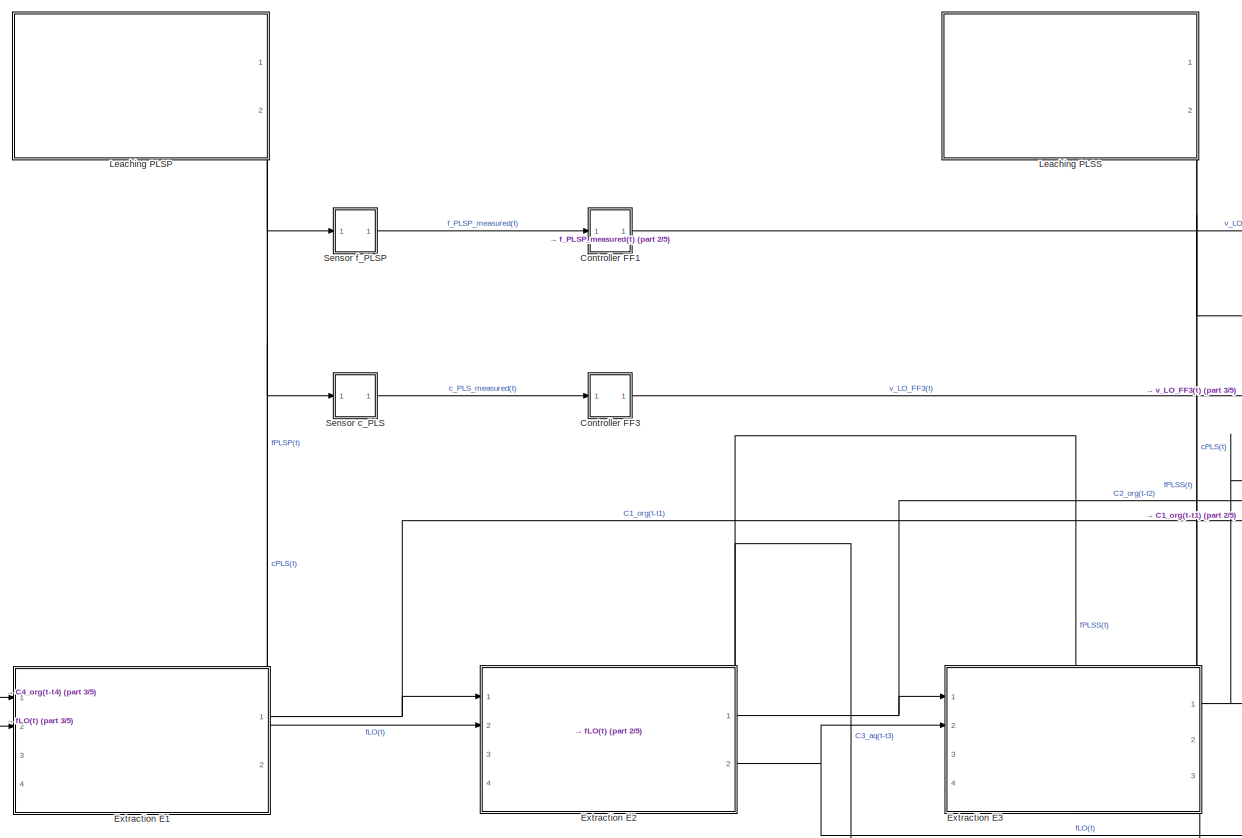
[diagram: root canvas - part 1/5, left side, full height]
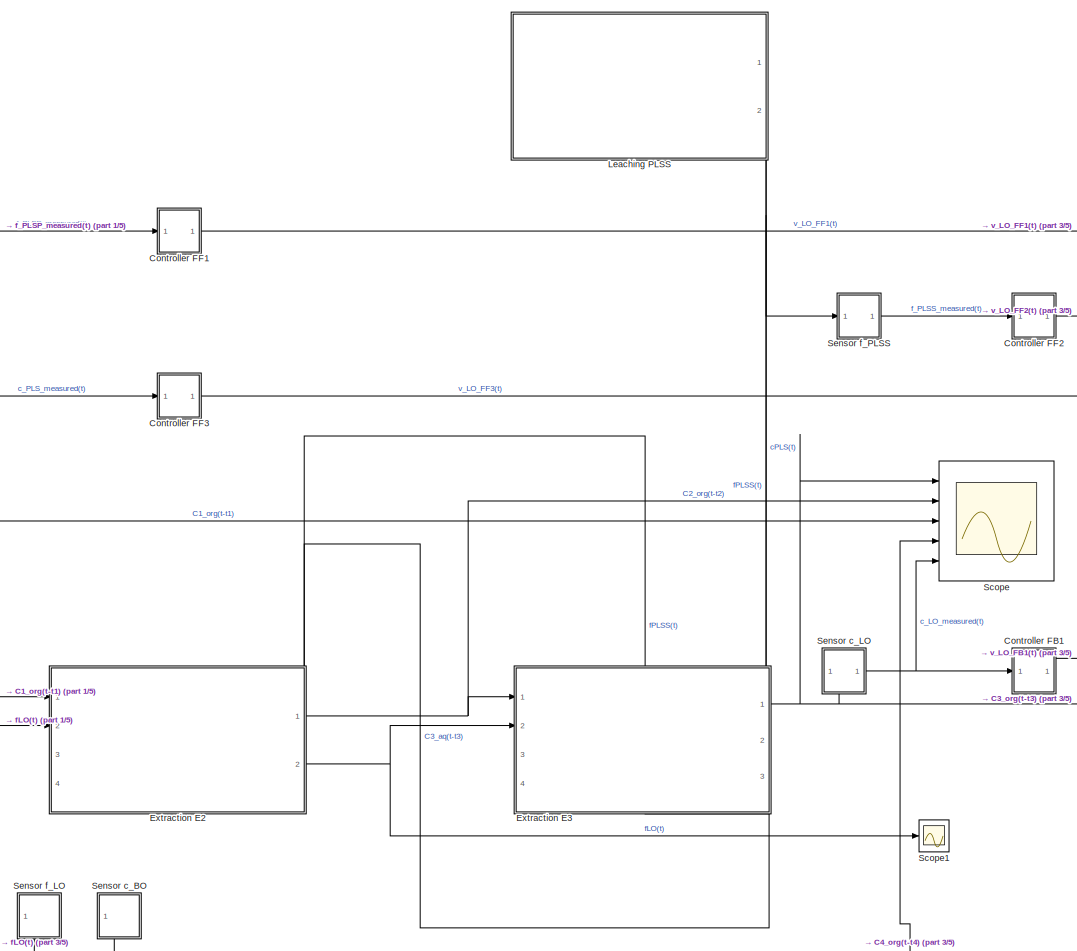
[diagram: root canvas - part 2/5, center side, full height]
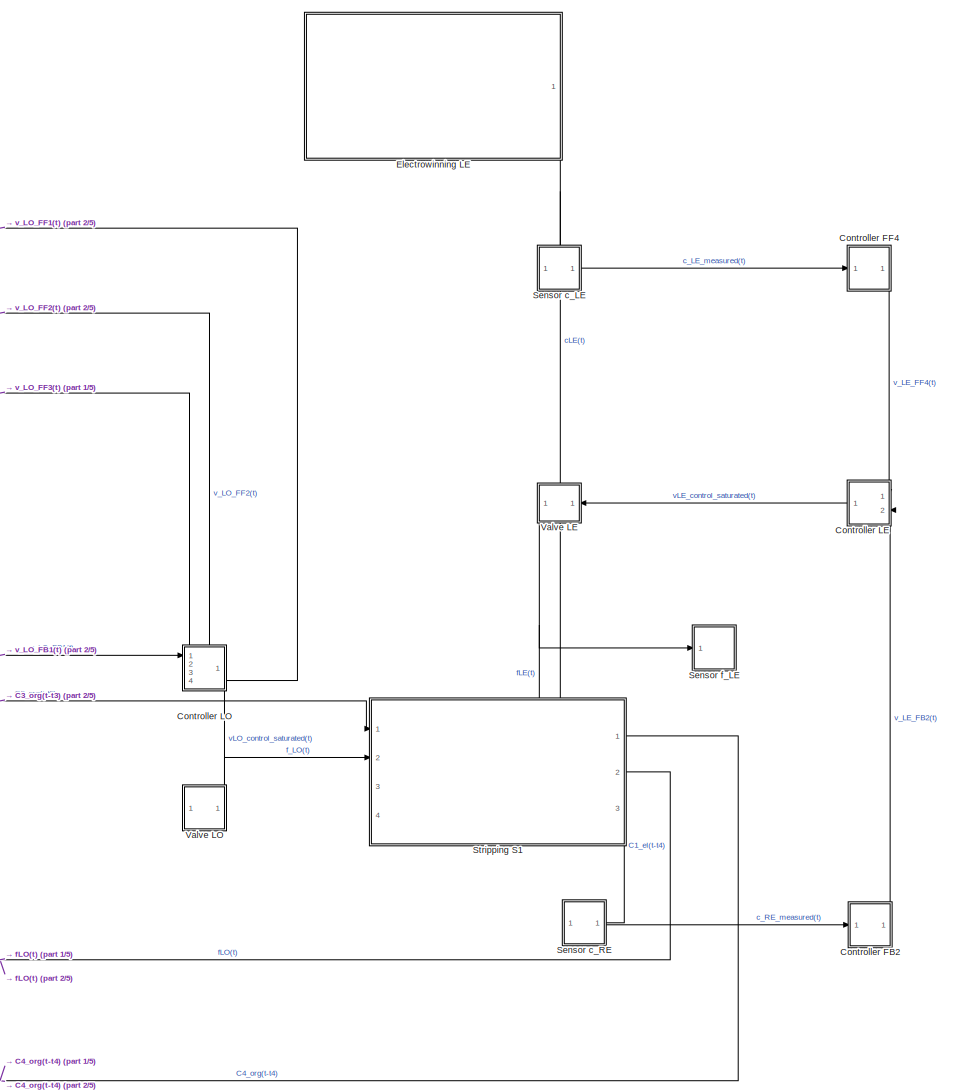
[diagram: root canvas - part 3/5, right side, full height]
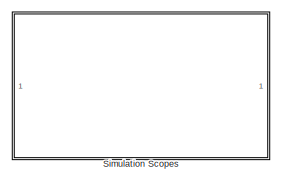
[diagram: root canvas - part 4/5, top right region]
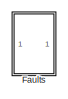
[diagram: root canvas - part 5/5, top left region]
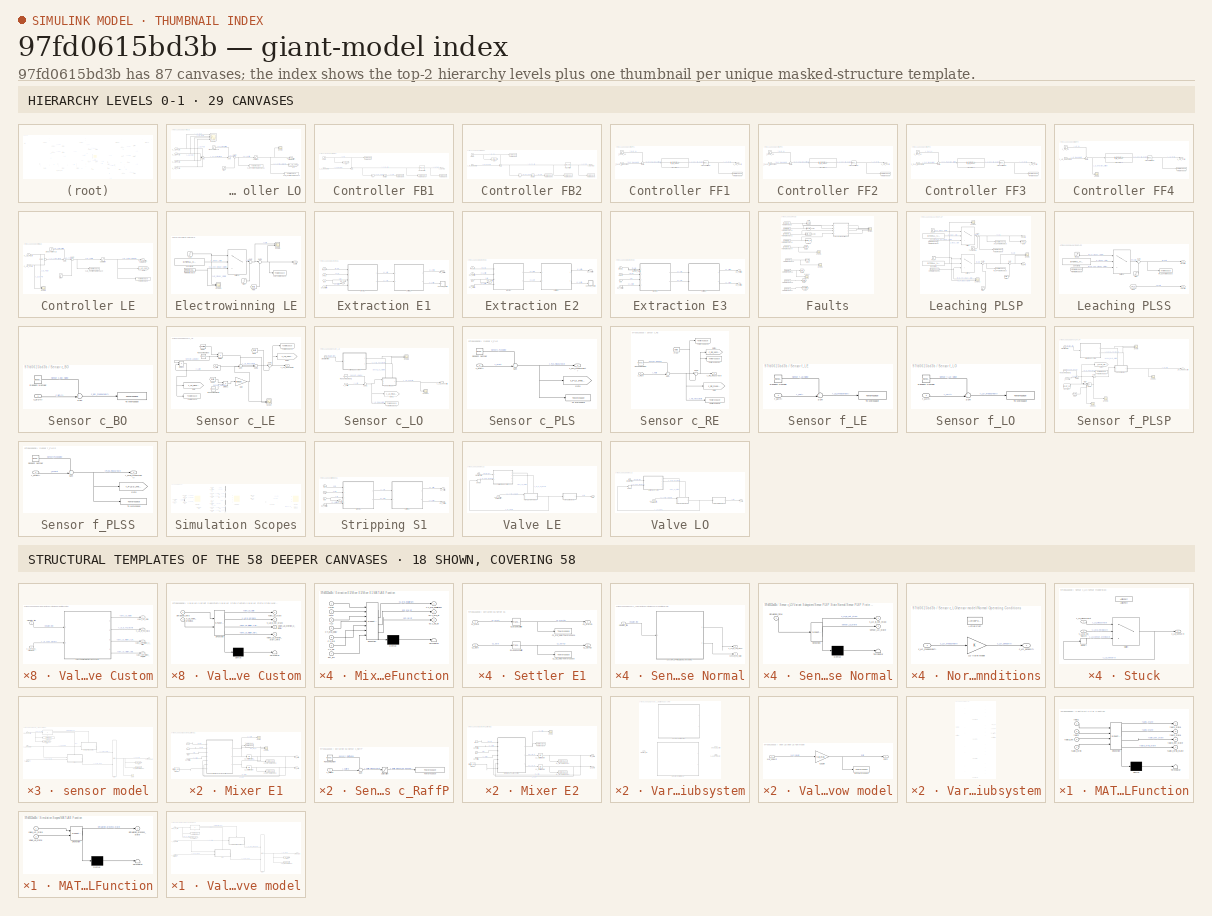
[diagram: thumbnail index - top-2 hierarchy levels (29 canvases) + 18 structural-template representatives of the remaining 58 canvases]
MODEL slx_97fd0615bd3b
KIND model
CONFIG AbsTol = auto
CONFIG EnableMultiTasking = off
CONFIG FixedStep = step_time
CONFIG MaxStep = auto
CONFIG MinStep = auto
CONFIG RelTol = 1e-3
CONFIG SampleTimeConstraint = Unconstrained
CONFIG SolverName = ode14x
CONFIG StartTime = 0.0
CONFIG StopTime = simulation_time
BLOCK [SubSystem]                            Controller LO
  PortSchema = {"entries":[{"content":{"sides":[{"content":{"connectorIds":["In1"]},"type":"ConnectorPlacement.EquallySpacedRectSide","uuid":"52743177-f082-4040-b095-38ff8f699919"},{"content":{"connectorIds":["In4"],"side":"RIGHT"},"type":"ConnectorPlacement.EquallySpacedRectSide","uuid":"070049ef-ea19-4899-84de-48e128addf57"},{"content":{"connectorIds":["In2","In3"],"side":"TOP"},"type":"ConnectorPlacement.Equa...<+400ch>
  Ports = [4, 1]
  RequestExecContextInheritance = off
BLOCK [Goto]                            Controller LO/Goto
  GotoTag = v_LO_control
  TagVisibility = global
BLOCK [Saturate]                            Controller LO/Saturation
  LowerLimit = 0
  UpperLimit = 1
BLOCK [Scope]                            Controller LO/Scope
  Floating = off
  NumInputPorts = 1
  Ports = [1]
  ScopeSpecificationString = Simulink.scopes.TimeScopeBlockCfg('CurrentConfiguration', extmgr.ConfigurationSet(extmgr.Configuration('Core','General UI',true),extmgr.Configuration('Core','Source UI',true),extmgr.Configuration('Sources','WiredSimulink',true,'DataLoggingVariableName','ScopeData5'),extmgr.Configuration('Visuals','Time Domain',true,'SerializedDisplays',{struct('MinYLimReal','0.29413','MaxYLimReal','1.07843','YLabe...<+1381ch>
BLOCK [Scope]                            Controller LO/Scope1
  Floating = off
  NumInputPorts = 4
  Ports = [4]
  ScopeSpecificationString = Simulink.scopes.TimeScopeBlockCfg('CurrentConfiguration', extmgr.ConfigurationSet(extmgr.Configuration('Core','General UI',true),extmgr.Configuration('Core','Source UI',true),extmgr.Configuration('Sources','WiredSimulink',true,'DataLoggingVariableName','ScopeData7'),extmgr.Configuration('Visuals','Time Domain',true,'SerializedDisplays',{struct('MinYLimReal','-0.23315','MaxYLimReal','0.30019','YLab...<+1463ch>
BLOCK [Step]                            Controller LO/Steady-state vLO
  After = vLO_ss
  Before = vLO_ss
  SampleTime = 0
  Time = 0
BLOCK [Step]                            Controller LO/Step
  After = 0
  SampleTime = 0
  Time = 7200
BLOCK [Sum]                            Controller LO/Sum
  Inputs = ++|
  Ports = [2, 1]
BLOCK [Sum]                            Controller LO/Sum1
  Inputs = ++++
  Ports = [4, 1]
BLOCK [Sum]                            Controller LO/Sum2
  Inputs = |++
  Ports = [2, 1]
BLOCK [ToWorkspace]                            Controller LO/vLO_control To Workspace
  FixptAsFi = on
  MaxDataPoints = inf
  Ports = [1]
  SampleTime = -1
  SaveFormat = Timeseries
  VariableName = vLO_control_saturated
BLOCK [ToWorkspace]                            Controller LO/vLO_control To Workspace1
  FixptAsFi = on
  MaxDataPoints = inf
  Ports = [1]
  SampleTime = -1
  SaveFormat = Timeseries
  VariableName = vLO_control
BLOCK [Outport]                            Controller LO/vLO_control_saturated(t)
BLOCK [Inport]                            Controller LO/v_LO_FB1(t)
BLOCK [Inport]                            Controller LO/v_LO_FF1(t)
  Port = 4
BLOCK [Inport]                            Controller LO/v_LO_FF2(t) 
  Port = 3
BLOCK [Inport]                            Controller LO/v_LO_FF3(t)
  Port = 2
BLOCK [SubSystem] Controller FB1
  Ports = [1, 1]
  RequestExecContextInheritance = off
BLOCK [Abs] Controller FB1/Abs
  SaturateOnIntegerOverflow = off
BLOCK [Reference] Controller FB1/FB1 PI Controller  REF=slpidlib/PID Controller
  Ports = [1, 1]
  SourceBlock = slpidlib/PID Controller
  SourceProductBaseCode = SL
  SourceType = PID 1dof
BLOCK [Goto] Controller FB1/Goto
  GotoTag = c_LO_SP
  TagVisibility = global
BLOCK [Integrator] Controller FB1/Integrator
  Ports = [1, 1]
BLOCK [Sum] Controller FB1/Sum
  Inputs = +-|
  Ports = [2, 1]
BLOCK [ToWorkspace] Controller FB1/To Workspace
  FixptAsFi = on
  MaxDataPoints = inf
  Ports = [1]
  SampleTime = -1
  SaveFormat = Timeseries
  VariableName = cLO_SP
BLOCK [ToWorkspace] Controller FB1/To Workspace1
  FixptAsFi = on
  MaxDataPoints = inf
  Ports = [1]
  SampleTime = -1
  SaveFormat = Timeseries
  VariableName = cLO_FB1_err
BLOCK [ToWorkspace] Controller FB1/To Workspace2
  FixptAsFi = on
  MaxDataPoints = inf
  Ports = [1]
  SampleTime = -1
  SaveFormat = Timeseries
  VariableName = vLO_FB1
BLOCK [ToWorkspace] Controller FB1/To Workspace3
  FixptAsFi = on
  MaxDataPoints = inf
  Ports = [1]
  SampleTime = -1
  SaveFormat = Timeseries
  VariableName = c_LO_IAE
BLOCK [Step] Controller FB1/cLO SP
  After = C3_org_ss
  Before = C3_org_ss
  SampleTime = 0
  Time = 0
BLOCK [Inport] Controller FB1/c_LO_measured(t)
BLOCK [Outport] Controller FB1/v_LO_FB1(t)
BLOCK [SubSystem] Controller FB2
  PortSchema = {"entries":[{"content":{"sides":[{"content":{"connectorIds":["In1"]},"type":"ConnectorPlacement.EquallySpacedRectSide","uuid":"549d450d-0da5-494d-9dce-c33c7378f634"},{"content":{"connectorIds":[],"side":"RIGHT"},"type":"ConnectorPlacement.EquallySpacedRectSide","uuid":"cc4f927b-a34a-449e-b64f-caed187c260d"},{"content":{"connectorIds":["Out1"],"side":"TOP"},"type":"ConnectorPlacement.EquallySpacedR...<+240ch>
  Ports = [1, 1]
  RequestExecContextInheritance = off
BLOCK [Abs] Controller FB2/Abs
  SaturateOnIntegerOverflow = off
BLOCK [Goto] Controller FB2/Goto
  GotoTag = c_RE_SP
  TagVisibility = global
BLOCK [Integrator] Controller FB2/Integrator
  Ports = [1, 1]
BLOCK [Reference] Controller FB2/PID Controller  REF=slpidlib/PID Controller
  Ports = [1, 1]
  SourceBlock = slpidlib/PID Controller
  SourceProductBaseCode = SL
  SourceType = PID 1dof
BLOCK [Sum] Controller FB2/Sum
  Inputs = +-|
  Ports = [2, 1]
BLOCK [ToWorkspace] Controller FB2/To Workspace
  FixptAsFi = on
  MaxDataPoints = inf
  Ports = [1]
  SampleTime = -1
  SaveFormat = Timeseries
  VariableName = cRE_SP
BLOCK [ToWorkspace] Controller FB2/To Workspace1
  FixptAsFi = on
  MaxDataPoints = inf
  Ports = [1]
  SampleTime = -1
  SaveFormat = Timeseries
  VariableName = cRE_FB2_err
BLOCK [ToWorkspace] Controller FB2/To Workspace2
  FixptAsFi = on
  MaxDataPoints = inf
  Ports = [1]
  SampleTime = -1
  SaveFormat = Timeseries
  VariableName = vLE_FB2
BLOCK [ToWorkspace] Controller FB2/To Workspace3
  FixptAsFi = on
  MaxDataPoints = inf
  Ports = [1]
  SampleTime = -1
  SaveFormat = Timeseries
  VariableName = c_RE_IAE
BLOCK [Step] Controller FB2/cRE SP
  After = C1_el_ss
  Before = C1_el_ss
  SampleTime = 0
  Time = 0
BLOCK [Inport] Controller FB2/c_RE_measured(t)
BLOCK [Outport] Controller FB2/v_LE_FB2(t)
BLOCK [SubSystem] Controller FF1
  Ports = [1, 1]
  RequestExecContextInheritance = off
BLOCK [Sum] Controller FF1/Sum
  Inputs = -+|
  Ports = [2, 1]
BLOCK [ToWorkspace] Controller FF1/To Workspace
  FixptAsFi = on
  MaxDataPoints = inf
  Ports = [1]
  SampleTime = -1
  SaveFormat = Timeseries
  VariableName = vLO_FF1
BLOCK [TransferFcn] Controller FF1/Transfer Fcn
  Denominator = [T_lg_FF1 1]
  Numerator = [K_ff_FF1*T_ld_FF1 K_ff_FF1*1]
BLOCK [TransportDelay] Controller FF1/Transport Delay
  DelayTime = theta_ff_FF1
  Ports = [1, 1]
BLOCK [Inport] Controller FF1/f_PLSP_measured(t)
BLOCK [Step] Controller FF1/f_PLSP_ss
  After = fPLSP_ss
  Before = fPLSP_ss
  SampleTime = 0
  Time = 0
BLOCK [Outport] Controller FF1/v_LO_FF1(t)
BLOCK [SubSystem] Controller FF2
  Ports = [1, 1]
  RequestExecContextInheritance = off
BLOCK [Sum] Controller FF2/Sum
  Inputs = -+|
  Ports = [2, 1]
BLOCK [ToWorkspace] Controller FF2/To Workspace
  FixptAsFi = on
  MaxDataPoints = inf
  Ports = [1]
  SampleTime = -1
  SaveFormat = Timeseries
  VariableName = vLO_FF2
BLOCK [TransferFcn] Controller FF2/Transfer Fcn
  Denominator = [T_lg_FF2 1]
  Numerator = [K_ff_FF2*T_ld_FF2 K_ff_FF2*1]
BLOCK [TransportDelay] Controller FF2/Transport Delay
  DelayTime = theta_ff_FF2
  Ports = [1, 1]
BLOCK [Inport] Controller FF2/f_PLSS_measured(t)
BLOCK [Step] Controller FF2/f_PLSS_ss
  After = fPLSS_ss
  Before = fPLSS_ss
  SampleTime = 0
  Time = 0
BLOCK [Outport] Controller FF2/v_LO_FF2(t)
BLOCK [SubSystem] Controller FF3
  Ports = [1, 1]
  RequestExecContextInheritance = off
BLOCK [Sum] Controller FF3/Sum
  Inputs = -+|
  Ports = [2, 1]
BLOCK [ToWorkspace] Controller FF3/To Workspace
  FixptAsFi = on
  MaxDataPoints = inf
  Ports = [1]
  SampleTime = -1
  SaveFormat = Timeseries
  VariableName = vLO_FF3
BLOCK [TransferFcn] Controller FF3/Transfer Fcn
  Denominator = [T_lg_FF3 1]
  Numerator = [K_ff_FF3*T_ld_FF3 K_ff_FF3*1]
BLOCK [TransportDelay] Controller FF3/Transport Delay
  DelayTime = theta_ff_FF3
  Ports = [1, 1]
BLOCK [Inport] Controller FF3/c_PLS_measured(t)
BLOCK [Step] Controller FF3/c_PLS_ss
  After = cPLS_ss
  Before = cPLS_ss
  SampleTime = 0
  Time = 0
BLOCK [Outport] Controller FF3/v_LO_FF3(t)
BLOCK [SubSystem] Controller FF4
  NameLocation = top
  PortSchema = {"entries":[{"content":{"sides":[{"content":{"connectorIds":["In1"]},"type":"ConnectorPlacement.EquallySpacedRectSide","uuid":"309a0a3d-e30b-4a77-b5d2-c4b50080f33a"},{"content":{"connectorIds":[],"side":"RIGHT"},"type":"ConnectorPlacement.EquallySpacedRectSide","uuid":"b344a8f7-ad8f-4273-abc7-1e7d20895348"},{"content":{"connectorIds":[],"side":"TOP"},"type":"ConnectorPlacement.EquallySpacedRectSid...<+384ch>
  Ports = [1, 1]
  RequestExecContextInheritance = off
BLOCK [Scope] Controller FF4/Scope
  Floating = off
  NumInputPorts = 1
  Ports = [1]
  ScopeSpecificationString = Simulink.scopes.TimeScopeBlockCfg('CurrentConfiguration', extmgr.ConfigurationSet(extmgr.Configuration('Core','General UI',true),extmgr.Configuration('Core','Source UI',true),extmgr.Configuration('Sources','WiredSimulink',true,'DataLoggingVariableName','ScopeData2'),extmgr.Configuration('Visuals','Time Domain',true,'SerializedDisplays',{struct('MinYLimReal','-0.10204','MaxYLimReal','1.05231','YLab...<+1381ch>
BLOCK [Sum] Controller FF4/Sum
  Inputs = -+|
  Ports = [2, 1]
BLOCK [ToWorkspace] Controller FF4/To Workspace
  FixptAsFi = on
  MaxDataPoints = inf
  Ports = [1]
  SampleTime = -1
  SaveFormat = Timeseries
  VariableName = vLE_FF4
BLOCK [TransferFcn] Controller FF4/Transfer Fcn
  Denominator = [T_lg_FF4 1]
  Numerator = [K_ff_FF4*T_ld_FF4 K_ff_FF4*1]
BLOCK [TransportDelay] Controller FF4/Transport Delay
  DelayTime = theta_ff_FF4
  Ports = [1, 1]
BLOCK [Inport] Controller FF4/c_LE_measured(t)
BLOCK [Step] Controller FF4/c_LE_ss
  After = cLE_ss
  Before = cLE_ss
  SampleTime = 0
  Time = 0
BLOCK [Outport] Controller FF4/v_LE_FF4(t)
BLOCK [SubSystem] Controller LE
  NameLocation = right
  PortSchema = {"entries":[{"content":{"sides":[{"content":{"connectorIds":[]},"type":"ConnectorPlacement.EquallySpacedRectSide","uuid":"549d450d-0da5-494d-9dce-c33c7378f634"},{"content":{"connectorIds":["Out1"],"side":"RIGHT"},"type":"ConnectorPlacement.EquallySpacedRectSide","uuid":"cc4f927b-a34a-449e-b64f-caed187c260d"},{"content":{"connectorIds":["In1"],"side":"TOP"},"type":"ConnectorPlacement.EquallySpacedR...<+389ch>
  Ports = [2, 1]
  RequestExecContextInheritance = off
BLOCK [Goto] Controller LE/Goto
  GotoTag = v_LE_control
  TagVisibility = global
BLOCK [Saturate] Controller LE/Saturation
  LowerLimit = 0
  UpperLimit = 1
BLOCK [Scope] Controller LE/Scope
  Floating = off
  NumInputPorts = 2
  Ports = [2]
  ScopeSpecificationString = Simulink.scopes.TimeScopeBlockCfg('CurrentConfiguration', extmgr.ConfigurationSet(extmgr.Configuration('Core','General UI',true),extmgr.Configuration('Core','Source UI',true),extmgr.Configuration('Sources','WiredSimulink',true,'DataLoggingVariableName','ScopeData1'),extmgr.Configuration('Visuals','Time Domain',true,'SerializedDisplays',{struct('MinYLimReal','-0.12376','MaxYLimReal','0.16775','YLab...<+1432ch>
BLOCK [Step] Controller LE/Steady-state vLE
  After = vLE_ss
  Before = vLE_ss
  SampleTime = 0
  Time = 0
BLOCK [Step] Controller LE/Step
  After = 0
  SampleTime = 0
  Time = 7200
BLOCK [Sum] Controller LE/Sum
  Inputs = ++|
  Ports = [2, 1]
BLOCK [Sum] Controller LE/Sum1
  Inputs = +|+
  Ports = [2, 1]
BLOCK [Sum] Controller LE/Sum2
  Inputs = |++
  Ports = [2, 1]
BLOCK [ToWorkspace] Controller LE/To Workspace
  FixptAsFi = on
  MaxDataPoints = inf
  Ports = [1]
  SampleTime = -1
  SaveFormat = Timeseries
  VariableName = vLE_control_saturated
BLOCK [ToWorkspace] Controller LE/vLE_control To Workspace
  FixptAsFi = on
  MaxDataPoints = inf
  Ports = [1]
  SampleTime = -1
  SaveFormat = Timeseries
  VariableName = vLE_control
BLOCK [Outport] Controller LE/vLE_control_saturated(t)
BLOCK [Inport] Controller LE/v_LE_FB2(t)
  Port = 2
BLOCK [Inport] Controller LE/v_LE_FF4(t)
BLOCK [SubSystem] Electrowinning LE
  NameLocation = top
  PortSchema = {"entries":[{"content":{"sides":[{"content":{"connectorIds":[]},"type":"ConnectorPlacement.EquallySpacedRectSide","uuid":"d08e9f48-9437-4d33-afd1-67836a5fb6bd"},{"content":{"connectorIds":[],"side":"RIGHT"},"type":"ConnectorPlacement.EquallySpacedRectSide","uuid":"a0c0d898-7ac9-474d-9070-540f9b51cc10"},{"content":{"connectorIds":[],"side":"TOP"},"type":"ConnectorPlacement.EquallySpacedRectSide","u...<+379ch>
  Ports = [0, 1]
  RequestExecContextInheritance = off
BLOCK [Constant] Electrowinning LE/Constant1
  Value = EXTERNAL_VARIABLES_STEADY_STATE
BLOCK [From] Electrowinning LE/From
  GotoTag = fault1
  TagVisibility = global
BLOCK [FromWorkspace] Electrowinning LE/From Workspace
  VariableName = c_LE_timeseries
BLOCK [Scope] Electrowinning LE/Scope
  Floating = off
  NumInputPorts = 2
  Ports = [2]
  ScopeSpecificationString = Simulink.scopes.TimeScopeBlockCfg('CurrentConfiguration', extmgr.ConfigurationSet(extmgr.Configuration('Core','General UI',true),extmgr.Configuration('Core','Source UI',true),extmgr.Configuration('Sources','WiredSimulink',true,'DataLoggingVariableName','ScopeData1'),extmgr.Configuration('Visuals','Time Domain',true,'SerializedDisplays',{struct('MinYLimReal','34.88661','MaxYLimReal','37.01458','YLa...<+1409ch>
BLOCK [Scope] Electrowinning LE/Scope1
  Floating = off
  NumInputPorts = 2
  Ports = [2]
  ScopeSpecificationString = Simulink.scopes.TimeScopeBlockCfg('CurrentConfiguration', extmgr.ConfigurationSet(extmgr.Configuration('Core','General UI',true),extmgr.Configuration('Core','Source UI',true),extmgr.Configuration('Sources','WiredSimulink',true,'DataLoggingVariableName','ScopeData5'),extmgr.Configuration('Visuals','Time Domain',true,'SerializedDisplays',{struct('MinYLimReal','34.95771','MaxYLimReal','35.3806','YLab...<+1406ch>
BLOCK [Step] Electrowinning LE/Step
  After = 0
  SampleTime = 0
  Time = 7200
BLOCK [Sum] Electrowinning LE/Sum
  Inputs = |++
  Ports = [2, 1]
BLOCK [Sum] Electrowinning LE/Sum1
  Inputs = |++
  Ports = [2, 1]
BLOCK [Switch] Electrowinning LE/Switch1
  Criteria = u2 ~= 0
  InputSameDT = off
  SaturateOnIntegerOverflow = off
BLOCK [Step] Electrowinning LE/cLE
  After = cLE_ss
  Before = cLE_ss
  SampleTime = 0
  Time = 0
BLOCK [ToWorkspace] Electrowinning LE/cLE To Workspace
  FixptAsFi = on
  MaxDataPoints = inf
  Ports = [1]
  SampleTime = -1
  SaveFormat = Timeseries
  VariableName = cLE
BLOCK [Outport] Electrowinning LE/cLE(t)
BLOCK [SubSystem] Extraction E1
  PortSchema = {"entries":[{"content":{"sides":[{"content":{"connectorIds":["In1","In2"]},"type":"ConnectorPlacement.EquallySpacedRectSide","uuid":"f32559ae-5e45-417b-8c50-adbeea9a29f4"},{"content":{"connectorIds":["Out1","Out2"],"side":"RIGHT"},"type":"ConnectorPlacement.EquallySpacedRectSide","uuid":"22bc39ae-803b-4947-b021-a54bd767cf3b"},{"content":{"connectorIds":["In3","In4"],"side":"TOP"},"type":"Connector...<+264ch>
  Ports = [4, 2]
  RequestExecContextInheritance = off
BLOCK [Outport] Extraction E1/C1_org(t-t1)
BLOCK [Inport] Extraction E1/C4_org(t-t4)
BLOCK [SubSystem] Extraction E1/Mixer E1
  Ports = [4, 2]
  RequestExecContextInheritance = off
BLOCK [ToWorkspace] Extraction E1/Mixer E1/C1_aq To Workspace
  FixptAsFi = on
  MaxDataPoints = inf
  Ports = [1]
  SampleTime = -1
  SaveFormat = Timeseries
  VariableName = C1_aq
BLOCK [Outport] Extraction E1/Mixer E1/C1_aq(t)
  Port = 2
BLOCK [Integrator] Extraction E1/Mixer E1/C1_aq(t) Integrater
  InitialCondition = C1_aq_ss
  Ports = [1, 1]
BLOCK [ToWorkspace] Extraction E1/Mixer E1/C1_org To Workspace
  FixptAsFi = on
  MaxDataPoints = inf
  Ports = [1]
  SampleTime = -1
  SaveFormat = Timeseries
  VariableName = C1_org
BLOCK [Outport] Extraction E1/Mixer E1/C1_org(t)
BLOCK [Integrator] Extraction E1/Mixer E1/C1_org(t) Integrater
  InitialCondition = C1_org_ss
  Ports = [1, 1]
BLOCK [Inport] Extraction E1/Mixer E1/C4_org(t-t4)
  Port = 4
BLOCK [From] Extraction E1/Mixer E1/From
  GotoTag = fault3_ext
  TagVisibility = global
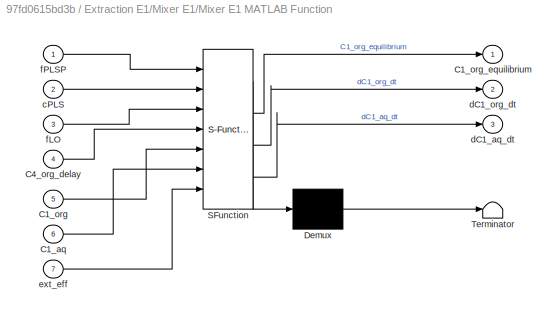
BLOCK [SubSystem] Extraction E1/Mixer E1/Mixer E1 MATLAB Function
  ErrorFcn = Stateflow.Translate.translate
  PermitHierarchicalResolution = ExplicitOnly
  Ports = [7, 3]
  RequestExecContextInheritance = off
  SFBlockType = MATLAB Function
  TreatAsAtomicUnit = on
BLOCK [Demux] Extraction E1/Mixer E1/Mixer E1 MATLAB Function/ Demux 
  Outputs = 1
  Ports = [1, 1]
BLOCK [S-Function] Extraction E1/Mixer E1/Mixer E1 MATLAB Function/ SFunction 
  EnableBusSupport = on
  FunctionName = sf_sfun
  Parameters = C_org_max,K_eq_ext,K_mass_1,V1
  PortCounts = [7 4]
  Ports = [7, 4]
  SFcnIsStateOwnerBlock = off
  SFunctionDeploymentMode = off
  Tag = Stateflow S-Function 5
BLOCK [Terminator] Extraction E1/Mixer E1/Mixer E1 MATLAB Function/ Terminator 
BLOCK [Inport] Extraction E1/Mixer E1/Mixer E1 MATLAB Function/C1_aq
  Port = 6
BLOCK [Inport] Extraction E1/Mixer E1/Mixer E1 MATLAB Function/C1_org
  Port = 5
BLOCK [Outport] Extraction E1/Mixer E1/Mixer E1 MATLAB Function/C1_org_equilibrium
BLOCK [Inport] Extraction E1/Mixer E1/Mixer E1 MATLAB Function/C4_org_delay
  Port = 4
BLOCK [Inport] Extraction E1/Mixer E1/Mixer E1 MATLAB Function/cPLS
  Port = 2
BLOCK [Outport] Extraction E1/Mixer E1/Mixer E1 MATLAB Function/dC1_aq_dt
  Port = 3
BLOCK [Outport] Extraction E1/Mixer E1/Mixer E1 MATLAB Function/dC1_org_dt
  Port = 2
BLOCK [Inport] Extraction E1/Mixer E1/Mixer E1 MATLAB Function/ext_eff
  Port = 7
BLOCK [Inport] Extraction E1/Mixer E1/Mixer E1 MATLAB Function/fLO
  Port = 3
BLOCK [Inport] Extraction E1/Mixer E1/Mixer E1 MATLAB Function/fPLSP
BLOCK [Scope] Extraction E1/Mixer E1/Scope
  Floating = off
  NumInputPorts = 1
  Ports = [1]
  ScopeSpecificationString = Simulink.scopes.TimeScopeBlockCfg('CurrentConfiguration', extmgr.ConfigurationSet(extmgr.Configuration('Core','General UI',true),extmgr.Configuration('Core','Source UI',true),extmgr.Configuration('Sources','WiredSimulink',true,'DataLoggingVariableName','ScopeData4'),extmgr.Configuration('Visuals','Time Domain',true,'SerializedDisplays',{struct('MinYLimReal','6.07777','MaxYLimReal','18.90279','YLab...<+1371ch>
BLOCK [Scope] Extraction E1/Mixer E1/Scope1
  Floating = off
  NumInputPorts = 2
  Ports = [2]
  ScopeSpecificationString = Simulink.scopes.TimeScopeBlockCfg('CurrentConfiguration', extmgr.ConfigurationSet(extmgr.Configuration('Core','General UI',true),extmgr.Configuration('Core','Source UI',true),extmgr.Configuration('Sources','WiredSimulink',true,'DataLoggingVariableName','ScopeData10'),extmgr.Configuration('Visuals','Time Domain',true,'SerializedDisplays',{struct('MinYLimReal','-0.00183','MaxYLimReal','0.01359','YLa...<+1407ch>
BLOCK [ToWorkspace] Extraction E1/Mixer E1/To Workspace
  FixptAsFi = on
  MaxDataPoints = inf
  Ports = [1]
  SampleTime = -1
  SaveFormat = Timeseries
  VariableName = C1_org_eq
BLOCK [Inport] Extraction E1/Mixer E1/cPLS
  Port = 2
BLOCK [Inport] Extraction E1/Mixer E1/fLO
  Port = 3
BLOCK [Inport] Extraction E1/Mixer E1/fPLSP
BLOCK [SubSystem] Extraction E1/Sensor c_RaffP
  Ports = [1]
  RequestExecContextInheritance = off
BLOCK [RandomNumber] Extraction E1/Sensor c_RaffP/Random Number
  SampleTime = step_time
  Seed = seed_c_RaffP
  Variance = sigma_c_RaffP^2
BLOCK [Saturate] Extraction E1/Sensor c_RaffP/Saturation
  LowerLimit = 0
  UpperLimit = inf
BLOCK [Sum] Extraction E1/Sensor c_RaffP/Sum
  Inputs = ++|
  Ports = [2, 1]
BLOCK [ToWorkspace] Extraction E1/Sensor c_RaffP/To Workspace
  FixptAsFi = on
  MaxDataPoints = inf
  Ports = [1]
  SampleTime = -1
  SaveFormat = Timeseries
  VariableName = c_RaffP_measured
BLOCK [Inport] Extraction E1/Sensor c_RaffP/c_RaffP(t)
BLOCK [SubSystem] Extraction E1/Settler E1
  Ports = [2, 2]
  RequestExecContextInheritance = off
BLOCK [Inport] Extraction E1/Settler E1/C1_aq(t)
  Port = 2
BLOCK [Outport] Extraction E1/Settler E1/C1_aq(t-t1)
  Port = 2
BLOCK [ToWorkspace] Extraction E1/Settler E1/C1_aq_delay To Workspace
  FixptAsFi = on
  MaxDataPoints = inf
  Ports = [1]
  SampleTime = -1
  SaveFormat = Timeseries
  VariableName = C1_aq_delay
BLOCK [Inport] Extraction E1/Settler E1/C1_org(t)
BLOCK [Outport] Extraction E1/Settler E1/C1_org(t-t1)
BLOCK [ToWorkspace] Extraction E1/Settler E1/C1_org_delay To Workspace
  FixptAsFi = on
  MaxDataPoints = inf
  Ports = [1]
  SampleTime = -1
  SaveFormat = Timeseries
  VariableName = C1_org_delay
BLOCK [TransportDelay] Extraction E1/Settler E1/E1 Aqueous Settler
  DelayTime = t1
  InitialOutput = C1_aq_ss
  Ports = [1, 1]
BLOCK [TransportDelay] Extraction E1/Settler E1/E1 Organic Settler
  DelayTime = t1
  InitialOutput = C1_org_ss
  Ports = [1, 1]
BLOCK [Inport] Extraction E1/cPLS
  Port = 4
BLOCK [Inport] Extraction E1/fLO
  Port = 2
BLOCK [Outport] Extraction E1/fLO_out(t)
  Port = 2
BLOCK [Inport] Extraction E1/fPLSP
  Port = 3
BLOCK [SubSystem] Extraction E2
  PortSchema = {"entries":[{"content":{"sides":[{"content":{"connectorIds":["In1","In2"]},"type":"ConnectorPlacement.EquallySpacedRectSide","uuid":"f32559ae-5e45-417b-8c50-adbeea9a29f4"},{"content":{"connectorIds":["Out1","Out2"],"side":"RIGHT"},"type":"ConnectorPlacement.EquallySpacedRectSide","uuid":"22bc39ae-803b-4947-b021-a54bd767cf3b"},{"content":{"connectorIds":["In3","In4"],"side":"TOP"},"type":"Connector...<+264ch>
  Ports = [4, 2]
  RequestExecContextInheritance = off
BLOCK [Inport] Extraction E2/C1_org(t-t1)
BLOCK [Outport] Extraction E2/C2_org(t-t2)
BLOCK [Inport] Extraction E2/C3_aq(t-t3)
  Port = 4
BLOCK [SubSystem] Extraction E2/Mixer E2
  Ports = [4, 2]
  RequestExecContextInheritance = off
BLOCK [Inport] Extraction E2/Mixer E2/C1_org(t-t1)
  Port = 4
BLOCK [ToWorkspace] Extraction E2/Mixer E2/C2_aq To Workspace
  FixptAsFi = on
  MaxDataPoints = inf
  Ports = [1]
  SampleTime = -1
  SaveFormat = Timeseries
  VariableName = C2_aq
BLOCK [Outport] Extraction E2/Mixer E2/C2_aq(t)
  Port = 2
BLOCK [Integrator] Extraction E2/Mixer E2/C2_aq(t) Integrater
  InitialCondition = C2_aq_ss
  Ports = [1, 1]
BLOCK [ToWorkspace] Extraction E2/Mixer E2/C2_org To Workspace
  FixptAsFi = on
  MaxDataPoints = inf
  Ports = [1]
  SampleTime = -1
  SaveFormat = Timeseries
  VariableName = C2_org
BLOCK [Outport] Extraction E2/Mixer E2/C2_org(t)
BLOCK [Integrator] Extraction E2/Mixer E2/C2_org(t) Integrater
  InitialCondition = C2_org_ss
  Ports = [1, 1]
BLOCK [Inport] Extraction E2/Mixer E2/C3_aq(t-t3)
  Port = 2
BLOCK [From] Extraction E2/Mixer E2/From
  GotoTag = fault3_ext
  TagVisibility = global
BLOCK [SubSystem] Extraction E2/Mixer E2/Mixer E2 MATLAB Function
  ErrorFcn = Stateflow.Translate.translate
  PermitHierarchicalResolution = ExplicitOnly
  Ports = [7, 3]
  RequestExecContextInheritance = off
  SFBlockType = MATLAB Function
  TreatAsAtomicUnit = on
BLOCK [Demux] Extraction E2/Mixer E2/Mixer E2 MATLAB Function/ Demux 
  Outputs = 1
  Ports = [1, 1]
BLOCK [S-Function] Extraction E2/Mixer E2/Mixer E2 MATLAB Function/ SFunction 
  EnableBusSupport = on
  FunctionName = sf_sfun
  Parameters = C_org_max,K_eq_ext,K_mass_2,V2
  PortCounts = [7 4]
  Ports = [7, 4]
  SFcnIsStateOwnerBlock = off
  SFunctionDeploymentMode = off
  Tag = Stateflow S-Function 1
BLOCK [Terminator] Extraction E2/Mixer E2/Mixer E2 MATLAB Function/ Terminator 
BLOCK [Inport] Extraction E2/Mixer E2/Mixer E2 MATLAB Function/C1_org_delay
  Port = 4
BLOCK [Inport] Extraction E2/Mixer E2/Mixer E2 MATLAB Function/C2_aq
  Port = 6
BLOCK [Inport] Extraction E2/Mixer E2/Mixer E2 MATLAB Function/C2_org
  Port = 5
BLOCK [Outport] Extraction E2/Mixer E2/Mixer E2 MATLAB Function/C2_org_equilibrium
BLOCK [Inport] Extraction E2/Mixer E2/Mixer E2 MATLAB Function/C3_aq_delay
  Port = 2
BLOCK [Outport] Extraction E2/Mixer E2/Mixer E2 MATLAB Function/dC2_aq_dt
  Port = 3
BLOCK [Outport] Extraction E2/Mixer E2/Mixer E2 MATLAB Function/dC2_org_dt
  Port = 2
BLOCK [Inport] Extraction E2/Mixer E2/Mixer E2 MATLAB Function/ext_eff
  Port = 7
BLOCK [Inport] Extraction E2/Mixer E2/Mixer E2 MATLAB Function/fLO
  Port = 3
BLOCK [Inport] Extraction E2/Mixer E2/Mixer E2 MATLAB Function/fPLSS
BLOCK [Scope] Extraction E2/Mixer E2/Scope
  Floating = off
  NumInputPorts = 1
  Ports = [1]
  ScopeSpecificationString = Simulink.scopes.TimeScopeBlockCfg('CurrentConfiguration', extmgr.ConfigurationSet(extmgr.Configuration('Core','General UI',true),extmgr.Configuration('Core','Source UI',true),extmgr.Configuration('Sources','WiredSimulink',true,'DataLoggingVariableName','ScopeData3'),extmgr.Configuration('Visuals','Time Domain',true),extmgr.Configuration('Tools','Plot Navigation',true),extmgr.Configuration('Tools',...<+40ch>
BLOCK [ToWorkspace] Extraction E2/Mixer E2/To Workspace
  FixptAsFi = on
  MaxDataPoints = inf
  Ports = [1]
  SampleTime = -1
  SaveFormat = Timeseries
  VariableName = C2_org_eq
BLOCK [Inport] Extraction E2/Mixer E2/fLO
  Port = 3
BLOCK [Inport] Extraction E2/Mixer E2/fPLSS
BLOCK [SubSystem] Extraction E2/Sensor c_RaffS
  Ports = [1]
  RequestExecContextInheritance = off
BLOCK [RandomNumber] Extraction E2/Sensor c_RaffS/Random Number
  SampleTime = step_time
  Seed = seed_c_RaffS
  Variance = sigma_c_RaffS^2
BLOCK [Saturate] Extraction E2/Sensor c_RaffS/Saturation
  LowerLimit = 0
  UpperLimit = inf
BLOCK [Sum] Extraction E2/Sensor c_RaffS/Sum
  Inputs = ++|
  Ports = [2, 1]
BLOCK [ToWorkspace] Extraction E2/Sensor c_RaffS/To Workspace
  FixptAsFi = on
  MaxDataPoints = inf
  Ports = [1]
  SampleTime = -1
  SaveFormat = Timeseries
  VariableName = c_RaffS_measured
BLOCK [Inport] Extraction E2/Sensor c_RaffS/c_RaffS(t)
BLOCK [SubSystem] Extraction E2/Settler E2
  Ports = [2, 2]
  RequestExecContextInheritance = off
BLOCK [Inport] Extraction E2/Settler E2/C2_aq(t)
  Port = 2
BLOCK [Outport] Extraction E2/Settler E2/C2_aq(t-t2)
  Port = 2
BLOCK [ToWorkspace] Extraction E2/Settler E2/C2_aq_delay To Workspace
  FixptAsFi = on
  MaxDataPoints = inf
  Ports = [1]
  SampleTime = -1
  SaveFormat = Timeseries
  VariableName = C2_aq_delay
BLOCK [Inport] Extraction E2/Settler E2/C2_org(t)
BLOCK [Outport] Extraction E2/Settler E2/C2_org(t-t2)
BLOCK [ToWorkspace] Extraction E2/Settler E2/C2_org_delay To Workspace
  FixptAsFi = on
  MaxDataPoints = inf
  Ports = [1]
  SampleTime = -1
  SaveFormat = Timeseries
  VariableName = C2_org_delay
BLOCK [TransportDelay] Extraction E2/Settler E2/E2 Aqueous Settler
  DelayTime = t2
  InitialOutput = C2_aq_ss
  Ports = [1, 1]
BLOCK [TransportDelay] Extraction E2/Settler E2/E2 Organic Settler
  DelayTime = t2
  InitialOutput = C2_org_ss
  Ports = [1, 1]
BLOCK [Inport] Extraction E2/fLO
  Port = 2
BLOCK [Outport] Extraction E2/fLO_out(t)
  Port = 2
BLOCK [Inport] Extraction E2/fPLSS
  Port = 3
BLOCK [SubSystem] Extraction E3
  PortSchema = {"entries":[{"content":{"sides":[{"content":{"connectorIds":["In1","In2"]},"type":"ConnectorPlacement.EquallySpacedRectSide","uuid":"f32559ae-5e45-417b-8c50-adbeea9a29f4"},{"content":{"connectorIds":["Out1"],"side":"RIGHT"},"type":"ConnectorPlacement.EquallySpacedRectSide","uuid":"22bc39ae-803b-4947-b021-a54bd767cf3b"},{"content":{"connectorIds":["In3","In4"],"side":"TOP"},"type":"ConnectorPlaceme...<+414ch>
  Ports = [4, 3]
  RequestExecContextInheritance = off
BLOCK [Inport] Extraction E3/C2_org(t-t2)
BLOCK [Outport] Extraction E3/C3_aq(t-t3)
  Port = 3
BLOCK [Outport] Extraction E3/C3_org(t-t3)
BLOCK [SubSystem] Extraction E3/Mixer E3
  Ports = [4, 2]
  RequestExecContextInheritance = off
BLOCK [Inport] Extraction E3/Mixer E3/C2_org(t-t2)
  Port = 4
BLOCK [ToWorkspace] Extraction E3/Mixer E3/C3_aq To Workspace
  FixptAsFi = on
  MaxDataPoints = inf
  Ports = [1]
  SampleTime = -1
  SaveFormat = Timeseries
  VariableName = C3_aq
BLOCK [Outport] Extraction E3/Mixer E3/C3_aq(t)
  Port = 2
BLOCK [Integrator] Extraction E3/Mixer E3/C3_aq(t) Integrater
  InitialCondition = C3_aq_ss
  Ports = [1, 1]
BLOCK [ToWorkspace] Extraction E3/Mixer E3/C3_org To Workspace
  FixptAsFi = on
  MaxDataPoints = inf
  Ports = [1]
  SampleTime = -1
  SaveFormat = Timeseries
  VariableName = C3_org
BLOCK [Outport] Extraction E3/Mixer E3/C3_org(t)
BLOCK [Integrator] Extraction E3/Mixer E3/C3_org(t) Integrater
  InitialCondition = C3_org_ss
  Ports = [1, 1]
BLOCK [From] Extraction E3/Mixer E3/From
  GotoTag = fault3_ext
  TagVisibility = global
BLOCK [SubSystem] Extraction E3/Mixer E3/Mixer E3 MATLAB Function
  ErrorFcn = Stateflow.Translate.translate
  PermitHierarchicalResolution = ExplicitOnly
  Ports = [7, 3]
  RequestExecContextInheritance = off
  SFBlockType = MATLAB Function
  TreatAsAtomicUnit = on
BLOCK [Demux] Extraction E3/Mixer E3/Mixer E3 MATLAB Function/ Demux 
  Outputs = 1
  Ports = [1, 1]
BLOCK [S-Function] Extraction E3/Mixer E3/Mixer E3 MATLAB Function/ SFunction 
  EnableBusSupport = on
  FunctionName = sf_sfun
  Parameters = C_org_max,K_eq_ext,K_mass_3,V3
  PortCounts = [7 4]
  Ports = [7, 4]
  SFcnIsStateOwnerBlock = off
  SFunctionDeploymentMode = off
  Tag = Stateflow S-Function 3
BLOCK [Terminator] Extraction E3/Mixer E3/Mixer E3 MATLAB Function/ Terminator 
BLOCK [Inport] Extraction E3/Mixer E3/Mixer E3 MATLAB Function/C2_org_delay
  Port = 4
BLOCK [Inport] Extraction E3/Mixer E3/Mixer E3 MATLAB Function/C3_aq
  Port = 6
BLOCK [Inport] Extraction E3/Mixer E3/Mixer E3 MATLAB Function/C3_org
  Port = 5
BLOCK [Outport] Extraction E3/Mixer E3/Mixer E3 MATLAB Function/C3_org_equilibrium
BLOCK [Inport] Extraction E3/Mixer E3/Mixer E3 MATLAB Function/cPLS
  Port = 2
BLOCK [Outport] Extraction E3/Mixer E3/Mixer E3 MATLAB Function/dC3_aq_dt
  Port = 3
BLOCK [Outport] Extraction E3/Mixer E3/Mixer E3 MATLAB Function/dC3_org_dt
  Port = 2
BLOCK [Inport] Extraction E3/Mixer E3/Mixer E3 MATLAB Function/ext_eff
  Port = 7
BLOCK [Inport] Extraction E3/Mixer E3/Mixer E3 MATLAB Function/fLO
  Port = 3
BLOCK [Inport] Extraction E3/Mixer E3/Mixer E3 MATLAB Function/fPLSS
BLOCK [Scope] Extraction E3/Mixer E3/Scope
  Floating = off
  NumInputPorts = 1
  Ports = [1]
  ScopeSpecificationString = Simulink.scopes.TimeScopeBlockCfg('CurrentConfiguration', extmgr.ConfigurationSet(extmgr.Configuration('Core','General UI',true),extmgr.Configuration('Core','Source UI',true),extmgr.Configuration('Sources','WiredSimulink',true,'DataLoggingVariableName','ScopeData1'),extmgr.Configuration('Visuals','Time Domain',true,'SerializedDisplays',{struct('MinYLimReal','0.65736','MaxYLimReal','1.03807','YLabe...<+1424ch>
BLOCK [Scope] Extraction E3/Mixer E3/Scope1
  Floating = off
  NumInputPorts = 1
  Ports = [1]
  ScopeSpecificationString = Simulink.scopes.TimeScopeBlockCfg('CurrentConfiguration', extmgr.ConfigurationSet(extmgr.Configuration('Core','General UI',true),extmgr.Configuration('Core','Source UI',true),extmgr.Configuration('Sources','WiredSimulink',true,'DataLoggingVariableName','ScopeData1'),extmgr.Configuration('Visuals','Time Domain',true,'SerializedDisplays',{struct('MinYLimReal','12.64226','MaxYLimReal','26.11017','YLa...<+1403ch>
BLOCK [ToWorkspace] Extraction E3/Mixer E3/To Workspace
  FixptAsFi = on
  MaxDataPoints = inf
  Ports = [1]
  SampleTime = -1
  SaveFormat = Timeseries
  VariableName = C3_org_eq
BLOCK [Inport] Extraction E3/Mixer E3/cPLS
  Port = 2
BLOCK [Inport] Extraction E3/Mixer E3/fLO
  Port = 3
BLOCK [Inport] Extraction E3/Mixer E3/fPLSS
BLOCK [SubSystem] Extraction E3/Settler E3
  Ports = [2, 2]
  RequestExecContextInheritance = off
BLOCK [Inport] Extraction E3/Settler E3/C3_aq(t)
  Port = 2
BLOCK [Outport] Extraction E3/Settler E3/C3_aq(t-t3)
  Port = 2
BLOCK [ToWorkspace] Extraction E3/Settler E3/C3_aq_delay To Workspace
  FixptAsFi = on
  MaxDataPoints = inf
  Ports = [1]
  SampleTime = -1
  SaveFormat = Timeseries
  VariableName = C3_aq_delay
BLOCK [Inport] Extraction E3/Settler E3/C3_org(t)
BLOCK [Outport] Extraction E3/Settler E3/C3_org(t-t3)
BLOCK [ToWorkspace] Extraction E3/Settler E3/C3_org_delay To Workspace
  FixptAsFi = on
  MaxDataPoints = inf
  Ports = [1]
  SampleTime = -1
  SaveFormat = Timeseries
  VariableName = C3_org_delay
BLOCK [TransportDelay] Extraction E3/Settler E3/E3 Aqueous Settler
  DelayTime = t3
  InitialOutput = C3_aq_ss
  Ports = [1, 1]
BLOCK [TransportDelay] Extraction E3/Settler E3/E3 Organic Settler
  DelayTime = t3
  InitialOutput = C3_org_ss
  Ports = [1, 1]
BLOCK [Inport] Extraction E3/cPLS
  Port = 4
BLOCK [Inport] Extraction E3/fLO
  Port = 2
BLOCK [Inport] Extraction E3/fPLSS
  Port = 3
BLOCK [Outport] Extraction E3/fPLSS_out(t)
  Port = 2
BLOCK [SubSystem] Faults
  Ports = []
  RequestExecContextInheritance = off
BLOCK [FromWorkspace] Faults/From Workspace
  VariableName = f1.timeseries
BLOCK [FromWorkspace] Faults/From Workspace1
  VariableName = f2.timeseries
BLOCK [FromWorkspace] Faults/From Workspace2
  VariableName = f3.ext_timeseries
BLOCK [FromWorkspace] Faults/From Workspace3
  VariableName = f3.strip_timeseries
BLOCK [FromWorkspace] Faults/From Workspace4
  VariableName = f5.timeseries
BLOCK [FromWorkspace] Faults/From Workspace5
  VariableName = f6.timeseries
BLOCK [FromWorkspace] Faults/From Workspace6
  VariableName = f7.timeseries
BLOCK [FromWorkspace] Faults/From Workspace7
  VariableName = f8.neutral
BLOCK [FromWorkspace] Faults/From Workspace8
  VariableName = f8.timeseries
BLOCK [Goto] Faults/Goto
  GotoTag = fault1
  TagVisibility = global
BLOCK [Goto] Faults/Goto1
  GotoTag = fault2
  TagVisibility = global
BLOCK [Goto] Faults/Goto2
  GotoTag = fault3_ext
  TagVisibility = global
BLOCK [Goto] Faults/Goto3
  GotoTag = fault3_strip
  TagVisibility = global
BLOCK [Goto] Faults/Goto4
  GotoTag = fault5
  TagVisibility = global
BLOCK [Goto] Faults/Goto5
  GotoTag = fault6
  TagVisibility = global
BLOCK [Goto] Faults/Goto6
  GotoTag = fault7
  TagVisibility = global
BLOCK [Goto] Faults/Goto7
  GotoTag = fault8
  TagVisibility = global
BLOCK [Goto] Faults/Goto8
  GotoTag = neutral8
  TagVisibility = global
BLOCK [SubSystem] Faults/MATLAB Function
  ErrorFcn = Stateflow.Translate.translate
  PermitHierarchicalResolution = ExplicitOnly
  Ports = [4, 4]
  RequestExecContextInheritance = off
  SFBlockType = MATLAB Function
  TreatAsAtomicUnit = on
BLOCK [Demux] Faults/MATLAB Function/ Demux 
  Outputs = 1
  Ports = [1, 1]
BLOCK [S-Function] Faults/MATLAB Function/ SFunction 
  EnableBusSupport = on
  FunctionName = sf_sfun
  PortCounts = [4 5]
  Ports = [4, 5]
  SFcnIsStateOwnerBlock = off
  SFunctionDeploymentMode = off
  Tag = Stateflow S-Function 6
BLOCK [Terminator] Faults/MATLAB Function/ Terminator 
BLOCK [Inport] Faults/MATLAB Function/fault1
BLOCK [Outport] Faults/MATLAB Function/fault1_state
BLOCK [Inport] Faults/MATLAB Function/fault2
  Port = 2
BLOCK [Outport] Faults/MATLAB Function/fault2_state
  Port = 2
BLOCK [Inport] Faults/MATLAB Function/fault3_ext
  Port = 3
BLOCK [Outport] Faults/MATLAB Function/fault3_ext_state
  Port = 3
BLOCK [Inport] Faults/MATLAB Function/fault3_strip
  Port = 4
BLOCK [Outport] Faults/MATLAB Function/fault3_strip_state
  Port = 4
BLOCK [Scope] Faults/Scope
  Floating = off
  NumInputPorts = 4
  Ports = [4]
  ScopeSpecificationString = Simulink.scopes.TimeScopeBlockCfg('CurrentConfiguration', extmgr.ConfigurationSet(extmgr.Configuration('Core','General UI',true),extmgr.Configuration('Core','Source UI',true),extmgr.Configuration('Sources','WiredSimulink',true,'DataLoggingVariableName','ScopeData6'),extmgr.Configuration('Visuals','Time Domain',true,'SerializedDisplays',{struct('MinYLimReal','-0.125','MaxYLimReal','1.125','YLabelRe...<+1526ch>
BLOCK [Scope] Faults/Scope1
  Floating = off
  NumInputPorts = 1
  Ports = [1]
  ScopeSpecificationString = Simulink.scopes.TimeScopeBlockCfg('CurrentConfiguration', extmgr.ConfigurationSet(extmgr.Configuration('Core','General UI',true),extmgr.Configuration('Core','Source UI',true),extmgr.Configuration('Sources','WiredSimulink',true,'DataLoggingVariableName','ScopeData1'),extmgr.Configuration('Visuals','Time Domain',true,'SerializedDisplays',{struct('MinYLimReal','-1.00000','MaxYLimReal','1.00000','YLab...<+1404ch>
BLOCK [Scope] Faults/Scope2
  Floating = off
  NumInputPorts = 1
  Ports = [1]
  ScopeSpecificationString = Simulink.scopes.TimeScopeBlockCfg('CurrentConfiguration', extmgr.ConfigurationSet(extmgr.Configuration('Core','General UI',true),extmgr.Configuration('Core','Source UI',true),extmgr.Configuration('Sources','WiredSimulink',true,'DataLoggingVariableName','ScopeData3'),extmgr.Configuration('Visuals','Time Domain',true,'SerializedDisplays',{struct('MinYLimReal','-1.00000','MaxYLimReal','1.00000','YLab...<+1404ch>
BLOCK [Scope] Faults/Scope3
  Floating = off
  NumInputPorts = 1
  Ports = [1]
  ScopeSpecificationString = Simulink.scopes.TimeScopeBlockCfg('CurrentConfiguration', extmgr.ConfigurationSet(extmgr.Configuration('Core','General UI',true),extmgr.Configuration('Core','Source UI',true),extmgr.Configuration('Sources','WiredSimulink',true,'DataLoggingVariableName','ScopeData1'),extmgr.Configuration('Visuals','Time Domain',true),extmgr.Configuration('Tools','Plot Navigation',true),extmgr.Configuration('Tools',...<+40ch>
BLOCK [SubSystem] Leaching PLSP
  NameLocation = top
  PortSchema = {"entries":[{"content":{"sides":[{"content":{"connectorIds":[]},"type":"ConnectorPlacement.EquallySpacedRectSide","uuid":"350927fc-4dd2-494c-92db-8910e4459de4"},{"content":{"connectorIds":[],"side":"RIGHT"},"type":"ConnectorPlacement.EquallySpacedRectSide","uuid":"54b31e5b-e75a-43e6-8723-66b6669f42f1"},{"content":{"connectorIds":[],"side":"TOP"},"type":"ConnectorPlacement.EquallySpacedRectSide","u...<+386ch>
  Ports = [0, 2]
  RequestExecContextInheritance = off
BLOCK [Constant] Leaching PLSP/Constant
  Value = EXTERNAL_VARIABLES_STEADY_STATE
BLOCK [Constant] Leaching PLSP/Constant1
  Value = EXTERNAL_VARIABLES_STEADY_STATE
BLOCK [From] Leaching PLSP/From
  GotoTag = fault2
  TagVisibility = global
BLOCK [FromWorkspace] Leaching PLSP/From Workspace
  VariableName = c_PLS_timeseries
BLOCK [FromWorkspace] Leaching PLSP/From Workspace1
  VariableName = f_PLSP_timeseries
BLOCK [Goto] Leaching PLSP/Goto
  GotoTag = cPLS
  TagVisibility = global
BLOCK [Scope] Leaching PLSP/Scope
  Floating = off
  NumInputPorts = 2
  Ports = [2]
  ScopeSpecificationString = Simulink.scopes.TimeScopeBlockCfg('CurrentConfiguration', extmgr.ConfigurationSet(extmgr.Configuration('Core','General UI',true),extmgr.Configuration('Core','Source UI',true),extmgr.Configuration('Sources','WiredSimulink',true,'DataLoggingVariableName','ScopeData2'),extmgr.Configuration('Visuals','Time Domain',true,'SerializedDisplays',{struct('MinYLimReal','218.87788','MaxYLimReal','289.6218','YL...<+1414ch>
BLOCK [Scope] Leaching PLSP/Scope1
  Floating = off
  NumInputPorts = 1
  Ports = [1]
  ScopeSpecificationString = Simulink.scopes.TimeScopeBlockCfg('CurrentConfiguration', extmgr.ConfigurationSet(extmgr.Configuration('Core','General UI',true),extmgr.Configuration('Core','Source UI',true),extmgr.Configuration('Sources','WiredSimulink',true,'DataLoggingVariableName','ScopeData3'),extmgr.Configuration('Visuals','Time Domain',true,'SerializedDisplays',{struct('MinYLimReal','-1.00000','MaxYLimReal','1.00000','YLab...<+1409ch>
BLOCK [Scope] Leaching PLSP/Scope2
  Floating = off
  NumInputPorts = 2
  Ports = [2]
  ScopeSpecificationString = Simulink.scopes.TimeScopeBlockCfg('CurrentConfiguration', extmgr.ConfigurationSet(extmgr.Configuration('Core','General UI',true),extmgr.Configuration('Core','Source UI',true),extmgr.Configuration('Sources','WiredSimulink',true,'DataLoggingVariableName','ScopeData4'),extmgr.Configuration('Visuals','Time Domain',true,'SerializedDisplays',{struct('MinYLimReal','277.43157','MaxYLimReal','283.11584','Y...<+1422ch>
BLOCK [Step] Leaching PLSP/Step
  After = 0
  SampleTime = 0
  Time = 7200
BLOCK [Sum] Leaching PLSP/Sum
  Inputs = |++
  Ports = [2, 1]
BLOCK [Sum] Leaching PLSP/Sum1
  Inputs = |++
  Ports = [2, 1]
BLOCK [Sum] Leaching PLSP/Sum2
  Inputs = |++
  Ports = [2, 1]
BLOCK [Switch] Leaching PLSP/Switch
  Criteria = u2 ~= 0
  InputSameDT = off
  SaturateOnIntegerOverflow = off
BLOCK [Switch] Leaching PLSP/Switch1
  Criteria = u2 ~= 0
  InputSameDT = off
  SaturateOnIntegerOverflow = off
BLOCK [ToWorkspace] Leaching PLSP/To Workspace
  FixptAsFi = on
  MaxDataPoints = inf
  Ports = [1]
  SampleTime = -1
  SaveFormat = Timeseries
  VariableName = DAN
BLOCK [Step] Leaching PLSP/TuningStep
  After = 0
  SampleTime = 0
  Time = 7200
BLOCK [Step] Leaching PLSP/cPLS
  After = cPLS_ss
  Before = cPLS_ss
  SampleTime = 0
  Time = 0
BLOCK [ToWorkspace] Leaching PLSP/cPLS To Workspace
  FixptAsFi = on
  MaxDataPoints = inf
  Ports = [1]
  SampleTime = -1
  SaveFormat = Timeseries
  VariableName = cPLS
BLOCK [Outport] Leaching PLSP/cPLS(t)
  Port = 2
BLOCK [Step] Leaching PLSP/fPLSP
  After = fPLSP_ss
  Before = fPLSP_ss
  SampleTime = 0
  Time = 0
BLOCK [ToWorkspace] Leaching PLSP/fPLSP To Workspace
  FixptAsFi = on
  MaxDataPoints = inf
  Ports = [1]
  SampleTime = -1
  SaveFormat = Timeseries
  VariableName = fPLSP
BLOCK [Outport] Leaching PLSP/fPLSP(t)
BLOCK [SubSystem] Leaching PLSS
  NameLocation = top
  PortSchema = {"entries":[{"content":{"sides":[{"content":{"connectorIds":[]},"type":"ConnectorPlacement.EquallySpacedRectSide","uuid":"350927fc-4dd2-494c-92db-8910e4459de4"},{"content":{"connectorIds":[],"side":"RIGHT"},"type":"ConnectorPlacement.EquallySpacedRectSide","uuid":"54b31e5b-e75a-43e6-8723-66b6669f42f1"},{"content":{"connectorIds":[],"side":"TOP"},"type":"ConnectorPlacement.EquallySpacedRectSide","u...<+386ch>
  Ports = [0, 2]
  RequestExecContextInheritance = off
BLOCK [Constant] Leaching PLSS/Constant1
  Value = EXTERNAL_VARIABLES_STEADY_STATE
BLOCK [From] Leaching PLSS/From
  GotoTag = cPLS
  TagVisibility = global
BLOCK [FromWorkspace] Leaching PLSS/From Workspace
  VariableName = f_PLSS_timeseries
BLOCK [Step] Leaching PLSS/Step
  After = 0
  SampleTime = 0
  Time = 7200
BLOCK [Sum] Leaching PLSS/Sum
  Inputs = |++
  Ports = [2, 1]
BLOCK [Switch] Leaching PLSS/Switch1
  Criteria = u2 ~= 0
  InputSameDT = off
  SaturateOnIntegerOverflow = off
BLOCK [Outport] Leaching PLSS/cPLS(t)
  Port = 2
BLOCK [Step] Leaching PLSS/fPLSS
  After = fPLSS_ss
  Before = fPLSS_ss
  SampleTime = 0
  Time = 0
BLOCK [ToWorkspace] Leaching PLSS/fPLSS To Workspace
  FixptAsFi = on
  MaxDataPoints = inf
  Ports = [1]
  SampleTime = -1
  SaveFormat = Timeseries
  VariableName = fPLSS
BLOCK [Outport] Leaching PLSS/fPLSS(t)
BLOCK [Scope] Scope
  Floating = off
  NumInputPorts = 5
  Ports = [5]
  ScopeSpecificationString = Simulink.scopes.TimeScopeBlockCfg('CurrentConfiguration', extmgr.ConfigurationSet(extmgr.Configuration('Core','General UI',true),extmgr.Configuration('Core','Source UI',true),extmgr.Configuration('Sources','WiredSimulink',true,'DataLoggingVariableName','ScopeData8'),extmgr.Configuration('Visuals','Time Domain',true,'SerializedDisplays',{struct('MinYLimReal','10.55624','MaxYLimReal','21.46093','YLa...<+3478ch>
BLOCK [Scope] Scope1
  Floating = off
  NumInputPorts = 1
  Ports = [1]
  ScopeSpecificationString = Simulink.scopes.TimeScopeBlockCfg('CurrentConfiguration', extmgr.ConfigurationSet(extmgr.Configuration('Core','General UI',true),extmgr.Configuration('Core','Source UI',true),extmgr.Configuration('Sources','WiredSimulink',true,'DataLoggingVariableName','ScopeData9'),extmgr.Configuration('Visuals','Time Domain',true,'SerializedDisplays',{struct('MinYLimReal','227.73511','MaxYLimReal','323.37293','Y...<+1379ch>
BLOCK [SubSystem] Sensor c_BO
  NameLocation = top
  PortSchema = {"entries":[{"content":{"sides":[{"content":{"connectorIds":[]},"type":"ConnectorPlacement.EquallySpacedRectSide","uuid":"6f225f75-77bd-4d33-9eaa-68626f4c93f8"},{"content":{"connectorIds":[],"side":"RIGHT"},"type":"ConnectorPlacement.EquallySpacedRectSide","uuid":"fc49b7bf-677f-4e67-b426-d7f20682fd5b"},{"content":{"connectorIds":[],"side":"TOP"},"type":"ConnectorPlacement.EquallySpacedRectSide","u...<+378ch>
  Ports = [1]
  RequestExecContextInheritance = off
BLOCK [RandomNumber] Sensor c_BO/Random Number
  SampleTime = step_time
  Seed = seed_c_BO
  Variance = sigma_c_BO^2
BLOCK [Sum] Sensor c_BO/Sum
  Inputs = ++|
  Ports = [2, 1]
BLOCK [ToWorkspace] Sensor c_BO/To Workspace
  FixptAsFi = on
  MaxDataPoints = inf
  Ports = [1]
  SampleTime = -1
  SaveFormat = Timeseries
  VariableName = c_BO_measured
BLOCK [Inport] Sensor c_BO/c_BO(t)
BLOCK [SubSystem] Sensor c_LE
  Ports = [1, 1]
  RequestExecContextInheritance = off
BLOCK [Product] Sensor c_LE/Divide
  Inputs = **
  Ports = [2, 1]
BLOCK [Product] Sensor c_LE/Divide1
  Inputs = **
  Ports = [2, 1]
BLOCK [Product] Sensor c_LE/Divide2
  Inputs = **
  Ports = [2, 1]
BLOCK [From] Sensor c_LE/From
  GotoTag = fault5
  TagVisibility = global
BLOCK [From] Sensor c_LE/From1
  GotoTag = neutral8
  TagVisibility = global
BLOCK [From] Sensor c_LE/From2
  GotoTag = fault8
  TagVisibility = global
BLOCK [Gain] Sensor c_LE/Gain
  Gain = f8.magnitude
BLOCK [Goto] Sensor c_LE/Goto
  GotoTag = c_LE_measured
  TagVisibility = global
BLOCK [Goto] Sensor c_LE/Goto1
  GotoTag = c_LE_sensor
  TagVisibility = global
BLOCK [RandomNumber] Sensor c_LE/Random Number
  SampleTime = step_time
  Seed = seed_c_LE
  Variance = sigma_c_LE^2
BLOCK [RandomNumber] Sensor c_LE/Random Number1
  SampleTime = step_time
  Seed = seed_c_LE
  Variance = sigma_c_LE_fault^2
BLOCK [Scope] Sensor c_LE/Scope
  Floating = off
  NumInputPorts = 3
  Ports = [3]
  ScopeSpecificationString = Simulink.scopes.TimeScopeBlockCfg('CurrentConfiguration', extmgr.ConfigurationSet(extmgr.Configuration('Core','General UI',true),extmgr.Configuration('Core','Source UI',true),extmgr.Configuration('Sources','WiredSimulink',true,'DataLoggingVariableName','ScopeData1'),extmgr.Configuration('Visuals','Time Domain',true,'SerializedDisplays',{struct('MinYLimReal','-5.39751','MaxYLimReal','48.57762','YLa...<+1437ch>
BLOCK [Sum] Sensor c_LE/Sum
  Inputs = ++|
  Ports = [2, 1]
BLOCK [Sum] Sensor c_LE/Sum1
  Inputs = |++
  Ports = [2, 1]
BLOCK [Sum] Sensor c_LE/Sum2
  Inputs = |++
  Ports = [2, 1]
BLOCK [ToWorkspace] Sensor c_LE/To Workspace
  FixptAsFi = on
  MaxDataPoints = inf
  Ports = [1]
  SampleTime = -1
  SaveFormat = Timeseries
  VariableName = c_LE_measured
BLOCK [ToWorkspace] Sensor c_LE/To Workspace1
  FixptAsFi = on
  MaxDataPoints = inf
  Ports = [1]
  SampleTime = -1
  SaveFormat = Timeseries
  VariableName = c_LE_sensor
BLOCK [Inport] Sensor c_LE/c_LE(t)
BLOCK [Outport] Sensor c_LE/c_LE_measured(t)
BLOCK [SubSystem] Sensor c_LO
  NameLocation = top
  PortSchema = {"entries":[{"content":{"sides":[{"content":{"connectorIds":[]},"type":"ConnectorPlacement.EquallySpacedRectSide","uuid":"6f225f75-77bd-4d33-9eaa-68626f4c93f8"},{"content":{"connectorIds":["Out1"],"side":"RIGHT"},"type":"ConnectorPlacement.EquallySpacedRectSide","uuid":"fc49b7bf-677f-4e67-b426-d7f20682fd5b"},{"content":{"connectorIds":[],"side":"TOP"},"type":"ConnectorPlacement.EquallySpacedRectSi...<+384ch>
  Ports = [1, 1]
  RequestExecContextInheritance = off
BLOCK [Goto] Sensor c_LO/Goto1
  GotoTag = c_LO_measured
  TagVisibility = global
BLOCK [RandomNumber] Sensor c_LO/Random Number1
  SampleTime = step_time
  Seed = seed_c_LO
  Variance = sigma_c_LO^2
BLOCK [Scope] Sensor c_LO/Scope
  Floating = off
  NumInputPorts = 2
  Ports = [2]
  ScopeSpecificationString = Simulink.scopes.TimeScopeBlockCfg('CurrentConfiguration', extmgr.ConfigurationSet(extmgr.Configuration('Core','General UI',true),extmgr.Configuration('Core','Source UI',true),extmgr.Configuration('Sources','WiredSimulink',true,'DataLoggingVariableName','ScopeData2'),extmgr.Configuration('Visuals','Time Domain',true,'SerializedDisplays',{struct('MinYLimReal','-0.125','MaxYLimReal','1.125','YLabelRe...<+1416ch>
BLOCK [Scope] Sensor c_LO/Scope1
  Floating = off
  NumInputPorts = 1
  Ports = [1]
  ScopeSpecificationString = Simulink.scopes.TimeScopeBlockCfg('CurrentConfiguration', extmgr.ConfigurationSet(extmgr.Configuration('Core','General UI',true),extmgr.Configuration('Core','Source UI',true),extmgr.Configuration('Sources','WiredSimulink',true,'DataLoggingVariableName','ScopeData3'),extmgr.Configuration('Visuals','Time Domain',true,'SerializedDisplays',{struct('MinYLimReal','11.51726','MaxYLimReal','19.47759','YLa...<+1431ch>
BLOCK [Clock] Sensor c_LO/Simulation time
BLOCK [Sum] Sensor c_LO/Sum1
  Inputs = ++|
  Ports = [2, 1]
BLOCK [ToWorkspace] Sensor c_LO/To Workspace1
  FixptAsFi = on
  MaxDataPoints = inf
  Ports = [1]
  SampleTime = -1
  SaveFormat = Timeseries
  VariableName = c_LO_measured
BLOCK [SubSystem] Sensor c_LO/Variant Subsystem
  Ports = [1, 2]
  RequestExecContextInheritance = off
  Variant = on
BLOCK [SubSystem] Sensor c_LO/Variant Subsystem/Sensor PLSP State Normal
  Ports = [1, 2]
  RequestExecContextInheritance = off
  VariantControl = SENSOR_LO_STATE_NORMAL
BLOCK [SubSystem] Sensor c_LO/Variant Subsystem/Sensor PLSP State Normal/Sensor PLSP Finite State Machine Normal
  ErrorFcn = Stateflow.Translate.translate
  NameLocation = top
  PermitHierarchicalResolution = ExplicitOnly
  Ports = [1, 2]
  RequestExecContextInheritance = off
  SFBlockType = Chart
  TreatAsAtomicUnit = on
BLOCK [Demux] Sensor c_LO/Variant Subsystem/Sensor PLSP State Normal/Sensor PLSP Finite State Machine Normal/ Demux 
  Outputs = 1
  Ports = [1, 1]
BLOCK [S-Function] Sensor c_LO/Variant Subsystem/Sensor PLSP State Normal/Sensor PLSP Finite State Machine Normal/ SFunction 
  EnableBusSupport = on
  FunctionName = sf_sfun
  PortCounts = [1 3]
  Ports = [1, 3]
  SFcnIsStateOwnerBlock = off
  SFunctionDeploymentMode = off
  Tag = Stateflow S-Function 7
BLOCK [Terminator] Sensor c_LO/Variant Subsystem/Sensor PLSP State Normal/Sensor PLSP Finite State Machine Normal/ Terminator 
BLOCK [Outport] Sensor c_LO/Variant Subsystem/Sensor PLSP State Normal/Sensor PLSP Finite State Machine Normal/s_LO_is_not_stuck
BLOCK [Outport] Sensor c_LO/Variant Subsystem/Sensor PLSP State Normal/Sensor PLSP Finite State Machine Normal/sensor_LO_state
  Port = 2
BLOCK [Inport] Sensor c_LO/Variant Subsystem/Sensor PLSP State Normal/Sensor PLSP Finite State Machine Normal/simulation_time
BLOCK [Outport] Sensor c_LO/Variant Subsystem/Sensor PLSP State Normal/s_LO_is_not_stuck
  Port = 2
BLOCK [Outport] Sensor c_LO/Variant Subsystem/Sensor PLSP State Normal/sensor_LO_state
BLOCK [Inport] Sensor c_LO/Variant Subsystem/Sensor PLSP State Normal/simulation_time
BLOCK [SubSystem] Sensor c_LO/Variant Subsystem/Sensor PLSP State Stuck
  Ports = [1, 2]
  RequestExecContextInheritance = off
  VariantControl = SENSOR_LO_STATE_STUCK
BLOCK [SubSystem] Sensor c_LO/Variant Subsystem/Sensor PLSP State Stuck/Sensor PLSP Finite State Machine Stuck
  ErrorFcn = Stateflow.Translate.translate
  NameLocation = top
  PermitHierarchicalResolution = ExplicitOnly
  Ports = [1, 2]
  RequestExecContextInheritance = off
  SFBlockType = Chart
  TreatAsAtomicUnit = on
BLOCK [Demux] Sensor c_LO/Variant Subsystem/Sensor PLSP State Stuck/Sensor PLSP Finite State Machine Stuck/ Demux 
  Outputs = 1
  Ports = [1, 1]
BLOCK [S-Function] Sensor c_LO/Variant Subsystem/Sensor PLSP State Stuck/Sensor PLSP Finite State Machine Stuck/ SFunction 
  EnableBusSupport = on
  FunctionName = sf_sfun
  Parameters = sensor_LO_fault_start_time,sensor_LO_fault_stop_time
  PortCounts = [1 3]
  Ports = [1, 3]
  SFcnIsStateOwnerBlock = off
  SFunctionDeploymentMode = off
  Tag = Stateflow S-Function 11
BLOCK [Terminator] Sensor c_LO/Variant Subsystem/Sensor PLSP State Stuck/Sensor PLSP Finite State Machine Stuck/ Terminator 
BLOCK [Outport] Sensor c_LO/Variant Subsystem/Sensor PLSP State Stuck/Sensor PLSP Finite State Machine Stuck/s_LO_is_not_stuck
BLOCK [Outport] Sensor c_LO/Variant Subsystem/Sensor PLSP State Stuck/Sensor PLSP Finite State Machine Stuck/sensor_LO_state
  Port = 2
BLOCK [Inport] Sensor c_LO/Variant Subsystem/Sensor PLSP State Stuck/Sensor PLSP Finite State Machine Stuck/simulation_time
BLOCK [Outport] Sensor c_LO/Variant Subsystem/Sensor PLSP State Stuck/s_LO_is_not_stuck
  Port = 2
BLOCK [Outport] Sensor c_LO/Variant Subsystem/Sensor PLSP State Stuck/sensor_LO_state
BLOCK [Inport] Sensor c_LO/Variant Subsystem/Sensor PLSP State Stuck/simulation_time
BLOCK [Outport] Sensor c_LO/Variant Subsystem/s_LO_is_not_stuck
  Port = 2
BLOCK [Outport] Sensor c_LO/Variant Subsystem/sensor_LO_state
BLOCK [Inport] Sensor c_LO/Variant Subsystem/simulation_time
BLOCK [Inport] Sensor c_LO/c_LO(t)1
BLOCK [Outport] Sensor c_LO/c_LO_sensor(t)1
BLOCK [SubSystem] Sensor c_LO/sensor model
  PortSchema = {"entries":[{"content":{"sides":[{"content":{"connectorIds":["In1"]},"type":"ConnectorPlacement.EquallySpacedRectSide","uuid":"2e9f031d-8496-4052-a2e0-829d2345863a"},{"content":{"connectorIds":["Out1"],"side":"RIGHT"},"type":"ConnectorPlacement.EquallySpacedRectSide","uuid":"38b5eb17-cc51-4fa3-9394-ca0ed547bb78"},{"content":{"connectorIds":["In2","In3"],"side":"TOP"},"type":"ConnectorPlacement.Equ...<+251ch>  <repeated x4 — deduplicated; at blocks: sensor model, Valve LE valve model, Valve LO valve model>
  Ports = [3, 1]
  RequestExecContextInheritance = off
BLOCK [Goto] Sensor c_LO/sensor model/Goto
  GotoTag = c_LO_sensor
  TagVisibility = global
BLOCK [Goto] Sensor c_LO/sensor model/Goto1
  GotoTag = sensor_LO_state
  TagVisibility = global
BLOCK [If] Sensor c_LO/sensor model/If
  ElseIfExpressions = u1 == 1, u1 == 2
  IfExpression = u1 == 0
  Ports = [1, 3]
  ShowElse = off
BLOCK [Merge] Sensor c_LO/sensor model/Merge
  Ports = [2, 1]
BLOCK [SubSystem] Sensor c_LO/sensor model/Normal Operating Conditions
  Ports = [1, 1, 0, 0, 0, 0, 0, 1]
  RequestExecContextInheritance = off
  TreatAsAtomicUnit = on
BLOCK [ActionPort] Sensor c_LO/sensor model/Normal Operating Conditions/Action Port
  ActionPortLabel = if(u1 == 0)
BLOCK [Gain] Sensor c_LO/sensor model/Normal Operating Conditions/LO Valve Model
BLOCK [Inport] Sensor c_LO/sensor model/Normal Operating Conditions/c_LO_measured(t)
BLOCK [Outport] Sensor c_LO/sensor model/Normal Operating Conditions/c_LO_sensor(t)
BLOCK [Scope] Sensor c_LO/sensor model/Scope
  Floating = off
  NumInputPorts = 1
  Ports = [1]
  ScopeSpecificationString = Simulink.scopes.TimeScopeBlockCfg('CurrentConfiguration', extmgr.ConfigurationSet(extmgr.Configuration('Core','General UI',true),extmgr.Configuration('Core','Source UI',true),extmgr.Configuration('Sources','WiredSimulink',true,'DataLoggingVariableName','ScopeData1'),extmgr.Configuration('Visuals','Time Domain',true,'SerializedDisplays',{struct('MinYLimReal','0.4875','MaxYLimReal','0.6125','YLabelR...<+1362ch>  <repeated x3 — deduplicated; at blocks: Scope>
BLOCK [SubSystem] Sensor c_LO/sensor model/Stuck
  Ports = [2, 1, 0, 0, 0, 0, 0, 1]
  RequestExecContextInheritance = off
  TreatAsAtomicUnit = on
BLOCK [ActionPort] Sensor c_LO/sensor model/Stuck/Action Port
  ActionPortLabel = elseif(u1 == 1)
BLOCK [Memory] Sensor c_LO/sensor model/Stuck/Memory
  InitialCondition = vLO_ss
BLOCK [Switch] Sensor c_LO/sensor model/Stuck/Switch
  Criteria = u2 > Threshold
  InputSameDT = off
  SaturateOnIntegerOverflow = off
BLOCK [Inport] Sensor c_LO/sensor model/Stuck/c_LO_measured(t)
BLOCK [Outport] Sensor c_LO/sensor model/Stuck/c_LO_sensor(t)
BLOCK [Inport] Sensor c_LO/sensor model/Stuck/s_LO_is_not_stuck(t)
  Port = 2
BLOCK [ToWorkspace] Sensor c_LO/sensor model/To Workspace
  FixptAsFi = on
  MaxDataPoints = inf
  Ports = [1]
  SampleTime = -1
  SaveFormat = Timeseries
  VariableName = sensor_LO_state
BLOCK [Inport] Sensor c_LO/sensor model/c_LO_measured(t)
BLOCK [Outport] Sensor c_LO/sensor model/c_LO_sensor(t)
BLOCK [Inport] Sensor c_LO/sensor model/s_LO_is_not_stuck(t)
  Port = 3
BLOCK [Inport] Sensor c_LO/sensor model/sensor_LO_state
  Port = 2
BLOCK [ToWorkspace] Sensor c_LO/sensor model/vLO_valve To Workspace
  FixptAsFi = on
  MaxDataPoints = inf
  Ports = [1]
  SampleTime = -1
  SaveFormat = Timeseries
  VariableName = c_LO_sensor
BLOCK [SubSystem] Sensor c_PLS
  Ports = [1, 1]
  RequestExecContextInheritance = off
BLOCK [Goto] Sensor c_PLS/Goto
  GotoTag = c_PLS_measured
  TagVisibility = global
BLOCK [RandomNumber] Sensor c_PLS/Random Number
  SampleTime = step_time
  Seed = seed_c_PLS
  Variance = sigma_c_PLS^2
BLOCK [Sum] Sensor c_PLS/Sum
  Inputs = ++|
  Ports = [2, 1]
BLOCK [ToWorkspace] Sensor c_PLS/To Workspace
  FixptAsFi = on
  MaxDataPoints = inf
  Ports = [1]
  SampleTime = -1
  SaveFormat = Timeseries
  VariableName = c_PLS_measured
BLOCK [Inport] Sensor c_PLS/c_PLS(t)
BLOCK [Outport] Sensor c_PLS/c_PLS_measured(t)
BLOCK [SubSystem] Sensor c_RE
  Ports = [1, 1]
  RequestExecContextInheritance = off
BLOCK [From] Sensor c_RE/From
  GotoTag = fault6
  TagVisibility = global
BLOCK [Goto] Sensor c_RE/Goto
  GotoTag = c_RE_measured
  TagVisibility = global
BLOCK [Goto] Sensor c_RE/Goto1
  GotoTag = c_RE_sensor
  TagVisibility = global
BLOCK [RandomNumber] Sensor c_RE/Random Number
  SampleTime = step_time
  Seed = seed_c_RE
  Variance = sigma_c_RE^2
BLOCK [Sum] Sensor c_RE/Sum
  Inputs = ++|
  Ports = [2, 1]
BLOCK [Sum] Sensor c_RE/Sum1
  Inputs = |++
  Ports = [2, 1]
BLOCK [ToWorkspace] Sensor c_RE/To Workspace
  FixptAsFi = on
  MaxDataPoints = inf
  Ports = [1]
  SampleTime = -1
  SaveFormat = Timeseries
  VariableName = c_RE_measured
BLOCK [ToWorkspace] Sensor c_RE/To Workspace1
  FixptAsFi = on
  MaxDataPoints = inf
  Ports = [1]
  SampleTime = -1
  SaveFormat = Timeseries
  VariableName = c_RE_sensor
BLOCK [ToWorkspace] Sensor c_RE/To Workspace2
  FixptAsFi = on
  MaxDataPoints = inf
  Ports = [1]
  SampleTime = -1
  SaveFormat = Timeseries
  VariableName = fault_6_magnitude
BLOCK [Inport] Sensor c_RE/c_RE(t)
BLOCK [Outport] Sensor c_RE/c_RE_measured(t)
BLOCK [SubSystem] Sensor f_LE
  Ports = [1]
  RequestExecContextInheritance = off
BLOCK [RandomNumber] Sensor f_LE/Random Number
  SampleTime = step_time
  Seed = seed_f_LE
  Variance = sigma_f_LE^2
BLOCK [Sum] Sensor f_LE/Sum
  Inputs = ++|
  Ports = [2, 1]
BLOCK [ToWorkspace] Sensor f_LE/To Workspace
  FixptAsFi = on
  MaxDataPoints = inf
  Ports = [1]
  SampleTime = -1
  SaveFormat = Timeseries
  VariableName = f_LE_measured
BLOCK [Inport] Sensor f_LE/f_LE(t)
BLOCK [SubSystem] Sensor f_LO
  NameLocation = top
  PortSchema = {"entries":[{"content":{"sides":[{"content":{"connectorIds":[]},"type":"ConnectorPlacement.EquallySpacedRectSide","uuid":"6f225f75-77bd-4d33-9eaa-68626f4c93f8"},{"content":{"connectorIds":[],"side":"RIGHT"},"type":"ConnectorPlacement.EquallySpacedRectSide","uuid":"fc49b7bf-677f-4e67-b426-d7f20682fd5b"},{"content":{"connectorIds":[],"side":"TOP"},"type":"ConnectorPlacement.EquallySpacedRectSide","u...<+378ch>
  Ports = [1]
  RequestExecContextInheritance = off
BLOCK [RandomNumber] Sensor f_LO/Random Number
  SampleTime = step_time
  Seed = seed_f_LO
  Variance = sigma_f_LO^2
BLOCK [Sum] Sensor f_LO/Sum
  Inputs = ++|
  Ports = [2, 1]
BLOCK [ToWorkspace] Sensor f_LO/To Workspace
  FixptAsFi = on
  MaxDataPoints = inf
  Ports = [1]
  SampleTime = -1
  SaveFormat = Timeseries
  VariableName = f_LO_measured
BLOCK [Inport] Sensor f_LO/f_LO(t)
BLOCK [SubSystem] Sensor f_PLSP
  Ports = [1, 1]
  RequestExecContextInheritance = off
BLOCK [Constant] Sensor f_PLSP/Constant
  Value = fPLSP_ss
BLOCK [Product] Sensor f_PLSP/Divide
  Inputs = **
  Ports = [2, 1]
BLOCK [From] Sensor f_PLSP/From
  GotoTag = fault7
  TagVisibility = global
BLOCK [Goto] Sensor f_PLSP/Goto2
  GotoTag = f_PLSP_measured
  TagVisibility = global
BLOCK [RandomNumber] Sensor f_PLSP/Random Number1
  SampleTime = step_time
  Seed = seed_f_PLSP
  Variance = sigma_f_PLSP^2
BLOCK [Scope] Sensor f_PLSP/Scope
  Floating = off
  NumInputPorts = 2
  Ports = [2]
  ScopeSpecificationString = Simulink.scopes.TimeScopeBlockCfg('CurrentConfiguration', extmgr.ConfigurationSet(extmgr.Configuration('Core','General UI',true),extmgr.Configuration('Core','Source UI',true),extmgr.Configuration('Sources','WiredSimulink',true,'DataLoggingVariableName','ScopeData4'),extmgr.Configuration('Visuals','Time Domain',true,'SerializedDisplays',{struct('MinYLimReal','-0.125','MaxYLimReal','1.125','YLabelRe...<+1420ch>
BLOCK [Scope] Sensor f_PLSP/Scope1
  Floating = off
  NumInputPorts = 1
  Ports = [1]
  ScopeSpecificationString = Simulink.scopes.TimeScopeBlockCfg('CurrentConfiguration', extmgr.ConfigurationSet(extmgr.Configuration('Core','General UI',true),extmgr.Configuration('Core','Source UI',true),extmgr.Configuration('Sources','WiredSimulink',true,'DataLoggingVariableName','ScopeData5'),extmgr.Configuration('Visuals','Time Domain',true,'SerializedDisplays',{struct('MinYLimReal','89.67994','MaxYLimReal','323.47738','YL...<+1430ch>
BLOCK [Scope] Sensor f_PLSP/Scope2
  Floating = off
  NumInputPorts = 1
  Ports = [1]
  ScopeSpecificationString = Simulink.scopes.TimeScopeBlockCfg('CurrentConfiguration', extmgr.ConfigurationSet(extmgr.Configuration('Core','General UI',true),extmgr.Configuration('Core','Source UI',true),extmgr.Configuration('Sources','WiredSimulink',true,'DataLoggingVariableName','ScopeData2'),extmgr.Configuration('Visuals','Time Domain',true,'SerializedDisplays',{struct('MinYLimReal','-1.00000','MaxYLimReal','1.00000','YLab...<+1435ch>
BLOCK [Scope] Sensor f_PLSP/Scope3
  Floating = off
  NumInputPorts = 1
  Ports = [1]
  ScopeSpecificationString = Simulink.scopes.TimeScopeBlockCfg('CurrentConfiguration', extmgr.ConfigurationSet(extmgr.Configuration('Core','General UI',true),extmgr.Configuration('Core','Source UI',true),extmgr.Configuration('Sources','WiredSimulink',true,'DataLoggingVariableName','ScopeData3'),extmgr.Configuration('Visuals','Time Domain',true),extmgr.Configuration('Tools','Plot Navigation',true),extmgr.Configuration('Tools',...<+40ch>
BLOCK [Clock] Sensor f_PLSP/Simulation time
BLOCK [Sum] Sensor f_PLSP/Sum
  Inputs = |+-
  Ports = [2, 1]
BLOCK [Sum] Sensor f_PLSP/Sum1
  Inputs = ++|
  Ports = [2, 1]
BLOCK [Sum] Sensor f_PLSP/Sum2
  Inputs = |++
  Ports = [2, 1]
BLOCK [ToWorkspace] Sensor f_PLSP/To Workspace2
  FixptAsFi = on
  MaxDataPoints = inf
  Ports = [1]
  SampleTime = -1
  SaveFormat = Timeseries
  VariableName = f_PLSP_measured
BLOCK [SubSystem] Sensor f_PLSP/Variant Subsystem
  Ports = [1, 2]
  RequestExecContextInheritance = off
  Variant = on
BLOCK [SubSystem] Sensor f_PLSP/Variant Subsystem/Sensor PLSP State Normal
  Ports = [1, 2]
  RequestExecContextInheritance = off
  VariantControl = SENSOR_PLSP_STATE_NORMAL
BLOCK [SubSystem] Sensor f_PLSP/Variant Subsystem/Sensor PLSP State Normal/Sensor PLSP Finite State Machine Normal
  ErrorFcn = Stateflow.Translate.translate
  NameLocation = top
  PermitHierarchicalResolution = ExplicitOnly
  Ports = [1, 2]
  RequestExecContextInheritance = off
  SFBlockType = Chart
  TreatAsAtomicUnit = on
BLOCK [Demux] Sensor f_PLSP/Variant Subsystem/Sensor PLSP State Normal/Sensor PLSP Finite State Machine Normal/ Demux 
  Outputs = 1
  Ports = [1, 1]
BLOCK [S-Function] Sensor f_PLSP/Variant Subsystem/Sensor PLSP State Normal/Sensor PLSP Finite State Machine Normal/ SFunction 
  EnableBusSupport = on
  FunctionName = sf_sfun
  PortCounts = [1 3]
  Ports = [1, 3]
  SFcnIsStateOwnerBlock = off
  SFunctionDeploymentMode = off
  Tag = Stateflow S-Function 8
BLOCK [Terminator] Sensor f_PLSP/Variant Subsystem/Sensor PLSP State Normal/Sensor PLSP Finite State Machine Normal/ Terminator 
BLOCK [Outport] Sensor f_PLSP/Variant Subsystem/Sensor PLSP State Normal/Sensor PLSP Finite State Machine Normal/s_PLSP_is_not_stuck
BLOCK [Outport] Sensor f_PLSP/Variant Subsystem/Sensor PLSP State Normal/Sensor PLSP Finite State Machine Normal/sensor_PLSP_state
  Port = 2
BLOCK [Inport] Sensor f_PLSP/Variant Subsystem/Sensor PLSP State Normal/Sensor PLSP Finite State Machine Normal/simulation_time
BLOCK [Outport] Sensor f_PLSP/Variant Subsystem/Sensor PLSP State Normal/s_PLSP_is_not_stuck
  Port = 2
BLOCK [Outport] Sensor f_PLSP/Variant Subsystem/Sensor PLSP State Normal/sensor_PLSP_state
BLOCK [Inport] Sensor f_PLSP/Variant Subsystem/Sensor PLSP State Normal/simulation_time
BLOCK [SubSystem] Sensor f_PLSP/Variant Subsystem/Sensor PLSP State Stuck
  Ports = [1, 2]
  RequestExecContextInheritance = off
  VariantControl = SENSOR_PLSP_STATE_STUCK
BLOCK [SubSystem] Sensor f_PLSP/Variant Subsystem/Sensor PLSP State Stuck/Sensor PLSP Finite State Machine Stuck
  ErrorFcn = Stateflow.Translate.translate
  NameLocation = top
  PermitHierarchicalResolution = ExplicitOnly
  Ports = [1, 2]
  RequestExecContextInheritance = off
  SFBlockType = Chart
  TreatAsAtomicUnit = on
BLOCK [Demux] Sensor f_PLSP/Variant Subsystem/Sensor PLSP State Stuck/Sensor PLSP Finite State Machine Stuck/ Demux 
  Outputs = 1
  Ports = [1, 1]
BLOCK [S-Function] Sensor f_PLSP/Variant Subsystem/Sensor PLSP State Stuck/Sensor PLSP Finite State Machine Stuck/ SFunction 
  EnableBusSupport = on
  FunctionName = sf_sfun
  Parameters = sensor_PLSP_fault_start_time,sensor_PLSP_fault_stop_time
  PortCounts = [1 3]
  Ports = [1, 3]
  SFcnIsStateOwnerBlock = off
  SFunctionDeploymentMode = off
  Tag = Stateflow S-Function 12
BLOCK [Terminator] Sensor f_PLSP/Variant Subsystem/Sensor PLSP State Stuck/Sensor PLSP Finite State Machine Stuck/ Terminator 
BLOCK [Outport] Sensor f_PLSP/Variant Subsystem/Sensor PLSP State Stuck/Sensor PLSP Finite State Machine Stuck/s_PLSP_is_not_stuck
BLOCK [Outport] Sensor f_PLSP/Variant Subsystem/Sensor PLSP State Stuck/Sensor PLSP Finite State Machine Stuck/sensor_PLSP_state
  Port = 2
BLOCK [Inport] Sensor f_PLSP/Variant Subsystem/Sensor PLSP State Stuck/Sensor PLSP Finite State Machine Stuck/simulation_time
BLOCK [Outport] Sensor f_PLSP/Variant Subsystem/Sensor PLSP State Stuck/s_PLSP_is_not_stuck
  Port = 2
BLOCK [Outport] Sensor f_PLSP/Variant Subsystem/Sensor PLSP State Stuck/sensor_PLSP_state
BLOCK [Inport] Sensor f_PLSP/Variant Subsystem/Sensor PLSP State Stuck/simulation_time
BLOCK [Outport] Sensor f_PLSP/Variant Subsystem/s_PLSP_is_not_stuck
  Port = 2
BLOCK [Outport] Sensor f_PLSP/Variant Subsystem/sensor_PLSP_state
BLOCK [Inport] Sensor f_PLSP/Variant Subsystem/simulation_time
BLOCK [Inport] Sensor f_PLSP/f_PLSP(t)1
BLOCK [Outport] Sensor f_PLSP/f_PLSP_sensor(t)
BLOCK [SubSystem] Sensor f_PLSP/sensor model
  Ports = [3, 1]
  RequestExecContextInheritance = off
BLOCK [Goto] Sensor f_PLSP/sensor model/Goto
  GotoTag = f_PLSP_sensor
  TagVisibility = global
BLOCK [Goto] Sensor f_PLSP/sensor model/Goto1
  GotoTag = sensor_PLSP_state
  TagVisibility = global
BLOCK [If] Sensor f_PLSP/sensor model/If
  ElseIfExpressions = u1 == 1, u1 == 2
  IfExpression = u1 == 0
  Ports = [1, 3]
  ShowElse = off
BLOCK [Merge] Sensor f_PLSP/sensor model/Merge
  Ports = [2, 1]
BLOCK [SubSystem] Sensor f_PLSP/sensor model/Normal Operating Conditions
  Ports = [1, 1, 0, 0, 0, 0, 0, 1]
  RequestExecContextInheritance = off
  TreatAsAtomicUnit = on
BLOCK [ActionPort] Sensor f_PLSP/sensor model/Normal Operating Conditions/Action Port
  ActionPortLabel = if(u1 == 0)
BLOCK [Gain] Sensor f_PLSP/sensor model/Normal Operating Conditions/LO Valve Model
BLOCK [Inport] Sensor f_PLSP/sensor model/Normal Operating Conditions/f_PLSP_measured(t)
BLOCK [Outport] Sensor f_PLSP/sensor model/Normal Operating Conditions/f_PLSP_sensor(t)
BLOCK [Scope] Sensor f_PLSP/sensor model/Scope
  Floating = off
  NumInputPorts = 1
  Ports = [1]
BLOCK [SubSystem] Sensor f_PLSP/sensor model/Stuck
  Ports = [2, 1, 0, 0, 0, 0, 0, 1]
  RequestExecContextInheritance = off
  TreatAsAtomicUnit = on
BLOCK [ActionPort] Sensor f_PLSP/sensor model/Stuck/Action Port
  ActionPortLabel = elseif(u1 == 1)
BLOCK [Memory] Sensor f_PLSP/sensor model/Stuck/Memory
  InitialCondition = vLO_ss
BLOCK [Switch] Sensor f_PLSP/sensor model/Stuck/Switch
  Criteria = u2 > Threshold
  InputSameDT = off
  SaturateOnIntegerOverflow = off
BLOCK [Inport] Sensor f_PLSP/sensor model/Stuck/f_PLSP_measured(t)
BLOCK [Outport] Sensor f_PLSP/sensor model/Stuck/f_PLSP_sensor(t)
BLOCK [Inport] Sensor f_PLSP/sensor model/Stuck/s_PLSP_is_not_stuck(t)
  Port = 2
BLOCK [ToWorkspace] Sensor f_PLSP/sensor model/To Workspace
  FixptAsFi = on
  MaxDataPoints = inf
  Ports = [1]
  SampleTime = -1
  SaveFormat = Timeseries
  VariableName = sensor_PLSP_state
BLOCK [Inport] Sensor f_PLSP/sensor model/f_PLSP_measured(t)
BLOCK [Outport] Sensor f_PLSP/sensor model/f_PLSP_sensor(t)
BLOCK [Inport] Sensor f_PLSP/sensor model/s_PLSP_is_not_stuck(t)
  Port = 3
BLOCK [Inport] Sensor f_PLSP/sensor model/sensor_PLSP_state
  Port = 2
BLOCK [ToWorkspace] Sensor f_PLSP/sensor model/vLO_valve To Workspace
  FixptAsFi = on
  MaxDataPoints = inf
  Ports = [1]
  SampleTime = -1
  SaveFormat = Timeseries
  VariableName = f_PLSP_sensor
BLOCK [SubSystem] Sensor f_PLSS
  Ports = [1, 1]
  RequestExecContextInheritance = off
BLOCK [Goto] Sensor f_PLSS/Goto
  GotoTag = f_PLSS_measured
  TagVisibility = global
BLOCK [RandomNumber] Sensor f_PLSS/Random Number
  SampleTime = step_time
  Seed = seed_f_PLSS
  Variance = sigma_f_PLSS^2
BLOCK [Sum] Sensor f_PLSS/Sum
  Inputs = ++|
  Ports = [2, 1]
BLOCK [ToWorkspace] Sensor f_PLSS/To Workspace
  FixptAsFi = on
  MaxDataPoints = inf
  Ports = [1]
  SampleTime = -1
  SaveFormat = Timeseries
  VariableName = f_PLSS_measured
BLOCK [Inport] Sensor f_PLSS/f_PLSS(t)
BLOCK [Outport] Sensor f_PLSS/f_PLSS_measured(t)
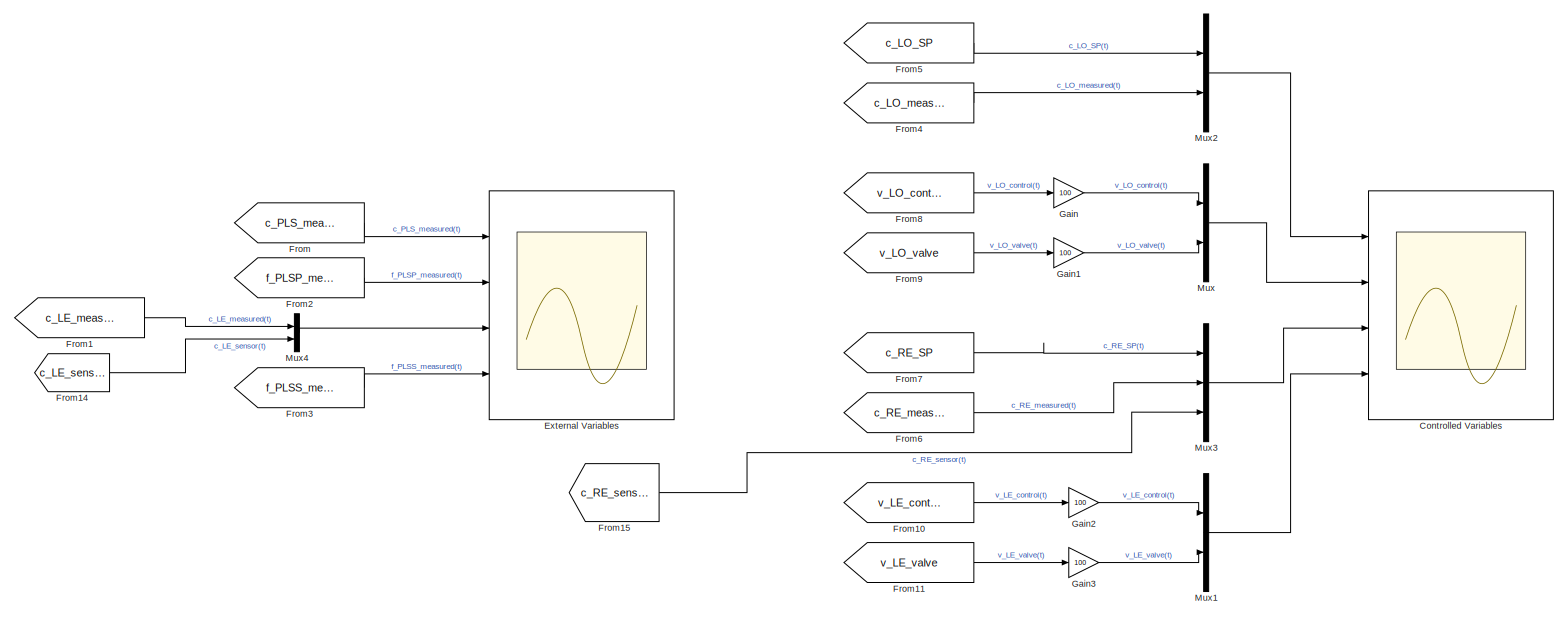
[diagram: Simulation Scopes - part 1/2, left side, full height]
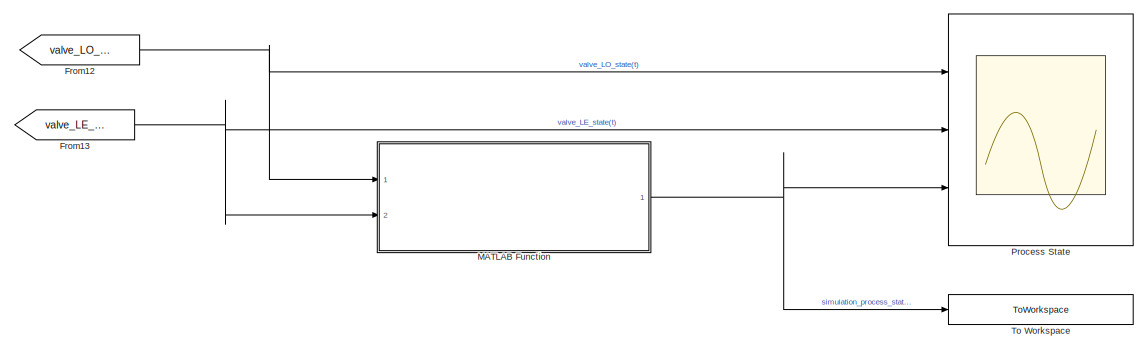
[diagram: Simulation Scopes - part 2/2, middle right region]
BLOCK [SubSystem] Simulation Scopes
  Ports = []
  RequestExecContextInheritance = off
BLOCK [Scope] Simulation Scopes/Controlled Variables
  Floating = off
  NumInputPorts = 4
  Ports = [4]
  ScopeSpecificationString = Simulink.scopes.TimeScopeBlockCfg('CurrentConfiguration', extmgr.ConfigurationSet(extmgr.Configuration('Core','General UI',true,'FigureColor',[1 1 1]),extmgr.Configuration('Core','Source UI',true),extmgr.Configuration('Sources','WiredSimulink',true,'DataLoggingVariableName','ScopeData1'),extmgr.Configuration('Visuals','Time Domain',true,'SerializedDisplays',{struct('MinYLimReal','0','MaxYLimReal',...<+4458ch>
BLOCK [Scope] Simulation Scopes/External Variables
  Floating = off
  NumInputPorts = 4
  Ports = [4]
  ScopeSpecificationString = Simulink.scopes.TimeScopeBlockCfg('CurrentConfiguration', extmgr.ConfigurationSet(extmgr.Configuration('Core','General UI',true,'FigureColor',[1 1 1]),extmgr.Configuration('Core','Source UI',true),extmgr.Configuration('Sources','WiredSimulink',true,'DataLoggingVariableName','ScopeData1'),extmgr.Configuration('Visuals','Time Domain',true,'SerializedDisplays',{struct('MinYLimReal','0','MaxYLimReal',...<+4223ch>
BLOCK [From] Simulation Scopes/From
  GotoTag = c_PLS_measured
  TagVisibility = global
BLOCK [From] Simulation Scopes/From1
  GotoTag = c_LE_measured
  TagVisibility = global
BLOCK [From] Simulation Scopes/From10
  GotoTag = v_LE_control
  TagVisibility = global
BLOCK [From] Simulation Scopes/From11
  GotoTag = v_LE_valve
  TagVisibility = global
BLOCK [From] Simulation Scopes/From12
  GotoTag = valve_LO_state
  TagVisibility = global
BLOCK [From] Simulation Scopes/From13
  GotoTag = valve_LE_state
  TagVisibility = global
BLOCK [From] Simulation Scopes/From14
  GotoTag = c_LE_sensor
  TagVisibility = global
BLOCK [From] Simulation Scopes/From15
  GotoTag = c_RE_sensor
  TagVisibility = global
BLOCK [From] Simulation Scopes/From2
  GotoTag = f_PLSP_measured
  TagVisibility = global
BLOCK [From] Simulation Scopes/From3
  GotoTag = f_PLSS_measured
  TagVisibility = global
BLOCK [From] Simulation Scopes/From4
  GotoTag = c_LO_measured
  TagVisibility = global
BLOCK [From] Simulation Scopes/From5
  GotoTag = c_LO_SP
  TagVisibility = global
BLOCK [From] Simulation Scopes/From6
  GotoTag = c_RE_measured
  TagVisibility = global
BLOCK [From] Simulation Scopes/From7
  GotoTag = c_RE_SP
  TagVisibility = global
BLOCK [From] Simulation Scopes/From8
  GotoTag = v_LO_control
  TagVisibility = global
BLOCK [From] Simulation Scopes/From9
  GotoTag = v_LO_valve
  TagVisibility = global
BLOCK [Gain] Simulation Scopes/Gain
  Gain = 100
BLOCK [Gain] Simulation Scopes/Gain1
  Gain = 100
BLOCK [Gain] Simulation Scopes/Gain2
  Gain = 100
BLOCK [Gain] Simulation Scopes/Gain3
  Gain = 100
BLOCK [SubSystem] Simulation Scopes/MATLAB Function
  ErrorFcn = Stateflow.Translate.translate
  PermitHierarchicalResolution = ExplicitOnly
  Ports = [2, 1]
  RequestExecContextInheritance = off
  SFBlockType = MATLAB Function
  TreatAsAtomicUnit = on
BLOCK [Demux] Simulation Scopes/MATLAB Function/ Demux 
  Outputs = 1
  Ports = [1, 1]
BLOCK [S-Function] Simulation Scopes/MATLAB Function/ SFunction 
  EnableBusSupport = on
  FunctionName = sf_sfun
  PortCounts = [2 2]
  Ports = [2, 2]
  SFcnIsStateOwnerBlock = off
  SFunctionDeploymentMode = off
  Tag = Stateflow S-Function 17
BLOCK [Terminator] Simulation Scopes/MATLAB Function/ Terminator 
BLOCK [Outport] Simulation Scopes/MATLAB Function/simulation_process_state
BLOCK [Inport] Simulation Scopes/MATLAB Function/valve_LE_state
  Port = 2
BLOCK [Inport] Simulation Scopes/MATLAB Function/valve_LO_state
BLOCK [Mux] Simulation Scopes/Mux
  DisplayOption = bar
  Inputs = 2
  Ports = [2, 1]
BLOCK [Mux] Simulation Scopes/Mux1
  DisplayOption = bar
  Inputs = 2
  Ports = [2, 1]
BLOCK [Mux] Simulation Scopes/Mux2
  DisplayOption = bar
  Inputs = 2
  Ports = [2, 1]
BLOCK [Mux] Simulation Scopes/Mux3
  DisplayOption = bar
  Inputs = 3
  Ports = [3, 1]
BLOCK [Mux] Simulation Scopes/Mux4
  DisplayOption = bar
  Inputs = 2
  Ports = [2, 1]
BLOCK [Scope] Simulation Scopes/Process State
  Floating = off
  NumInputPorts = 3
  Ports = [3]
  ScopeSpecificationString = Simulink.scopes.TimeScopeBlockCfg('CurrentConfiguration', extmgr.ConfigurationSet(extmgr.Configuration('Core','General UI',true,'FigureColor',[1 1 1]),extmgr.Configuration('Core','Source UI',true),extmgr.Configuration('Sources','WiredSimulink',true,'DataLoggingVariableName','ScopeData1'),extmgr.Configuration('Visuals','Time Domain',true,'SerializedDisplays',{struct('MinYLimReal','-0.5','MaxYLimRea...<+5659ch>
BLOCK [ToWorkspace] Simulation Scopes/To Workspace
  FixptAsFi = on
  MaxDataPoints = inf
  Ports = [1]
  SampleTime = -1
  SaveFormat = Timeseries
  VariableName = simulation_process_state
BLOCK [SubSystem] Stripping S1
  NameLocation = top
  PortSchema = {"entries":[{"content":{"sides":[{"content":{"connectorIds":["In1","In2"]},"type":"ConnectorPlacement.EquallySpacedRectSide","uuid":"edd2b024-3361-40c1-bf48-03bacc8752ae"},{"content":{"connectorIds":["Out1","Out2"],"side":"RIGHT"},"type":"ConnectorPlacement.EquallySpacedRectSide","uuid":"73229bfa-5f94-46f0-92ab-46840454d51f"},{"content":{"connectorIds":["In3","In4"],"side":"TOP"},"type":"Connector...<+414ch>
  Ports = [4, 3]
  RequestExecContextInheritance = off
BLOCK [Outport] Stripping S1/C1_el(t-t4)
  Port = 3
BLOCK [Inport] Stripping S1/C3_org(t-t3)
BLOCK [Outport] Stripping S1/C4_org(t-t4)
BLOCK [SubSystem] Stripping S1/Mixer S1
  Ports = [4, 2]
  RequestExecContextInheritance = off
BLOCK [ToWorkspace] Stripping S1/Mixer S1/C1_el To Workspace
  FixptAsFi = on
  MaxDataPoints = inf
  Ports = [1]
  SampleTime = -1
  SaveFormat = Timeseries
  VariableName = C1_el
BLOCK [Outport] Stripping S1/Mixer S1/C1_el(t)
BLOCK [Integrator] Stripping S1/Mixer S1/C1_el(t) Integrater
  InitialCondition = C1_el_ss
  Ports = [1, 1]
BLOCK [Inport] Stripping S1/Mixer S1/C3_org(t-t3)
  Port = 4
BLOCK [ToWorkspace] Stripping S1/Mixer S1/C4_org To Workspace
  FixptAsFi = on
  MaxDataPoints = inf
  Ports = [1]
  SampleTime = -1
  SaveFormat = Timeseries
  VariableName = C4_org
BLOCK [Outport] Stripping S1/Mixer S1/C4_org(t)
  Port = 2
BLOCK [Integrator] Stripping S1/Mixer S1/C4_org(t) Integrater
  InitialCondition = C4_org_ss
  Ports = [1, 1]
BLOCK [From] Stripping S1/Mixer S1/From
  GotoTag = fault3_strip
  TagVisibility = global
BLOCK [SubSystem] Stripping S1/Mixer S1/Mixer S1 MATLAB Function
  ErrorFcn = Stateflow.Translate.translate
  PermitHierarchicalResolution = ExplicitOnly
  Ports = [7, 3]
  RequestExecContextInheritance = off
  SFBlockType = MATLAB Function
  TreatAsAtomicUnit = on
BLOCK [Demux] Stripping S1/Mixer S1/Mixer S1 MATLAB Function/ Demux 
  Outputs = 1
  Ports = [1, 1]
BLOCK [S-Function] Stripping S1/Mixer S1/Mixer S1 MATLAB Function/ SFunction 
  EnableBusSupport = on
  FunctionName = sf_sfun
  Parameters = C_aq_max,K_eq_str,K_mass_4,V4
  PortCounts = [7 4]
  Ports = [7, 4]
  SFcnIsStateOwnerBlock = off
  SFunctionDeploymentMode = off
  Tag = Stateflow S-Function 4
BLOCK [Terminator] Stripping S1/Mixer S1/Mixer S1 MATLAB Function/ Terminator 
BLOCK [Inport] Stripping S1/Mixer S1/Mixer S1 MATLAB Function/C1_el
  Port = 5
BLOCK [Outport] Stripping S1/Mixer S1/Mixer S1 MATLAB Function/C1_el_equilibrium
BLOCK [Inport] Stripping S1/Mixer S1/Mixer S1 MATLAB Function/C3_org_delay
  Port = 4
BLOCK [Inport] Stripping S1/Mixer S1/Mixer S1 MATLAB Function/C4_org
  Port = 6
BLOCK [Inport] Stripping S1/Mixer S1/Mixer S1 MATLAB Function/cLE
  Port = 2
BLOCK [Outport] Stripping S1/Mixer S1/Mixer S1 MATLAB Function/dC1_el_dt
  Port = 2
BLOCK [Outport] Stripping S1/Mixer S1/Mixer S1 MATLAB Function/dC4_org_dt
  Port = 3
BLOCK [Inport] Stripping S1/Mixer S1/Mixer S1 MATLAB Function/fLE
BLOCK [Inport] Stripping S1/Mixer S1/Mixer S1 MATLAB Function/fLO
  Port = 3
BLOCK [Inport] Stripping S1/Mixer S1/Mixer S1 MATLAB Function/strip_eff
  Port = 7
BLOCK [Scope] Stripping S1/Mixer S1/Scope
  Floating = off
  NumInputPorts = 1
  Ports = [1]
  ScopeSpecificationString = Simulink.scopes.TimeScopeBlockCfg('CurrentConfiguration', extmgr.ConfigurationSet(extmgr.Configuration('Core','General UI',true),extmgr.Configuration('Core','Source UI',true),extmgr.Configuration('Sources','WiredSimulink',true,'DataLoggingVariableName','ScopeData2'),extmgr.Configuration('Visuals','Time Domain',true),extmgr.Configuration('Tools','Plot Navigation',true),extmgr.Configuration('Tools',...<+40ch>
BLOCK [ToWorkspace] Stripping S1/Mixer S1/To Workspace
  FixptAsFi = on
  MaxDataPoints = inf
  Ports = [1]
  SampleTime = -1
  SaveFormat = Timeseries
  VariableName = C1_el_eq
BLOCK [Inport] Stripping S1/Mixer S1/cLE
  Port = 2
BLOCK [Inport] Stripping S1/Mixer S1/fLE
BLOCK [Inport] Stripping S1/Mixer S1/fLO
  Port = 3
BLOCK [SubSystem] Stripping S1/Settler S1
  Ports = [2, 2]
  RequestExecContextInheritance = off
BLOCK [Inport] Stripping S1/Settler S1/C1_el(t)
BLOCK [Outport] Stripping S1/Settler S1/C1_el(t-t4)
BLOCK [ToWorkspace] Stripping S1/Settler S1/C1_el_delay To Workspace
  FixptAsFi = on
  MaxDataPoints = inf
  Ports = [1]
  SampleTime = -1
  SaveFormat = Timeseries
  VariableName = C1_el_delay
BLOCK [Inport] Stripping S1/Settler S1/C4_org(t)
  Port = 2
BLOCK [Outport] Stripping S1/Settler S1/C4_org(t-t4)
  Port = 2
BLOCK [ToWorkspace] Stripping S1/Settler S1/C4_org_delay To Workspace
  FixptAsFi = on
  MaxDataPoints = inf
  Ports = [1]
  SampleTime = -1
  SaveFormat = Timeseries
  VariableName = C4_org_delay
BLOCK [TransportDelay] Stripping S1/Settler S1/S1 Electrolyte Settler
  DelayTime = t4
  InitialOutput = C1_el_ss
  Ports = [1, 1]
BLOCK [TransportDelay] Stripping S1/Settler S1/S1 Organic Settler
  DelayTime = t4
  InitialOutput = C4_org_ss
  Ports = [1, 1]
BLOCK [Inport] Stripping S1/cLE
  Port = 3
BLOCK [Inport] Stripping S1/fLE
  Port = 4
BLOCK [Inport] Stripping S1/fLO
  Port = 2
BLOCK [Outport] Stripping S1/fLO_out(t)
  Port = 2
BLOCK [SubSystem] Valve LE
  NameLocation = top
  PortSchema = {"entries":[{"content":{"sides":[{"content":{"connectorIds":["In1"]},"type":"ConnectorPlacement.EquallySpacedRectSide","uuid":"06bfa01a-e663-49ea-90bb-597467147bdb"},{"content":{"connectorIds":[],"side":"RIGHT"},"type":"ConnectorPlacement.EquallySpacedRectSide","uuid":"1b97bf0a-d157-483d-9143-b19205f93668"},{"content":{"connectorIds":[],"side":"TOP"},"type":"ConnectorPlacement.EquallySpacedRectSid...<+384ch>
  Ports = [1, 1]
  RequestExecContextInheritance = off
BLOCK [Memory] Valve LE/Memory
  InitialCondition = vLE_ss
BLOCK [Clock] Valve LE/Simulation time
BLOCK [SubSystem] Valve LE/Valve LE flow model
  Ports = [1, 1]
  RequestExecContextInheritance = off
BLOCK [Gain] Valve LE/Valve LE flow model/fLE Gain
  Gain = fLE_max
BLOCK [ToWorkspace] Valve LE/Valve LE flow model/fLE To Workspace
  FixptAsFi = on
  MaxDataPoints = inf
  Ports = [1]
  SampleTime = -1
  SaveFormat = Timeseries
  VariableName = fLE
BLOCK [Outport] Valve LE/Valve LE flow model/fLE(t)
BLOCK [Inport] Valve LE/Valve LE flow model/vLE_valve(t)
BLOCK [SubSystem] Valve LE/Valve LE valve model
  Ports = [3, 1]
  RequestExecContextInheritance = off
BLOCK [Goto] Valve LE/Valve LE valve model/Goto
  GotoTag = v_LE_valve
  TagVisibility = global
BLOCK [Goto] Valve LE/Valve LE valve model/Goto1
  GotoTag = valve_LE_state
  TagVisibility = global
BLOCK [If] Valve LE/Valve LE valve model/If
  ElseIfExpressions = u1 == 1, u1 == 2
  IfExpression = u1 == 0
  Ports = [1, 3]
  ShowElse = off
BLOCK [Merge] Valve LE/Valve LE valve model/Merge
  Ports = [2, 1]
BLOCK [SubSystem] Valve LE/Valve LE valve model/Normal Operating Conditions
  Ports = [1, 1, 0, 0, 0, 0, 0, 1]
  RequestExecContextInheritance = off
  TreatAsAtomicUnit = on
BLOCK [ActionPort] Valve LE/Valve LE valve model/Normal Operating Conditions/Action Port
  ActionPortLabel = if(u1 == 0)
BLOCK [Gain] Valve LE/Valve LE valve model/Normal Operating Conditions/LE Valve Model
BLOCK [Inport] Valve LE/Valve LE valve model/Normal Operating Conditions/v_LE_control(t)
BLOCK [Outport] Valve LE/Valve LE valve model/Normal Operating Conditions/v_LE_valve(t)
BLOCK [SubSystem] Valve LE/Valve LE valve model/Stuck
  Ports = [2, 1, 0, 0, 0, 0, 0, 1]
  RequestExecContextInheritance = off
  TreatAsAtomicUnit = on
BLOCK [ActionPort] Valve LE/Valve LE valve model/Stuck/Action Port
  ActionPortLabel = elseif(u1 == 1)
BLOCK [Memory] Valve LE/Valve LE valve model/Stuck/Memory
  InitialCondition = vLE_ss
BLOCK [Switch] Valve LE/Valve LE valve model/Stuck/Switch
  Criteria = u2 > Threshold
  InputSameDT = off
  SaturateOnIntegerOverflow = off
BLOCK [Inport] Valve LE/Valve LE valve model/Stuck/v_LE_control(t)
BLOCK [Inport] Valve LE/Valve LE valve model/Stuck/v_LE_is_not_stuck(t)
  Port = 2
BLOCK [Outport] Valve LE/Valve LE valve model/Stuck/v_LE_valve(t)
BLOCK [ToWorkspace] Valve LE/Valve LE valve model/To Workspace
  FixptAsFi = on
  MaxDataPoints = inf
  Ports = [1]
  SampleTime = -1
  SaveFormat = Timeseries
  VariableName = valve_LE_state
BLOCK [ToWorkspace] Valve LE/Valve LE valve model/vLO_valve To Workspace
  FixptAsFi = on
  MaxDataPoints = inf
  Ports = [1]
  SampleTime = -1
  SaveFormat = Timeseries
  VariableName = vLE_valve
BLOCK [Inport] Valve LE/Valve LE valve model/v_LE_control(t)
BLOCK [Inport] Valve LE/Valve LE valve model/v_LE_is_not_stuck(t)
  Port = 3
BLOCK [Outport] Valve LE/Valve LE valve model/v_LE_valve(t)
BLOCK [Inport] Valve LE/Valve LE valve model/valve_LE_state
  Port = 2
BLOCK [SubSystem] Valve LE/Variant Subsystem
  Ports = [2, 4]
  RequestExecContextInheritance = off
  Variant = on
BLOCK [SubSystem] Valve LE/Variant Subsystem/Valve LE State Custom
  Ports = [2, 4]
  RequestExecContextInheritance = off
  VariantControl = VALVE_LE_STATE_CUSTOM
BLOCK [SubSystem] Valve LE/Variant Subsystem/Valve LE State Custom/Valve LE Finite State Machine Custom
  ErrorFcn = Stateflow.Translate.translate
  NameLocation = top
  PermitHierarchicalResolution = ExplicitOnly
  Ports = [2, 4]
  RequestExecContextInheritance = off
  SFBlockType = Chart
  TreatAsAtomicUnit = on
BLOCK [Demux] Valve LE/Variant Subsystem/Valve LE State Custom/Valve LE Finite State Machine Custom/ Demux 
  Outputs = 1
  Ports = [1, 1]
BLOCK [S-Function] Valve LE/Variant Subsystem/Valve LE State Custom/Valve LE Finite State Machine Custom/ SFunction 
  EnableBusSupport = on
  FunctionName = sf_sfun
  Parameters = valve_LE_fault_start_time,valve_LE_fault_stop_time
  PortCounts = [2 5]
  Ports = [2, 5]
  SFcnIsStateOwnerBlock = off
  SFunctionDeploymentMode = off
  Tag = Stateflow S-Function 19
BLOCK [Terminator] Valve LE/Variant Subsystem/Valve LE State Custom/Valve LE Finite State Machine Custom/ Terminator 
BLOCK [Inport] Valve LE/Variant Subsystem/Valve LE State Custom/Valve LE Finite State Machine Custom/simulation_time
BLOCK [Outport] Valve LE/Variant Subsystem/Valve LE State Custom/Valve LE Finite State Machine Custom/v_LE_is_not_stuck
  Port = 2
BLOCK [Inport] Valve LE/Variant Subsystem/Valve LE State Custom/Valve LE Finite State Machine Custom/v_LE_valve_previous
  Port = 2
BLOCK [Outport] Valve LE/Variant Subsystem/Valve LE State Custom/Valve LE Finite State Machine Custom/valve_LE_state
BLOCK [Outport] Valve LE/Variant Subsystem/Valve LE State Custom/Valve LE Finite State Machine Custom/valve_LE_stiction_start_time
  Port = 4
BLOCK [Outport] Valve LE/Variant Subsystem/Valve LE State Custom/Valve LE Finite State Machine Custom/valve_LE_stiction_v_initial
  Port = 3
BLOCK [Inport] Valve LE/Variant Subsystem/Valve LE State Custom/simulation_time
BLOCK [Outport] Valve LE/Variant Subsystem/Valve LE State Custom/v_LE_is_not_stuck
  Port = 2
BLOCK [Inport] Valve LE/Variant Subsystem/Valve LE State Custom/v_LE_valve_previous
  Port = 2
BLOCK [Outport] Valve LE/Variant Subsystem/Valve LE State Custom/valve_LE_state
BLOCK [Outport] Valve LE/Variant Subsystem/Valve LE State Custom/valve_LE_stiction_start_time
  Port = 4
BLOCK [Outport] Valve LE/Variant Subsystem/Valve LE State Custom/valve_LE_stiction_v_initial
  Port = 3
BLOCK [SubSystem] Valve LE/Variant Subsystem/Valve LE State Normal
  Ports = [2, 4]
  RequestExecContextInheritance = off
  VariantControl = VALVE_LE_STATE_NORMAL
BLOCK [SubSystem] Valve LE/Variant Subsystem/Valve LE State Normal/Valve LE Finite State Machine Normal
  ErrorFcn = Stateflow.Translate.translate
  NameLocation = top
  PermitHierarchicalResolution = ExplicitOnly
  Ports = [2, 4]
  RequestExecContextInheritance = off
  SFBlockType = Chart
  TreatAsAtomicUnit = on
BLOCK [Demux] Valve LE/Variant Subsystem/Valve LE State Normal/Valve LE Finite State Machine Normal/ Demux 
  Outputs = 1
  Ports = [1, 1]
BLOCK [S-Function] Valve LE/Variant Subsystem/Valve LE State Normal/Valve LE Finite State Machine Normal/ SFunction 
  EnableBusSupport = on
  FunctionName = sf_sfun
  Parameters = valve_LE_fault_start_time,valve_LE_fault_stop_time
  PortCounts = [2 5]
  Ports = [2, 5]
  SFcnIsStateOwnerBlock = off
  SFunctionDeploymentMode = off
  Tag = Stateflow S-Function 14
BLOCK [Terminator] Valve LE/Variant Subsystem/Valve LE State Normal/Valve LE Finite State Machine Normal/ Terminator 
BLOCK [Inport] Valve LE/Variant Subsystem/Valve LE State Normal/Valve LE Finite State Machine Normal/simulation_time
BLOCK [Outport] Valve LE/Variant Subsystem/Valve LE State Normal/Valve LE Finite State Machine Normal/v_LE_is_not_stuck
  Port = 2
BLOCK [Inport] Valve LE/Variant Subsystem/Valve LE State Normal/Valve LE Finite State Machine Normal/v_LE_valve_previous
  Port = 2
BLOCK [Outport] Valve LE/Variant Subsystem/Valve LE State Normal/Valve LE Finite State Machine Normal/valve_LE_state
BLOCK [Outport] Valve LE/Variant Subsystem/Valve LE State Normal/Valve LE Finite State Machine Normal/valve_LE_stiction_start_time
  Port = 4
BLOCK [Outport] Valve LE/Variant Subsystem/Valve LE State Normal/Valve LE Finite State Machine Normal/valve_LE_stiction_v_initial
  Port = 3
BLOCK [Inport] Valve LE/Variant Subsystem/Valve LE State Normal/simulation_time
BLOCK [Outport] Valve LE/Variant Subsystem/Valve LE State Normal/v_LE_is_not_stuck
  Port = 2
BLOCK [Inport] Valve LE/Variant Subsystem/Valve LE State Normal/v_LE_valve_previous
  Port = 2
BLOCK [Outport] Valve LE/Variant Subsystem/Valve LE State Normal/valve_LE_state
BLOCK [Outport] Valve LE/Variant Subsystem/Valve LE State Normal/valve_LE_stiction_start_time
  Port = 4
BLOCK [Outport] Valve LE/Variant Subsystem/Valve LE State Normal/valve_LE_stiction_v_initial
  Port = 3
BLOCK [SubSystem] Valve LE/Variant Subsystem/Valve LE State Stiction
  Ports = [2, 4]
  RequestExecContextInheritance = off
  VariantControl = VALVE_LE_STATE_STICTION
BLOCK [SubSystem] Valve LE/Variant Subsystem/Valve LE State Stiction/Valve LE Finite State Machine Stiction
  ErrorFcn = Stateflow.Translate.translate
  NameLocation = top
  PermitHierarchicalResolution = ExplicitOnly
  Ports = [2, 4]
  RequestExecContextInheritance = off
  SFBlockType = Chart
  TreatAsAtomicUnit = on
BLOCK [Demux] Valve LE/Variant Subsystem/Valve LE State Stiction/Valve LE Finite State Machine Stiction/ Demux 
  Outputs = 1
  Ports = [1, 1]
BLOCK [S-Function] Valve LE/Variant Subsystem/Valve LE State Stiction/Valve LE Finite State Machine Stiction/ SFunction 
  EnableBusSupport = on
  FunctionName = sf_sfun
  Parameters = valve_LE_fault_start_time,valve_LE_fault_stop_time
  PortCounts = [2 5]
  Ports = [2, 5]
  SFcnIsStateOwnerBlock = off
  SFunctionDeploymentMode = off
  Tag = Stateflow S-Function 15
BLOCK [Terminator] Valve LE/Variant Subsystem/Valve LE State Stiction/Valve LE Finite State Machine Stiction/ Terminator 
BLOCK [Inport] Valve LE/Variant Subsystem/Valve LE State Stiction/Valve LE Finite State Machine Stiction/simulation_time
BLOCK [Outport] Valve LE/Variant Subsystem/Valve LE State Stiction/Valve LE Finite State Machine Stiction/v_LE_is_not_stuck
  Port = 2
BLOCK [Inport] Valve LE/Variant Subsystem/Valve LE State Stiction/Valve LE Finite State Machine Stiction/v_LE_valve_previous
  Port = 2
BLOCK [Outport] Valve LE/Variant Subsystem/Valve LE State Stiction/Valve LE Finite State Machine Stiction/valve_LE_state
BLOCK [Outport] Valve LE/Variant Subsystem/Valve LE State Stiction/Valve LE Finite State Machine Stiction/valve_LE_stiction_start_time
  Port = 4
BLOCK [Outport] Valve LE/Variant Subsystem/Valve LE State Stiction/Valve LE Finite State Machine Stiction/valve_LE_stiction_v_initial
  Port = 3
BLOCK [Inport] Valve LE/Variant Subsystem/Valve LE State Stiction/simulation_time
BLOCK [Outport] Valve LE/Variant Subsystem/Valve LE State Stiction/v_LE_is_not_stuck
  Port = 2
BLOCK [Inport] Valve LE/Variant Subsystem/Valve LE State Stiction/v_LE_valve_previous
  Port = 2
BLOCK [Outport] Valve LE/Variant Subsystem/Valve LE State Stiction/valve_LE_state
BLOCK [Outport] Valve LE/Variant Subsystem/Valve LE State Stiction/valve_LE_stiction_start_time
  Port = 4
BLOCK [Outport] Valve LE/Variant Subsystem/Valve LE State Stiction/valve_LE_stiction_v_initial
  Port = 3
BLOCK [SubSystem] Valve LE/Variant Subsystem/Valve LE State Stuck
  Ports = [2, 4]
  RequestExecContextInheritance = off
  VariantControl = VALVE_LE_STATE_STUCK
BLOCK [SubSystem] Valve LE/Variant Subsystem/Valve LE State Stuck/Valve LE Finite State Machine Stuck
  ErrorFcn = Stateflow.Translate.translate
  NameLocation = top
  PermitHierarchicalResolution = ExplicitOnly
  Ports = [2, 4]
  RequestExecContextInheritance = off
  SFBlockType = Chart
  TreatAsAtomicUnit = on
BLOCK [Demux] Valve LE/Variant Subsystem/Valve LE State Stuck/Valve LE Finite State Machine Stuck/ Demux 
  Outputs = 1
  Ports = [1, 1]
BLOCK [S-Function] Valve LE/Variant Subsystem/Valve LE State Stuck/Valve LE Finite State Machine Stuck/ SFunction 
  EnableBusSupport = on
  FunctionName = sf_sfun
  Parameters = valve_LE_fault_start_time,valve_LE_fault_stop_time
  PortCounts = [2 5]
  Ports = [2, 5]
  SFcnIsStateOwnerBlock = off
  SFunctionDeploymentMode = off
  Tag = Stateflow S-Function 16
BLOCK [Terminator] Valve LE/Variant Subsystem/Valve LE State Stuck/Valve LE Finite State Machine Stuck/ Terminator 
BLOCK [Inport] Valve LE/Variant Subsystem/Valve LE State Stuck/Valve LE Finite State Machine Stuck/simulation_time
BLOCK [Outport] Valve LE/Variant Subsystem/Valve LE State Stuck/Valve LE Finite State Machine Stuck/v_LE_is_not_stuck
  Port = 2
BLOCK [Inport] Valve LE/Variant Subsystem/Valve LE State Stuck/Valve LE Finite State Machine Stuck/v_LE_valve_previous
  Port = 2
BLOCK [Outport] Valve LE/Variant Subsystem/Valve LE State Stuck/Valve LE Finite State Machine Stuck/valve_LE_state
BLOCK [Outport] Valve LE/Variant Subsystem/Valve LE State Stuck/Valve LE Finite State Machine Stuck/valve_LE_stiction_start_time
  Port = 4
BLOCK [Outport] Valve LE/Variant Subsystem/Valve LE State Stuck/Valve LE Finite State Machine Stuck/valve_LE_stiction_v_initial
  Port = 3
BLOCK [Inport] Valve LE/Variant Subsystem/Valve LE State Stuck/simulation_time
BLOCK [Outport] Valve LE/Variant Subsystem/Valve LE State Stuck/v_LE_is_not_stuck
  Port = 2
BLOCK [Inport] Valve LE/Variant Subsystem/Valve LE State Stuck/v_LE_valve_previous
  Port = 2
BLOCK [Outport] Valve LE/Variant Subsystem/Valve LE State Stuck/valve_LE_state
BLOCK [Outport] Valve LE/Variant Subsystem/Valve LE State Stuck/valve_LE_stiction_start_time
  Port = 4
BLOCK [Outport] Valve LE/Variant Subsystem/Valve LE State Stuck/valve_LE_stiction_v_initial
  Port = 3
BLOCK [Inport] Valve LE/Variant Subsystem/simulation_time
BLOCK [Outport] Valve LE/Variant Subsystem/v_LE_is_not_stuck
  Port = 2
BLOCK [Inport] Valve LE/Variant Subsystem/v_LE_valve_previous
  Port = 2
BLOCK [Outport] Valve LE/Variant Subsystem/valve_LE_state
BLOCK [Outport] Valve LE/Variant Subsystem/valve_LE_stiction_start_time
  Port = 4
BLOCK [Outport] Valve LE/Variant Subsystem/valve_LE_stiction_v_initial
  Port = 3
BLOCK [Outport] Valve LE/fLE(t)
BLOCK [Inport] Valve LE/vLE_control_saturated(t)
BLOCK [SubSystem] Valve LO
  PortSchema = {"entries":[{"content":{"sides":[{"content":{"connectorIds":[]},"type":"ConnectorPlacement.EquallySpacedRectSide","uuid":"6fe3adae-c1d5-49c5-9f64-d9648a674ed6"},{"content":{"connectorIds":["Out1"],"side":"RIGHT"},"type":"ConnectorPlacement.EquallySpacedRectSide","uuid":"5144e458-c494-45ed-932f-5f38aa1be950"},{"content":{"connectorIds":["In1"],"side":"TOP"},"type":"ConnectorPlacement.EquallySpacedR...<+240ch>
  Ports = [1, 1]
  RequestExecContextInheritance = off
BLOCK [Memory] Valve LO/Memory
  InitialCondition = vLO_ss
BLOCK [Clock] Valve LO/Simulation time
BLOCK [SubSystem] Valve LO/Valve LO flow model
  Ports = [1, 1]
  RequestExecContextInheritance = off
BLOCK [Gain] Valve LO/Valve LO flow model/fLO Gain
  Gain = fLO_max
BLOCK [ToWorkspace] Valve LO/Valve LO flow model/fLO To Workspace
  FixptAsFi = on
  MaxDataPoints = inf
  Ports = [1]
  SampleTime = -1
  SaveFormat = Timeseries
  VariableName = fLO
BLOCK [Outport] Valve LO/Valve LO flow model/fLO(t)
BLOCK [Inport] Valve LO/Valve LO flow model/vLO_valve(t)
BLOCK [SubSystem] Valve LO/Valve LO valve model
  Ports = [3, 1]
  RequestExecContextInheritance = off
BLOCK [Goto] Valve LO/Valve LO valve model/Goto
  GotoTag = v_LO_valve
  TagVisibility = global
BLOCK [Goto] Valve LO/Valve LO valve model/Goto1
  GotoTag = valve_LO_state
  TagVisibility = global
BLOCK [If] Valve LO/Valve LO valve model/If
  ElseIfExpressions = u1 == 1, u1 == 2
  IfExpression = u1 == 0
  Ports = [1, 3]
  ShowElse = off
BLOCK [Merge] Valve LO/Valve LO valve model/Merge
  Ports = [2, 1]
BLOCK [SubSystem] Valve LO/Valve LO valve model/Normal Operating Conditions
  Ports = [1, 1, 0, 0, 0, 0, 0, 1]
  RequestExecContextInheritance = off
  TreatAsAtomicUnit = on
BLOCK [ActionPort] Valve LO/Valve LO valve model/Normal Operating Conditions/Action Port
  ActionPortLabel = if(u1 == 0)
BLOCK [Gain] Valve LO/Valve LO valve model/Normal Operating Conditions/LO Valve Model
BLOCK [Inport] Valve LO/Valve LO valve model/Normal Operating Conditions/v_LO_control(t)
BLOCK [Outport] Valve LO/Valve LO valve model/Normal Operating Conditions/v_LO_valve(t)
BLOCK [Scope] Valve LO/Valve LO valve model/Scope
  Floating = off
  NumInputPorts = 1
  Ports = [1]
BLOCK [SubSystem] Valve LO/Valve LO valve model/Stuck
  Ports = [2, 1, 0, 0, 0, 0, 0, 1]
  RequestExecContextInheritance = off
  TreatAsAtomicUnit = on
BLOCK [ActionPort] Valve LO/Valve LO valve model/Stuck/Action Port
  ActionPortLabel = elseif(u1 == 1)
BLOCK [Memory] Valve LO/Valve LO valve model/Stuck/Memory
  InitialCondition = vLO_ss
BLOCK [Switch] Valve LO/Valve LO valve model/Stuck/Switch
  Criteria = u2 > Threshold
  InputSameDT = off
  SaturateOnIntegerOverflow = off
BLOCK [Inport] Valve LO/Valve LO valve model/Stuck/v_LO_control(t)
BLOCK [Inport] Valve LO/Valve LO valve model/Stuck/v_LO_is_not_stuck(t)
  Port = 2
BLOCK [Outport] Valve LO/Valve LO valve model/Stuck/v_LO_valve(t)
BLOCK [ToWorkspace] Valve LO/Valve LO valve model/To Workspace
  FixptAsFi = on
  MaxDataPoints = inf
  Ports = [1]
  SampleTime = -1
  SaveFormat = Timeseries
  VariableName = valve_LO_state
BLOCK [ToWorkspace] Valve LO/Valve LO valve model/vLO_valve To Workspace
  FixptAsFi = on
  MaxDataPoints = inf
  Ports = [1]
  SampleTime = -1
  SaveFormat = Timeseries
  VariableName = vLO_valve
BLOCK [Inport] Valve LO/Valve LO valve model/v_LO_control(t)
BLOCK [Inport] Valve LO/Valve LO valve model/v_LO_is_not_stuck(t)
  Port = 3
BLOCK [Outport] Valve LO/Valve LO valve model/v_LO_valve(t)
BLOCK [Inport] Valve LO/Valve LO valve model/valve_LO_state
  Port = 2
BLOCK [SubSystem] Valve LO/Variant Subsystem
  Ports = [2, 4]
  RequestExecContextInheritance = off
  Variant = on
BLOCK [SubSystem] Valve LO/Variant Subsystem/Valve LO State Custom
  Ports = [2, 4]
  RequestExecContextInheritance = off
  VariantControl = VALVE_LO_STATE_CUSTOM
BLOCK [SubSystem] Valve LO/Variant Subsystem/Valve LO State Custom/Valve LO Finite State Machine Custom
  ErrorFcn = Stateflow.Translate.translate
  NameLocation = top
  PermitHierarchicalResolution = ExplicitOnly
  Ports = [2, 4]
  RequestExecContextInheritance = off
  SFBlockType = Chart
  TreatAsAtomicUnit = on
BLOCK [Demux] Valve LO/Variant Subsystem/Valve LO State Custom/Valve LO Finite State Machine Custom/ Demux 
  Outputs = 1
  Ports = [1, 1]
BLOCK [S-Function] Valve LO/Variant Subsystem/Valve LO State Custom/Valve LO Finite State Machine Custom/ SFunction 
  EnableBusSupport = on
  FunctionName = sf_sfun
  Parameters = valve_LO_fault_start_time,valve_LO_fault_stop_time
  PortCounts = [2 5]
  Ports = [2, 5]
  SFcnIsStateOwnerBlock = off
  SFunctionDeploymentMode = off
  Tag = Stateflow S-Function 18
BLOCK [Terminator] Valve LO/Variant Subsystem/Valve LO State Custom/Valve LO Finite State Machine Custom/ Terminator 
BLOCK [Inport] Valve LO/Variant Subsystem/Valve LO State Custom/Valve LO Finite State Machine Custom/simulation_time
BLOCK [Outport] Valve LO/Variant Subsystem/Valve LO State Custom/Valve LO Finite State Machine Custom/v_LO_is_not_stuck
  Port = 2
BLOCK [Inport] Valve LO/Variant Subsystem/Valve LO State Custom/Valve LO Finite State Machine Custom/v_LO_valve_previous
  Port = 2
BLOCK [Outport] Valve LO/Variant Subsystem/Valve LO State Custom/Valve LO Finite State Machine Custom/valve_LO_state
BLOCK [Outport] Valve LO/Variant Subsystem/Valve LO State Custom/Valve LO Finite State Machine Custom/valve_LO_stiction_start_time
  Port = 4
BLOCK [Outport] Valve LO/Variant Subsystem/Valve LO State Custom/Valve LO Finite State Machine Custom/valve_LO_stiction_v_initial
  Port = 3
BLOCK [Inport] Valve LO/Variant Subsystem/Valve LO State Custom/simulation_time
BLOCK [Outport] Valve LO/Variant Subsystem/Valve LO State Custom/v_LO_is_not_stuck
  Port = 2
BLOCK [Inport] Valve LO/Variant Subsystem/Valve LO State Custom/v_LO_valve_previous
  Port = 2
BLOCK [Outport] Valve LO/Variant Subsystem/Valve LO State Custom/valve_LO_state
BLOCK [Outport] Valve LO/Variant Subsystem/Valve LO State Custom/valve_LO_stiction_start_time
  Port = 4
BLOCK [Outport] Valve LO/Variant Subsystem/Valve LO State Custom/valve_LO_stiction_v_initial
  Port = 3
BLOCK [SubSystem] Valve LO/Variant Subsystem/Valve LO State Normal
  Ports = [2, 4]
  RequestExecContextInheritance = off
  VariantControl = VALVE_LO_STATE_NORMAL
BLOCK [SubSystem] Valve LO/Variant Subsystem/Valve LO State Normal/Valve LO Finite State Machine Normal
  ErrorFcn = Stateflow.Translate.translate
  NameLocation = top
  PermitHierarchicalResolution = ExplicitOnly
  Ports = [2, 4]
  RequestExecContextInheritance = off
  SFBlockType = Chart
  TreatAsAtomicUnit = on
BLOCK [Demux] Valve LO/Variant Subsystem/Valve LO State Normal/Valve LO Finite State Machine Normal/ Demux 
  Outputs = 1
  Ports = [1, 1]
BLOCK [S-Function] Valve LO/Variant Subsystem/Valve LO State Normal/Valve LO Finite State Machine Normal/ SFunction 
  EnableBusSupport = on
  FunctionName = sf_sfun
  Parameters = valve_LO_fault_start_time,valve_LO_fault_stop_time
  PortCounts = [2 5]
  Ports = [2, 5]
  SFcnIsStateOwnerBlock = off
  SFunctionDeploymentMode = off
  Tag = Stateflow S-Function 2
BLOCK [Terminator] Valve LO/Variant Subsystem/Valve LO State Normal/Valve LO Finite State Machine Normal/ Terminator 
BLOCK [Inport] Valve LO/Variant Subsystem/Valve LO State Normal/Valve LO Finite State Machine Normal/simulation_time
BLOCK [Outport] Valve LO/Variant Subsystem/Valve LO State Normal/Valve LO Finite State Machine Normal/v_LO_is_not_stuck
  Port = 2
BLOCK [Inport] Valve LO/Variant Subsystem/Valve LO State Normal/Valve LO Finite State Machine Normal/v_LO_valve_previous
  Port = 2
BLOCK [Outport] Valve LO/Variant Subsystem/Valve LO State Normal/Valve LO Finite State Machine Normal/valve_LO_state
BLOCK [Outport] Valve LO/Variant Subsystem/Valve LO State Normal/Valve LO Finite State Machine Normal/valve_LO_stiction_start_time
  Port = 4
BLOCK [Outport] Valve LO/Variant Subsystem/Valve LO State Normal/Valve LO Finite State Machine Normal/valve_LO_stiction_v_initial
  Port = 3
BLOCK [Inport] Valve LO/Variant Subsystem/Valve LO State Normal/simulation_time
BLOCK [Outport] Valve LO/Variant Subsystem/Valve LO State Normal/v_LO_is_not_stuck
  Port = 2
BLOCK [Inport] Valve LO/Variant Subsystem/Valve LO State Normal/v_LO_valve_previous
  Port = 2
BLOCK [Outport] Valve LO/Variant Subsystem/Valve LO State Normal/valve_LO_state
BLOCK [Outport] Valve LO/Variant Subsystem/Valve LO State Normal/valve_LO_stiction_start_time
  Port = 4
BLOCK [Outport] Valve LO/Variant Subsystem/Valve LO State Normal/valve_LO_stiction_v_initial
  Port = 3
BLOCK [SubSystem] Valve LO/Variant Subsystem/Valve LO State Stiction
  Ports = [2, 4]
  RequestExecContextInheritance = off
  VariantControl = VALVE_LO_STATE_STICTION
BLOCK [SubSystem] Valve LO/Variant Subsystem/Valve LO State Stiction/Valve LO Finite State Machine Stiction
  ErrorFcn = Stateflow.Translate.translate
  NameLocation = top
  PermitHierarchicalResolution = ExplicitOnly
  Ports = [2, 4]
  RequestExecContextInheritance = off
  SFBlockType = Chart
  TreatAsAtomicUnit = on
BLOCK [Demux] Valve LO/Variant Subsystem/Valve LO State Stiction/Valve LO Finite State Machine Stiction/ Demux 
  Outputs = 1
  Ports = [1, 1]
BLOCK [S-Function] Valve LO/Variant Subsystem/Valve LO State Stiction/Valve LO Finite State Machine Stiction/ SFunction 
  EnableBusSupport = on
  FunctionName = sf_sfun
  Parameters = valve_LO_fault_start_time,valve_LO_fault_stop_time
  PortCounts = [2 5]
  Ports = [2, 5]
  SFcnIsStateOwnerBlock = off
  SFunctionDeploymentMode = off
  Tag = Stateflow S-Function 10
BLOCK [Terminator] Valve LO/Variant Subsystem/Valve LO State Stiction/Valve LO Finite State Machine Stiction/ Terminator 
BLOCK [Inport] Valve LO/Variant Subsystem/Valve LO State Stiction/Valve LO Finite State Machine Stiction/simulation_time
BLOCK [Outport] Valve LO/Variant Subsystem/Valve LO State Stiction/Valve LO Finite State Machine Stiction/v_LO_is_not_stuck
  Port = 2
BLOCK [Inport] Valve LO/Variant Subsystem/Valve LO State Stiction/Valve LO Finite State Machine Stiction/v_LO_valve_previous
  Port = 2
BLOCK [Outport] Valve LO/Variant Subsystem/Valve LO State Stiction/Valve LO Finite State Machine Stiction/valve_LO_state
BLOCK [Outport] Valve LO/Variant Subsystem/Valve LO State Stiction/Valve LO Finite State Machine Stiction/valve_LO_stiction_start_time
  Port = 4
BLOCK [Outport] Valve LO/Variant Subsystem/Valve LO State Stiction/Valve LO Finite State Machine Stiction/valve_LO_stiction_v_initial
  Port = 3
BLOCK [Inport] Valve LO/Variant Subsystem/Valve LO State Stiction/simulation_time
BLOCK [Outport] Valve LO/Variant Subsystem/Valve LO State Stiction/v_LO_is_not_stuck
  Port = 2
BLOCK [Inport] Valve LO/Variant Subsystem/Valve LO State Stiction/v_LO_valve_previous
  Port = 2
BLOCK [Outport] Valve LO/Variant Subsystem/Valve LO State Stiction/valve_LO_state
BLOCK [Outport] Valve LO/Variant Subsystem/Valve LO State Stiction/valve_LO_stiction_start_time
  Port = 4
BLOCK [Outport] Valve LO/Variant Subsystem/Valve LO State Stiction/valve_LO_stiction_v_initial
  Port = 3
BLOCK [SubSystem] Valve LO/Variant Subsystem/Valve LO State Stuck
  Ports = [2, 4]
  RequestExecContextInheritance = off
  VariantControl = VALVE_LO_STATE_STUCK
BLOCK [SubSystem] Valve LO/Variant Subsystem/Valve LO State Stuck/Valve LO Finite State Machine Stuck
  ErrorFcn = Stateflow.Translate.translate
  NameLocation = top
  PermitHierarchicalResolution = ExplicitOnly
  Ports = [2, 4]
  RequestExecContextInheritance = off
  SFBlockType = Chart
  TreatAsAtomicUnit = on
BLOCK [Demux] Valve LO/Variant Subsystem/Valve LO State Stuck/Valve LO Finite State Machine Stuck/ Demux 
  Outputs = 1
  Ports = [1, 1]
BLOCK [S-Function] Valve LO/Variant Subsystem/Valve LO State Stuck/Valve LO Finite State Machine Stuck/ SFunction 
  EnableBusSupport = on
  FunctionName = sf_sfun
  Parameters = valve_LO_fault_start_time,valve_LO_fault_stop_time
  PortCounts = [2 5]
  Ports = [2, 5]
  SFcnIsStateOwnerBlock = off
  SFunctionDeploymentMode = off
  Tag = Stateflow S-Function 9
BLOCK [Terminator] Valve LO/Variant Subsystem/Valve LO State Stuck/Valve LO Finite State Machine Stuck/ Terminator 
BLOCK [Inport] Valve LO/Variant Subsystem/Valve LO State Stuck/Valve LO Finite State Machine Stuck/simulation_time
BLOCK [Outport] Valve LO/Variant Subsystem/Valve LO State Stuck/Valve LO Finite State Machine Stuck/v_LO_is_not_stuck
  Port = 2
BLOCK [Inport] Valve LO/Variant Subsystem/Valve LO State Stuck/Valve LO Finite State Machine Stuck/v_LO_valve_previous
  Port = 2
BLOCK [Outport] Valve LO/Variant Subsystem/Valve LO State Stuck/Valve LO Finite State Machine Stuck/valve_LO_state
BLOCK [Outport] Valve LO/Variant Subsystem/Valve LO State Stuck/Valve LO Finite State Machine Stuck/valve_LO_stiction_start_time
  Port = 4
BLOCK [Outport] Valve LO/Variant Subsystem/Valve LO State Stuck/Valve LO Finite State Machine Stuck/valve_LO_stiction_v_initial
  Port = 3
BLOCK [Inport] Valve LO/Variant Subsystem/Valve LO State Stuck/simulation_time
BLOCK [Outport] Valve LO/Variant Subsystem/Valve LO State Stuck/v_LO_is_not_stuck
  Port = 2
BLOCK [Inport] Valve LO/Variant Subsystem/Valve LO State Stuck/v_LO_valve_previous
  Port = 2
BLOCK [Outport] Valve LO/Variant Subsystem/Valve LO State Stuck/valve_LO_state
BLOCK [Outport] Valve LO/Variant Subsystem/Valve LO State Stuck/valve_LO_stiction_start_time
  Port = 4
BLOCK [Outport] Valve LO/Variant Subsystem/Valve LO State Stuck/valve_LO_stiction_v_initial
  Port = 3
BLOCK [Inport] Valve LO/Variant Subsystem/simulation_time
BLOCK [Outport] Valve LO/Variant Subsystem/v_LO_is_not_stuck
  Port = 2
BLOCK [Inport] Valve LO/Variant Subsystem/v_LO_valve_previous
  Port = 2
BLOCK [Outport] Valve LO/Variant Subsystem/valve_LO_state
BLOCK [Outport] Valve LO/Variant Subsystem/valve_LO_stiction_start_time
  Port = 4
BLOCK [Outport] Valve LO/Variant Subsystem/valve_LO_stiction_v_initial
  Port = 3
BLOCK [Outport] Valve LO/f_LO(t)
BLOCK [Inport] Valve LO/vLO_control_saturated(t)
NET                            Controller LO/Saturation:1 ->                            Controller LO/Goto:1,                            Controller LO/Scope:1,                            Controller LO/vLO_control To Workspace:1,                            Controller LO/vLO_control_saturated(t):1
LINE                            Controller LO/Steady-state vLO:1 ->                            Controller LO/Sum:1
LINE                            Controller LO/Step:1 ->                            Controller LO/Sum2:2
LINE                            Controller LO/Sum1:1 ->                            Controller LO/Sum:2
NET                            Controller LO/Sum2:1 ->                            Controller LO/Saturation:1,                            Controller LO/vLO_control To Workspace1:1
LINE                            Controller LO/Sum:1 ->                            Controller LO/Sum2:1
NET                            Controller LO/v_LO_FB1(t):1 ->                            Controller LO/Scope1:1,                            Controller LO/Sum1:1
NET                            Controller LO/v_LO_FF1(t):1 ->                            Controller LO/Scope1:2,                            Controller LO/Sum1:2
NET                            Controller LO/v_LO_FF2(t) :1 ->                            Controller LO/Scope1:3,                            Controller LO/Sum1:3
NET                            Controller LO/v_LO_FF3(t):1 ->                            Controller LO/Scope1:4,                            Controller LO/Sum1:4
LINE                            Controller LO:1 -> Valve LO:1
LINE Controller FB1/Abs:1 -> Controller FB1/Integrator:1
NET Controller FB1/FB1 PI Controller:1 -> Controller FB1/To Workspace2:1, Controller FB1/v_LO_FB1(t):1
LINE Controller FB1/Integrator:1 -> Controller FB1/To Workspace3:1
NET Controller FB1/Sum:1 -> Controller FB1/Abs:1, Controller FB1/FB1 PI Controller:1, Controller FB1/To Workspace1:1
NET Controller FB1/cLO SP:1 -> Controller FB1/Goto:1, Controller FB1/Sum:1, Controller FB1/To Workspace:1
LINE Controller FB1/c_LO_measured(t):1 -> Controller FB1/Sum:2
LINE Controller FB1:1 ->                            Controller LO:1
LINE Controller FB2/Abs:1 -> Controller FB2/Integrator:1
LINE Controller FB2/Integrator:1 -> Controller FB2/To Workspace3:1
NET Controller FB2/PID Controller:1 -> Controller FB2/To Workspace2:1, Controller FB2/v_LE_FB2(t):1
NET Controller FB2/Sum:1 -> Controller FB2/Abs:1, Controller FB2/PID Controller:1, Controller FB2/To Workspace1:1
NET Controller FB2/cRE SP:1 -> Controller FB2/Goto:1, Controller FB2/Sum:1, Controller FB2/To Workspace:1
LINE Controller FB2/c_RE_measured(t):1 -> Controller FB2/Sum:2
LINE Controller FB2:1 -> Controller LE:2
LINE Controller FF1/Sum:1 -> Controller FF1/Transfer Fcn:1
LINE Controller FF1/Transfer Fcn:1 -> Controller FF1/Transport Delay:1
NET Controller FF1/Transport Delay:1 -> Controller FF1/To Workspace:1, Controller FF1/v_LO_FF1(t):1
LINE Controller FF1/f_PLSP_measured(t):1 -> Controller FF1/Sum:2
LINE Controller FF1/f_PLSP_ss:1 -> Controller FF1/Sum:1
LINE Controller FF1:1 ->                            Controller LO:4
LINE Controller FF2/Sum:1 -> Controller FF2/Transfer Fcn:1
LINE Controller FF2/Transfer Fcn:1 -> Controller FF2/Transport Delay:1
NET Controller FF2/Transport Delay:1 -> Controller FF2/To Workspace:1, Controller FF2/v_LO_FF2(t):1
LINE Controller FF2/f_PLSS_measured(t):1 -> Controller FF2/Sum:2
LINE Controller FF2/f_PLSS_ss:1 -> Controller FF2/Sum:1
LINE Controller FF2:1 ->                            Controller LO:3
LINE Controller FF3/Sum:1 -> Controller FF3/Transfer Fcn:1
LINE Controller FF3/Transfer Fcn:1 -> Controller FF3/Transport Delay:1
NET Controller FF3/Transport Delay:1 -> Controller FF3/To Workspace:1, Controller FF3/v_LO_FF3(t):1
LINE Controller FF3/c_PLS_measured(t):1 -> Controller FF3/Sum:2
LINE Controller FF3/c_PLS_ss:1 -> Controller FF3/Sum:1
LINE Controller FF3:1 ->                            Controller LO:2
NET Controller FF4/Sum:1 -> Controller FF4/Scope:1, Controller FF4/Transfer Fcn:1
LINE Controller FF4/Transfer Fcn:1 -> Controller FF4/Transport Delay:1
NET Controller FF4/Transport Delay:1 -> Controller FF4/To Workspace:1, Controller FF4/v_LE_FF4(t):1
LINE Controller FF4/c_LE_measured(t):1 -> Controller FF4/Sum:2
LINE Controller FF4/c_LE_ss:1 -> Controller FF4/Sum:1
LINE Controller FF4:1 -> Controller LE:1
NET Controller LE/Saturation:1 -> Controller LE/Goto:1, Controller LE/To Workspace:1, Controller LE/vLE_control_saturated(t):1
LINE Controller LE/Steady-state vLE:1 -> Controller LE/Sum:1
LINE Controller LE/Step:1 -> Controller LE/Sum2:2
LINE Controller LE/Sum1:1 -> Controller LE/Sum:2
NET Controller LE/Sum2:1 -> Controller LE/Saturation:1, Controller LE/vLE_control To Workspace:1
LINE Controller LE/Sum:1 -> Controller LE/Sum2:1
NET Controller LE/v_LE_FB2(t):1 -> Controller LE/Scope:1, Controller LE/Sum1:1
NET Controller LE/v_LE_FF4(t):1 -> Controller LE/Scope:2, Controller LE/Sum1:2
LINE Controller LE:1 -> Valve LE:1
LINE Electrowinning LE/Constant1:1 -> Electrowinning LE/Switch1:2
NET Electrowinning LE/From Workspace:1 -> Electrowinning LE/Scope1:2, Electrowinning LE/Switch1:3
LINE Electrowinning LE/From:1 -> Electrowinning LE/Sum1:2
LINE Electrowinning LE/Step:1 -> Electrowinning LE/Sum:2
NET Electrowinning LE/Sum1:1 -> Electrowinning LE/Scope:2, Electrowinning LE/cLE To Workspace:1, Electrowinning LE/cLE(t):1
NET Electrowinning LE/Sum:1 -> Electrowinning LE/Scope:1, Electrowinning LE/Sum1:1
LINE Electrowinning LE/Switch1:1 -> Electrowinning LE/Sum:1
NET Electrowinning LE/cLE:1 -> Electrowinning LE/Scope1:1, Electrowinning LE/Switch1:1
NET Electrowinning LE:1 -> Sensor c_LE:1, Stripping S1:3
LINE Extraction E1/C4_org(t-t4):1 -> Extraction E1/Mixer E1:4
NET Extraction E1/Mixer E1/C1_aq(t) Integrater:1 -> Extraction E1/Mixer E1/C1_aq To Workspace:1, Extraction E1/Mixer E1/C1_aq(t):1, Extraction E1/Mixer E1/Mixer E1 MATLAB Function:6
NET Extraction E1/Mixer E1/C1_org(t) Integrater:1 -> Extraction E1/Mixer E1/C1_org To Workspace:1, Extraction E1/Mixer E1/C1_org(t):1, Extraction E1/Mixer E1/Mixer E1 MATLAB Function:5
LINE Extraction E1/Mixer E1/C4_org(t-t4):1 -> Extraction E1/Mixer E1/Mixer E1 MATLAB Function:4
LINE Extraction E1/Mixer E1/From:1 -> Extraction E1/Mixer E1/Mixer E1 MATLAB Function:7
NET Extraction E1/Mixer E1/Mixer E1 MATLAB Function:1 -> Extraction E1/Mixer E1/Scope:1, Extraction E1/Mixer E1/To Workspace:1
NET Extraction E1/Mixer E1/Mixer E1 MATLAB Function:2 -> Extraction E1/Mixer E1/C1_org(t) Integrater:1, Extraction E1/Mixer E1/Scope1:1
NET Extraction E1/Mixer E1/Mixer E1 MATLAB Function:3 -> Extraction E1/Mixer E1/C1_aq(t) Integrater:1, Extraction E1/Mixer E1/Scope1:2
LINE Extraction E1/Mixer E1/cPLS:1 -> Extraction E1/Mixer E1/Mixer E1 MATLAB Function:2
LINE Extraction E1/Mixer E1/fLO:1 -> Extraction E1/Mixer E1/Mixer E1 MATLAB Function:3
LINE Extraction E1/Mixer E1/fPLSP:1 -> Extraction E1/Mixer E1/Mixer E1 MATLAB Function:1
LINE Extraction E1/Mixer E1:1 -> Extraction E1/Settler E1:1
LINE Extraction E1/Mixer E1:2 -> Extraction E1/Settler E1:2
LINE Extraction E1/Sensor c_RaffP/Random Number:1 -> Extraction E1/Sensor c_RaffP/Sum:1
LINE Extraction E1/Sensor c_RaffP/Saturation:1 -> Extraction E1/Sensor c_RaffP/To Workspace:1
LINE Extraction E1/Sensor c_RaffP/Sum:1 -> Extraction E1/Sensor c_RaffP/Saturation:1
LINE Extraction E1/Sensor c_RaffP/c_RaffP(t):1 -> Extraction E1/Sensor c_RaffP/Sum:2
LINE Extraction E1/Settler E1/C1_aq(t):1 -> Extraction E1/Settler E1/E1 Aqueous Settler:1
LINE Extraction E1/Settler E1/C1_org(t):1 -> Extraction E1/Settler E1/E1 Organic Settler:1
NET Extraction E1/Settler E1/E1 Aqueous Settler:1 -> Extraction E1/Settler E1/C1_aq(t-t1):1, Extraction E1/Settler E1/C1_aq_delay To Workspace:1
NET Extraction E1/Settler E1/E1 Organic Settler:1 -> Extraction E1/Settler E1/C1_org(t-t1):1, Extraction E1/Settler E1/C1_org_delay To Workspace:1
LINE Extraction E1/Settler E1:1 -> Extraction E1/C1_org(t-t1):1
LINE Extraction E1/Settler E1:2 -> Extraction E1/Sensor c_RaffP:1
LINE Extraction E1/cPLS:1 -> Extraction E1/Mixer E1:2
NET Extraction E1/fLO:1 -> Extraction E1/Mixer E1:3, Extraction E1/fLO_out(t):1
LINE Extraction E1/fPLSP:1 -> Extraction E1/Mixer E1:1
NET Extraction E1:1 -> Extraction E2:1, Scope:3
LINE Extraction E1:2 -> Extraction E2:2
LINE Extraction E2/C1_org(t-t1):1 -> Extraction E2/Mixer E2:4
LINE Extraction E2/C3_aq(t-t3):1 -> Extraction E2/Mixer E2:2
LINE Extraction E2/Mixer E2/C1_org(t-t1):1 -> Extraction E2/Mixer E2/Mixer E2 MATLAB Function:4
NET Extraction E2/Mixer E2/C2_aq(t) Integrater:1 -> Extraction E2/Mixer E2/C2_aq To Workspace:1, Extraction E2/Mixer E2/C2_aq(t):1, Extraction E2/Mixer E2/Mixer E2 MATLAB Function:6
NET Extraction E2/Mixer E2/C2_org(t) Integrater:1 -> Extraction E2/Mixer E2/C2_org To Workspace:1, Extraction E2/Mixer E2/C2_org(t):1, Extraction E2/Mixer E2/Mixer E2 MATLAB Function:5
LINE Extraction E2/Mixer E2/C3_aq(t-t3):1 -> Extraction E2/Mixer E2/Mixer E2 MATLAB Function:2
LINE Extraction E2/Mixer E2/From:1 -> Extraction E2/Mixer E2/Mixer E2 MATLAB Function:7
NET Extraction E2/Mixer E2/Mixer E2 MATLAB Function:1 -> Extraction E2/Mixer E2/Scope:1, Extraction E2/Mixer E2/To Workspace:1
LINE Extraction E2/Mixer E2/Mixer E2 MATLAB Function:2 -> Extraction E2/Mixer E2/C2_org(t) Integrater:1
LINE Extraction E2/Mixer E2/Mixer E2 MATLAB Function:3 -> Extraction E2/Mixer E2/C2_aq(t) Integrater:1
LINE Extraction E2/Mixer E2/fLO:1 -> Extraction E2/Mixer E2/Mixer E2 MATLAB Function:3
LINE Extraction E2/Mixer E2/fPLSS:1 -> Extraction E2/Mixer E2/Mixer E2 MATLAB Function:1
LINE Extraction E2/Mixer E2:1 -> Extraction E2/Settler E2:1
LINE Extraction E2/Mixer E2:2 -> Extraction E2/Settler E2:2
LINE Extraction E2/Sensor c_RaffS/Random Number:1 -> Extraction E2/Sensor c_RaffS/Sum:1
LINE Extraction E2/Sensor c_RaffS/Saturation:1 -> Extraction E2/Sensor c_RaffS/To Workspace:1
LINE Extraction E2/Sensor c_RaffS/Sum:1 -> Extraction E2/Sensor c_RaffS/Saturation:1
LINE Extraction E2/Sensor c_RaffS/c_RaffS(t):1 -> Extraction E2/Sensor c_RaffS/Sum:2
LINE Extraction E2/Settler E2/C2_aq(t):1 -> Extraction E2/Settler E2/E2 Aqueous Settler:1
LINE Extraction E2/Settler E2/C2_org(t):1 -> Extraction E2/Settler E2/E2 Organic Settler:1
NET Extraction E2/Settler E2/E2 Aqueous Settler:1 -> Extraction E2/Settler E2/C2_aq(t-t2):1, Extraction E2/Settler E2/C2_aq_delay To Workspace:1
NET Extraction E2/Settler E2/E2 Organic Settler:1 -> Extraction E2/Settler E2/C2_org(t-t2):1, Extraction E2/Settler E2/C2_org_delay To Workspace:1
LINE Extraction E2/Settler E2:1 -> Extraction E2/C2_org(t-t2):1
LINE Extraction E2/Settler E2:2 -> Extraction E2/Sensor c_RaffS:1
NET Extraction E2/fLO:1 -> Extraction E2/Mixer E2:3, Extraction E2/fLO_out(t):1
LINE Extraction E2/fPLSS:1 -> Extraction E2/Mixer E2:1
NET Extraction E2:1 -> Extraction E3:1, Scope:2
NET Extraction E2:2 -> Extraction E3:2, Scope1:1
LINE Extraction E3/C2_org(t-t2):1 -> Extraction E3/Mixer E3:4
LINE Extraction E3/Mixer E3/C2_org(t-t2):1 -> Extraction E3/Mixer E3/Mixer E3 MATLAB Function:4
NET Extraction E3/Mixer E3/C3_aq(t) Integrater:1 -> Extraction E3/Mixer E3/C3_aq To Workspace:1, Extraction E3/Mixer E3/C3_aq(t):1, Extraction E3/Mixer E3/Mixer E3 MATLAB Function:6
NET Extraction E3/Mixer E3/C3_org(t) Integrater:1 -> Extraction E3/Mixer E3/C3_org To Workspace:1, Extraction E3/Mixer E3/C3_org(t):1, Extraction E3/Mixer E3/Mixer E3 MATLAB Function:5
NET Extraction E3/Mixer E3/From:1 -> Extraction E3/Mixer E3/Mixer E3 MATLAB Function:7, Extraction E3/Mixer E3/Scope:1
NET Extraction E3/Mixer E3/Mixer E3 MATLAB Function:1 -> Extraction E3/Mixer E3/Scope1:1, Extraction E3/Mixer E3/To Workspace:1
LINE Extraction E3/Mixer E3/Mixer E3 MATLAB Function:2 -> Extraction E3/Mixer E3/C3_org(t) Integrater:1
LINE Extraction E3/Mixer E3/Mixer E3 MATLAB Function:3 -> Extraction E3/Mixer E3/C3_aq(t) Integrater:1
LINE Extraction E3/Mixer E3/cPLS:1 -> Extraction E3/Mixer E3/Mixer E3 MATLAB Function:2
LINE Extraction E3/Mixer E3/fLO:1 -> Extraction E3/Mixer E3/Mixer E3 MATLAB Function:3
LINE Extraction E3/Mixer E3/fPLSS:1 -> Extraction E3/Mixer E3/Mixer E3 MATLAB Function:1
LINE Extraction E3/Mixer E3:1 -> Extraction E3/Settler E3:1
LINE Extraction E3/Mixer E3:2 -> Extraction E3/Settler E3:2
LINE Extraction E3/Settler E3/C3_aq(t):1 -> Extraction E3/Settler E3/E3 Aqueous Settler:1
LINE Extraction E3/Settler E3/C3_org(t):1 -> Extraction E3/Settler E3/E3 Organic Settler:1
NET Extraction E3/Settler E3/E3 Aqueous Settler:1 -> Extraction E3/Settler E3/C3_aq(t-t3):1, Extraction E3/Settler E3/C3_aq_delay To Workspace:1
NET Extraction E3/Settler E3/E3 Organic Settler:1 -> Extraction E3/Settler E3/C3_org(t-t3):1, Extraction E3/Settler E3/C3_org_delay To Workspace:1
LINE Extraction E3/Settler E3:1 -> Extraction E3/C3_org(t-t3):1
LINE Extraction E3/Settler E3:2 -> Extraction E3/C3_aq(t-t3):1
LINE Extraction E3/cPLS:1 -> Extraction E3/Mixer E3:2
LINE Extraction E3/fLO:1 -> Extraction E3/Mixer E3:3
NET Extraction E3/fPLSS:1 -> Extraction E3/Mixer E3:1, Extraction E3/fPLSS_out(t):1
NET Extraction E3:1 -> Scope:1, Sensor c_LO:1, Stripping S1:1
LINE Extraction E3:2 -> Extraction E2:3
LINE Extraction E3:3 -> Extraction E2:4
NET Faults/From Workspace1:1 -> Faults/Goto1:1, Faults/MATLAB Function:2
NET Faults/From Workspace2:1 -> Faults/Goto2:1, Faults/MATLAB Function:3
NET Faults/From Workspace3:1 -> Faults/Goto3:1, Faults/MATLAB Function:4
NET Faults/From Workspace4:1 -> Faults/Goto4:1, Faults/Scope1:1
NET Faults/From Workspace5:1 -> Faults/Goto5:1, Faults/Scope2:1
NET Faults/From Workspace6:1 -> Faults/Goto6:1, Faults/Scope3:1
LINE Faults/From Workspace7:1 -> Faults/Goto8:1
LINE Faults/From Workspace8:1 -> Faults/Goto7:1
NET Faults/From Workspace:1 -> Faults/Goto:1, Faults/MATLAB Function:1
LINE Faults/MATLAB Function:1 -> Faults/Scope:1
LINE Faults/MATLAB Function:2 -> Faults/Scope:2
LINE Faults/MATLAB Function:3 -> Faults/Scope:3
LINE Faults/MATLAB Function:4 -> Faults/Scope:4
NET Leaching PLSP/Constant1:1 -> Leaching PLSP/Scope1:1, Leaching PLSP/Switch1:2
LINE Leaching PLSP/Constant:1 -> Leaching PLSP/Switch:2
NET Leaching PLSP/From Workspace1:1 -> Leaching PLSP/Scope2:1, Leaching PLSP/Switch1:3
LINE Leaching PLSP/From Workspace:1 -> Leaching PLSP/Switch:3
LINE Leaching PLSP/From:1 -> Leaching PLSP/Sum:2
LINE Leaching PLSP/Step:1 -> Leaching PLSP/Sum1:2
NET Leaching PLSP/Sum1:1 -> Leaching PLSP/Scope:1, Leaching PLSP/Sum:1, Leaching PLSP/fPLSP To Workspace:1
NET Leaching PLSP/Sum2:1 -> Leaching PLSP/Goto:1, Leaching PLSP/To Workspace:1, Leaching PLSP/cPLS To Workspace:1, Leaching PLSP/cPLS(t):1
NET Leaching PLSP/Sum:1 -> Leaching PLSP/Scope:2, Leaching PLSP/fPLSP(t):1
LINE Leaching PLSP/Switch1:1 -> Leaching PLSP/Sum1:1
LINE Leaching PLSP/Switch:1 -> Leaching PLSP/Sum2:1
LINE Leaching PLSP/TuningStep:1 -> Leaching PLSP/Sum2:2
LINE Leaching PLSP/cPLS:1 -> Leaching PLSP/Switch:1
NET Leaching PLSP/fPLSP:1 -> Leaching PLSP/Scope2:2, Leaching PLSP/Switch1:1
NET Leaching PLSP:1 -> Extraction E1:3, Sensor f_PLSP:1
NET Leaching PLSP:2 -> Extraction E1:4, Sensor c_PLS:1
LINE Leaching PLSS/Constant1:1 -> Leaching PLSS/Switch1:2
LINE Leaching PLSS/From Workspace:1 -> Leaching PLSS/Switch1:3
LINE Leaching PLSS/From:1 -> Leaching PLSS/cPLS(t):1
LINE Leaching PLSS/Step:1 -> Leaching PLSS/Sum:2
NET Leaching PLSS/Sum:1 -> Leaching PLSS/fPLSS To Workspace:1, Leaching PLSS/fPLSS(t):1
LINE Leaching PLSS/Switch1:1 -> Leaching PLSS/Sum:1
LINE Leaching PLSS/fPLSS:1 -> Leaching PLSS/Switch1:1
NET Leaching PLSS:1 -> Extraction E3:3, Sensor f_PLSS:1
LINE Leaching PLSS:2 -> Extraction E3:4
LINE Sensor c_BO/Random Number:1 -> Sensor c_BO/Sum:1
LINE Sensor c_BO/Sum:1 -> Sensor c_BO/To Workspace:1
LINE Sensor c_BO/c_BO(t):1 -> Sensor c_BO/Sum:2
LINE Sensor c_LE/Divide1:1 -> Sensor c_LE/Gain:1
NET Sensor c_LE/Divide2:1 -> Sensor c_LE/Goto:1, Sensor c_LE/To Workspace:1
NET Sensor c_LE/Divide:1 -> Sensor c_LE/Scope:3, Sensor c_LE/Sum:1
LINE Sensor c_LE/From1:1 -> Sensor c_LE/Divide:1
LINE Sensor c_LE/From2:1 -> Sensor c_LE/Divide1:1
LINE Sensor c_LE/From:1 -> Sensor c_LE/Sum1:2
NET Sensor c_LE/Gain:1 -> Sensor c_LE/Scope:2, Sensor c_LE/Sum2:2
LINE Sensor c_LE/Random Number1:1 -> Sensor c_LE/Divide1:2
NET Sensor c_LE/Random Number:1 -> Sensor c_LE/Divide2:1, Sensor c_LE/Divide:2
NET Sensor c_LE/Sum1:1 -> Sensor c_LE/Goto1:1, Sensor c_LE/To Workspace1:1, Sensor c_LE/c_LE_measured(t):1
LINE Sensor c_LE/Sum2:1 -> Sensor c_LE/Sum1:1
LINE Sensor c_LE/Sum:1 -> Sensor c_LE/Sum2:1
NET Sensor c_LE/c_LE(t):1 -> Sensor c_LE/Divide2:2, Sensor c_LE/Sum:2
LINE Sensor c_LE:1 -> Controller FF4:1
LINE Sensor c_LO/Random Number1:1 -> Sensor c_LO/Sum1:1
LINE Sensor c_LO/Simulation time:1 -> Sensor c_LO/Variant Subsystem:1
NET Sensor c_LO/Sum1:1 -> Sensor c_LO/Goto1:1, Sensor c_LO/To Workspace1:1, Sensor c_LO/sensor model:1
LINE Sensor c_LO/Variant Subsystem/Sensor PLSP State Normal/Sensor PLSP Finite State Machine Normal:1 -> Sensor c_LO/Variant Subsystem/Sensor PLSP State Normal/s_LO_is_not_stuck:1
LINE Sensor c_LO/Variant Subsystem/Sensor PLSP State Normal/Sensor PLSP Finite State Machine Normal:2 -> Sensor c_LO/Variant Subsystem/Sensor PLSP State Normal/sensor_LO_state:1
LINE Sensor c_LO/Variant Subsystem/Sensor PLSP State Normal/simulation_time:1 -> Sensor c_LO/Variant Subsystem/Sensor PLSP State Normal/Sensor PLSP Finite State Machine Normal:1
LINE Sensor c_LO/Variant Subsystem/Sensor PLSP State Stuck/Sensor PLSP Finite State Machine Stuck:1 -> Sensor c_LO/Variant Subsystem/Sensor PLSP State Stuck/s_LO_is_not_stuck:1
LINE Sensor c_LO/Variant Subsystem/Sensor PLSP State Stuck/Sensor PLSP Finite State Machine Stuck:2 -> Sensor c_LO/Variant Subsystem/Sensor PLSP State Stuck/sensor_LO_state:1
LINE Sensor c_LO/Variant Subsystem/Sensor PLSP State Stuck/simulation_time:1 -> Sensor c_LO/Variant Subsystem/Sensor PLSP State Stuck/Sensor PLSP Finite State Machine Stuck:1
NET Sensor c_LO/Variant Subsystem:1 -> Sensor c_LO/Scope:1, Sensor c_LO/sensor model:2
NET Sensor c_LO/Variant Subsystem:2 -> Sensor c_LO/Scope:2, Sensor c_LO/sensor model:3
LINE Sensor c_LO/c_LO(t)1:1 -> Sensor c_LO/Sum1:2
LINE Sensor c_LO/sensor model/If:1 -> Sensor c_LO/sensor model/Normal Operating Conditions:ifaction
LINE Sensor c_LO/sensor model/If:2 -> Sensor c_LO/sensor model/Stuck:ifaction
NET Sensor c_LO/sensor model/Merge:1 -> Sensor c_LO/sensor model/Goto:1, Sensor c_LO/sensor model/Scope:1, Sensor c_LO/sensor model/c_LO_sensor(t):1, Sensor c_LO/sensor model/vLO_valve To Workspace:1
LINE Sensor c_LO/sensor model/Normal Operating Conditions/LO Valve Model:1 -> Sensor c_LO/sensor model/Normal Operating Conditions/c_LO_sensor(t):1
LINE Sensor c_LO/sensor model/Normal Operating Conditions/c_LO_measured(t):1 -> Sensor c_LO/sensor model/Normal Operating Conditions/LO Valve Model:1
LINE Sensor c_LO/sensor model/Normal Operating Conditions:1 -> Sensor c_LO/sensor model/Merge:1
LINE Sensor c_LO/sensor model/Stuck/Memory:1 -> Sensor c_LO/sensor model/Stuck/Switch:3
NET Sensor c_LO/sensor model/Stuck/Switch:1 -> Sensor c_LO/sensor model/Stuck/Memory:1, Sensor c_LO/sensor model/Stuck/c_LO_sensor(t):1
LINE Sensor c_LO/sensor model/Stuck/c_LO_measured(t):1 -> Sensor c_LO/sensor model/Stuck/Switch:1
LINE Sensor c_LO/sensor model/Stuck/s_LO_is_not_stuck(t):1 -> Sensor c_LO/sensor model/Stuck/Switch:2
LINE Sensor c_LO/sensor model/Stuck:1 -> Sensor c_LO/sensor model/Merge:2
NET Sensor c_LO/sensor model/c_LO_measured(t):1 -> Sensor c_LO/sensor model/Normal Operating Conditions:1, Sensor c_LO/sensor model/Stuck:1
LINE Sensor c_LO/sensor model/s_LO_is_not_stuck(t):1 -> Sensor c_LO/sensor model/Stuck:2
NET Sensor c_LO/sensor model/sensor_LO_state:1 -> Sensor c_LO/sensor model/Goto1:1, Sensor c_LO/sensor model/If:1, Sensor c_LO/sensor model/To Workspace:1
NET Sensor c_LO/sensor model:1 -> Sensor c_LO/Scope1:1, Sensor c_LO/c_LO_sensor(t)1:1
NET Sensor c_LO:1 -> Controller FB1:1, Scope:5
LINE Sensor c_PLS/Random Number:1 -> Sensor c_PLS/Sum:1
NET Sensor c_PLS/Sum:1 -> Sensor c_PLS/Goto:1, Sensor c_PLS/To Workspace:1, Sensor c_PLS/c_PLS_measured(t):1
LINE Sensor c_PLS/c_PLS(t):1 -> Sensor c_PLS/Sum:2
LINE Sensor c_PLS:1 -> Controller FF3:1
NET Sensor c_RE/From:1 -> Sensor c_RE/Sum1:2, Sensor c_RE/To Workspace2:1
LINE Sensor c_RE/Random Number:1 -> Sensor c_RE/Sum:1
NET Sensor c_RE/Sum1:1 -> Sensor c_RE/Goto1:1, Sensor c_RE/To Workspace1:1, Sensor c_RE/c_RE_measured(t):1
NET Sensor c_RE/Sum:1 -> Sensor c_RE/Goto:1, Sensor c_RE/Sum1:1, Sensor c_RE/To Workspace:1
LINE Sensor c_RE/c_RE(t):1 -> Sensor c_RE/Sum:2
LINE Sensor c_RE:1 -> Controller FB2:1
LINE Sensor f_LE/Random Number:1 -> Sensor f_LE/Sum:1
LINE Sensor f_LE/Sum:1 -> Sensor f_LE/To Workspace:1
LINE Sensor f_LE/f_LE(t):1 -> Sensor f_LE/Sum:2
LINE Sensor f_LO/Random Number:1 -> Sensor f_LO/Sum:1
LINE Sensor f_LO/Sum:1 -> Sensor f_LO/To Workspace:1
LINE Sensor f_LO/f_LO(t):1 -> Sensor f_LO/Sum:2
LINE Sensor f_PLSP/Constant:1 -> Sensor f_PLSP/Sum:2
NET Sensor f_PLSP/Divide:1 -> Sensor f_PLSP/Scope2:1, Sensor f_PLSP/Sum2:2
LINE Sensor f_PLSP/From:1 -> Sensor f_PLSP/Divide:2
LINE Sensor f_PLSP/Random Number1:1 -> Sensor f_PLSP/Sum1:1
LINE Sensor f_PLSP/Simulation time:1 -> Sensor f_PLSP/Variant Subsystem:1
NET Sensor f_PLSP/Sum1:1 -> Sensor f_PLSP/Goto2:1, Sensor f_PLSP/Sum2:1, Sensor f_PLSP/Sum:1, Sensor f_PLSP/To Workspace2:1
LINE Sensor f_PLSP/Sum2:1 -> Sensor f_PLSP/sensor model:1
NET Sensor f_PLSP/Sum:1 -> Sensor f_PLSP/Divide:1, Sensor f_PLSP/Scope3:1
LINE Sensor f_PLSP/Variant Subsystem/Sensor PLSP State Normal/Sensor PLSP Finite State Machine Normal:1 -> Sensor f_PLSP/Variant Subsystem/Sensor PLSP State Normal/s_PLSP_is_not_stuck:1
LINE Sensor f_PLSP/Variant Subsystem/Sensor PLSP State Normal/Sensor PLSP Finite State Machine Normal:2 -> Sensor f_PLSP/Variant Subsystem/Sensor PLSP State Normal/sensor_PLSP_state:1
LINE Sensor f_PLSP/Variant Subsystem/Sensor PLSP State Normal/simulation_time:1 -> Sensor f_PLSP/Variant Subsystem/Sensor PLSP State Normal/Sensor PLSP Finite State Machine Normal:1
LINE Sensor f_PLSP/Variant Subsystem/Sensor PLSP State Stuck/Sensor PLSP Finite State Machine Stuck:1 -> Sensor f_PLSP/Variant Subsystem/Sensor PLSP State Stuck/s_PLSP_is_not_stuck:1
LINE Sensor f_PLSP/Variant Subsystem/Sensor PLSP State Stuck/Sensor PLSP Finite State Machine Stuck:2 -> Sensor f_PLSP/Variant Subsystem/Sensor PLSP State Stuck/sensor_PLSP_state:1
LINE Sensor f_PLSP/Variant Subsystem/Sensor PLSP State Stuck/simulation_time:1 -> Sensor f_PLSP/Variant Subsystem/Sensor PLSP State Stuck/Sensor PLSP Finite State Machine Stuck:1
NET Sensor f_PLSP/Variant Subsystem:1 -> Sensor f_PLSP/Scope:1, Sensor f_PLSP/sensor model:2
NET Sensor f_PLSP/Variant Subsystem:2 -> Sensor f_PLSP/Scope:2, Sensor f_PLSP/sensor model:3
LINE Sensor f_PLSP/f_PLSP(t)1:1 -> Sensor f_PLSP/Sum1:2
LINE Sensor f_PLSP/sensor model/If:1 -> Sensor f_PLSP/sensor model/Normal Operating Conditions:ifaction
LINE Sensor f_PLSP/sensor model/If:2 -> Sensor f_PLSP/sensor model/Stuck:ifaction
NET Sensor f_PLSP/sensor model/Merge:1 -> Sensor f_PLSP/sensor model/Goto:1, Sensor f_PLSP/sensor model/Scope:1, Sensor f_PLSP/sensor model/f_PLSP_sensor(t):1, Sensor f_PLSP/sensor model/vLO_valve To Workspace:1
LINE Sensor f_PLSP/sensor model/Normal Operating Conditions/LO Valve Model:1 -> Sensor f_PLSP/sensor model/Normal Operating Conditions/f_PLSP_sensor(t):1
LINE Sensor f_PLSP/sensor model/Normal Operating Conditions/f_PLSP_measured(t):1 -> Sensor f_PLSP/sensor model/Normal Operating Conditions/LO Valve Model:1
LINE Sensor f_PLSP/sensor model/Normal Operating Conditions:1 -> Sensor f_PLSP/sensor model/Merge:1
LINE Sensor f_PLSP/sensor model/Stuck/Memory:1 -> Sensor f_PLSP/sensor model/Stuck/Switch:3
NET Sensor f_PLSP/sensor model/Stuck/Switch:1 -> Sensor f_PLSP/sensor model/Stuck/Memory:1, Sensor f_PLSP/sensor model/Stuck/f_PLSP_sensor(t):1
LINE Sensor f_PLSP/sensor model/Stuck/f_PLSP_measured(t):1 -> Sensor f_PLSP/sensor model/Stuck/Switch:1
LINE Sensor f_PLSP/sensor model/Stuck/s_PLSP_is_not_stuck(t):1 -> Sensor f_PLSP/sensor model/Stuck/Switch:2
LINE Sensor f_PLSP/sensor model/Stuck:1 -> Sensor f_PLSP/sensor model/Merge:2
NET Sensor f_PLSP/sensor model/f_PLSP_measured(t):1 -> Sensor f_PLSP/sensor model/Normal Operating Conditions:1, Sensor f_PLSP/sensor model/Stuck:1
LINE Sensor f_PLSP/sensor model/s_PLSP_is_not_stuck(t):1 -> Sensor f_PLSP/sensor model/Stuck:2
NET Sensor f_PLSP/sensor model/sensor_PLSP_state:1 -> Sensor f_PLSP/sensor model/Goto1:1, Sensor f_PLSP/sensor model/If:1, Sensor f_PLSP/sensor model/To Workspace:1
NET Sensor f_PLSP/sensor model:1 -> Sensor f_PLSP/Scope1:1, Sensor f_PLSP/f_PLSP_sensor(t):1
LINE Sensor f_PLSP:1 -> Controller FF1:1
LINE Sensor f_PLSS/Random Number:1 -> Sensor f_PLSS/Sum:1
NET Sensor f_PLSS/Sum:1 -> Sensor f_PLSS/Goto:1, Sensor f_PLSS/To Workspace:1, Sensor f_PLSS/f_PLSS_measured(t):1
LINE Sensor f_PLSS/f_PLSS(t):1 -> Sensor f_PLSS/Sum:2
LINE Sensor f_PLSS:1 -> Controller FF2:1
LINE Simulation Scopes/From10:1 -> Simulation Scopes/Gain2:1
LINE Simulation Scopes/From11:1 -> Simulation Scopes/Gain3:1
NET Simulation Scopes/From12:1 -> Simulation Scopes/MATLAB Function:1, Simulation Scopes/Process State:1
NET Simulation Scopes/From13:1 -> Simulation Scopes/MATLAB Function:2, Simulation Scopes/Process State:2
LINE Simulation Scopes/From14:1 -> Simulation Scopes/Mux4:2
LINE Simulation Scopes/From15:1 -> Simulation Scopes/Mux3:3
LINE Simulation Scopes/From1:1 -> Simulation Scopes/Mux4:1
LINE Simulation Scopes/From2:1 -> Simulation Scopes/External Variables:2
LINE Simulation Scopes/From3:1 -> Simulation Scopes/External Variables:4
LINE Simulation Scopes/From4:1 -> Simulation Scopes/Mux2:2
LINE Simulation Scopes/From5:1 -> Simulation Scopes/Mux2:1
LINE Simulation Scopes/From6:1 -> Simulation Scopes/Mux3:2
LINE Simulation Scopes/From7:1 -> Simulation Scopes/Mux3:1
LINE Simulation Scopes/From8:1 -> Simulation Scopes/Gain:1
LINE Simulation Scopes/From9:1 -> Simulation Scopes/Gain1:1
LINE Simulation Scopes/From:1 -> Simulation Scopes/External Variables:1
LINE Simulation Scopes/Gain1:1 -> Simulation Scopes/Mux:2
LINE Simulation Scopes/Gain2:1 -> Simulation Scopes/Mux1:1
LINE Simulation Scopes/Gain3:1 -> Simulation Scopes/Mux1:2
LINE Simulation Scopes/Gain:1 -> Simulation Scopes/Mux:1
NET Simulation Scopes/MATLAB Function:1 -> Simulation Scopes/Process State:3, Simulation Scopes/To Workspace:1
LINE Simulation Scopes/Mux1:1 -> Simulation Scopes/Controlled Variables:4
LINE Simulation Scopes/Mux2:1 -> Simulation Scopes/Controlled Variables:1
LINE Simulation Scopes/Mux3:1 -> Simulation Scopes/Controlled Variables:3
LINE Simulation Scopes/Mux4:1 -> Simulation Scopes/External Variables:3
LINE Simulation Scopes/Mux:1 -> Simulation Scopes/Controlled Variables:2
LINE Stripping S1/C3_org(t-t3):1 -> Stripping S1/Mixer S1:4
NET Stripping S1/Mixer S1/C1_el(t) Integrater:1 -> Stripping S1/Mixer S1/C1_el To Workspace:1, Stripping S1/Mixer S1/C1_el(t):1, Stripping S1/Mixer S1/Mixer S1 MATLAB Function:5
LINE Stripping S1/Mixer S1/C3_org(t-t3):1 -> Stripping S1/Mixer S1/Mixer S1 MATLAB Function:4
NET Stripping S1/Mixer S1/C4_org(t) Integrater:1 -> Stripping S1/Mixer S1/C4_org To Workspace:1, Stripping S1/Mixer S1/C4_org(t):1, Stripping S1/Mixer S1/Mixer S1 MATLAB Function:6
LINE Stripping S1/Mixer S1/From:1 -> Stripping S1/Mixer S1/Mixer S1 MATLAB Function:7
NET Stripping S1/Mixer S1/Mixer S1 MATLAB Function:1 -> Stripping S1/Mixer S1/Scope:1, Stripping S1/Mixer S1/To Workspace:1
LINE Stripping S1/Mixer S1/Mixer S1 MATLAB Function:2 -> Stripping S1/Mixer S1/C1_el(t) Integrater:1
LINE Stripping S1/Mixer S1/Mixer S1 MATLAB Function:3 -> Stripping S1/Mixer S1/C4_org(t) Integrater:1
LINE Stripping S1/Mixer S1/cLE:1 -> Stripping S1/Mixer S1/Mixer S1 MATLAB Function:2
LINE Stripping S1/Mixer S1/fLE:1 -> Stripping S1/Mixer S1/Mixer S1 MATLAB Function:1
LINE Stripping S1/Mixer S1/fLO:1 -> Stripping S1/Mixer S1/Mixer S1 MATLAB Function:3
LINE Stripping S1/Mixer S1:1 -> Stripping S1/Settler S1:1
LINE Stripping S1/Mixer S1:2 -> Stripping S1/Settler S1:2
LINE Stripping S1/Settler S1/C1_el(t):1 -> Stripping S1/Settler S1/S1 Electrolyte Settler:1
LINE Stripping S1/Settler S1/C4_org(t):1 -> Stripping S1/Settler S1/S1 Organic Settler:1
NET Stripping S1/Settler S1/S1 Electrolyte Settler:1 -> Stripping S1/Settler S1/C1_el(t-t4):1, Stripping S1/Settler S1/C1_el_delay To Workspace:1
NET Stripping S1/Settler S1/S1 Organic Settler:1 -> Stripping S1/Settler S1/C4_org(t-t4):1, Stripping S1/Settler S1/C4_org_delay To Workspace:1
LINE Stripping S1/Settler S1:1 -> Stripping S1/C1_el(t-t4):1
LINE Stripping S1/Settler S1:2 -> Stripping S1/C4_org(t-t4):1
LINE Stripping S1/cLE:1 -> Stripping S1/Mixer S1:2
LINE Stripping S1/fLE:1 -> Stripping S1/Mixer S1:1
NET Stripping S1/fLO:1 -> Stripping S1/Mixer S1:3, Stripping S1/fLO_out(t):1
NET Stripping S1:1 -> Extraction E1:1, Scope:4, Sensor c_BO:1
NET Stripping S1:2 -> Extraction E1:2, Sensor f_LO:1
LINE Stripping S1:3 -> Sensor c_RE:1
LINE Valve LE/Memory:1 -> Valve LE/Variant Subsystem:2
LINE Valve LE/Simulation time:1 -> Valve LE/Variant Subsystem:1
NET Valve LE/Valve LE flow model/fLE Gain:1 -> Valve LE/Valve LE flow model/fLE To Workspace:1, Valve LE/Valve LE flow model/fLE(t):1
LINE Valve LE/Valve LE flow model/vLE_valve(t):1 -> Valve LE/Valve LE flow model/fLE Gain:1
LINE Valve LE/Valve LE flow model:1 -> Valve LE/fLE(t):1
LINE Valve LE/Valve LE valve model/If:1 -> Valve LE/Valve LE valve model/Normal Operating Conditions:ifaction
LINE Valve LE/Valve LE valve model/If:2 -> Valve LE/Valve LE valve model/Stuck:ifaction
NET Valve LE/Valve LE valve model/Merge:1 -> Valve LE/Valve LE valve model/Goto:1, Valve LE/Valve LE valve model/vLO_valve To Workspace:1, Valve LE/Valve LE valve model/v_LE_valve(t):1
LINE Valve LE/Valve LE valve model/Normal Operating Conditions/LE Valve Model:1 -> Valve LE/Valve LE valve model/Normal Operating Conditions/v_LE_valve(t):1
LINE Valve LE/Valve LE valve model/Normal Operating Conditions/v_LE_control(t):1 -> Valve LE/Valve LE valve model/Normal Operating Conditions/LE Valve Model:1
LINE Valve LE/Valve LE valve model/Normal Operating Conditions:1 -> Valve LE/Valve LE valve model/Merge:1
LINE Valve LE/Valve LE valve model/Stuck/Memory:1 -> Valve LE/Valve LE valve model/Stuck/Switch:3
NET Valve LE/Valve LE valve model/Stuck/Switch:1 -> Valve LE/Valve LE valve model/Stuck/Memory:1, Valve LE/Valve LE valve model/Stuck/v_LE_valve(t):1
LINE Valve LE/Valve LE valve model/Stuck/v_LE_control(t):1 -> Valve LE/Valve LE valve model/Stuck/Switch:1
LINE Valve LE/Valve LE valve model/Stuck/v_LE_is_not_stuck(t):1 -> Valve LE/Valve LE valve model/Stuck/Switch:2
LINE Valve LE/Valve LE valve model/Stuck:1 -> Valve LE/Valve LE valve model/Merge:2
NET Valve LE/Valve LE valve model/v_LE_control(t):1 -> Valve LE/Valve LE valve model/Normal Operating Conditions:1, Valve LE/Valve LE valve model/Stuck:1
LINE Valve LE/Valve LE valve model/v_LE_is_not_stuck(t):1 -> Valve LE/Valve LE valve model/Stuck:2
NET Valve LE/Valve LE valve model/valve_LE_state:1 -> Valve LE/Valve LE valve model/Goto1:1, Valve LE/Valve LE valve model/If:1, Valve LE/Valve LE valve model/To Workspace:1
NET Valve LE/Valve LE valve model:1 -> Valve LE/Memory:1, Valve LE/Valve LE flow model:1
LINE Valve LE/Variant Subsystem/Valve LE State Custom/Valve LE Finite State Machine Custom:1 -> Valve LE/Variant Subsystem/Valve LE State Custom/valve_LE_state:1
LINE Valve LE/Variant Subsystem/Valve LE State Custom/Valve LE Finite State Machine Custom:2 -> Valve LE/Variant Subsystem/Valve LE State Custom/v_LE_is_not_stuck:1
LINE Valve LE/Variant Subsystem/Valve LE State Custom/Valve LE Finite State Machine Custom:3 -> Valve LE/Variant Subsystem/Valve LE State Custom/valve_LE_stiction_v_initial:1
LINE Valve LE/Variant Subsystem/Valve LE State Custom/Valve LE Finite State Machine Custom:4 -> Valve LE/Variant Subsystem/Valve LE State Custom/valve_LE_stiction_start_time:1
LINE Valve LE/Variant Subsystem/Valve LE State Custom/simulation_time:1 -> Valve LE/Variant Subsystem/Valve LE State Custom/Valve LE Finite State Machine Custom:1
LINE Valve LE/Variant Subsystem/Valve LE State Custom/v_LE_valve_previous:1 -> Valve LE/Variant Subsystem/Valve LE State Custom/Valve LE Finite State Machine Custom:2
LINE Valve LE/Variant Subsystem/Valve LE State Normal/Valve LE Finite State Machine Normal:1 -> Valve LE/Variant Subsystem/Valve LE State Normal/valve_LE_state:1
LINE Valve LE/Variant Subsystem/Valve LE State Normal/Valve LE Finite State Machine Normal:2 -> Valve LE/Variant Subsystem/Valve LE State Normal/v_LE_is_not_stuck:1
LINE Valve LE/Variant Subsystem/Valve LE State Normal/Valve LE Finite State Machine Normal:3 -> Valve LE/Variant Subsystem/Valve LE State Normal/valve_LE_stiction_v_initial:1
LINE Valve LE/Variant Subsystem/Valve LE State Normal/Valve LE Finite State Machine Normal:4 -> Valve LE/Variant Subsystem/Valve LE State Normal/valve_LE_stiction_start_time:1
LINE Valve LE/Variant Subsystem/Valve LE State Normal/simulation_time:1 -> Valve LE/Variant Subsystem/Valve LE State Normal/Valve LE Finite State Machine Normal:1
LINE Valve LE/Variant Subsystem/Valve LE State Normal/v_LE_valve_previous:1 -> Valve LE/Variant Subsystem/Valve LE State Normal/Valve LE Finite State Machine Normal:2
LINE Valve LE/Variant Subsystem/Valve LE State Stiction/Valve LE Finite State Machine Stiction:1 -> Valve LE/Variant Subsystem/Valve LE State Stiction/valve_LE_state:1
LINE Valve LE/Variant Subsystem/Valve LE State Stiction/Valve LE Finite State Machine Stiction:2 -> Valve LE/Variant Subsystem/Valve LE State Stiction/v_LE_is_not_stuck:1
LINE Valve LE/Variant Subsystem/Valve LE State Stiction/Valve LE Finite State Machine Stiction:3 -> Valve LE/Variant Subsystem/Valve LE State Stiction/valve_LE_stiction_v_initial:1
LINE Valve LE/Variant Subsystem/Valve LE State Stiction/Valve LE Finite State Machine Stiction:4 -> Valve LE/Variant Subsystem/Valve LE State Stiction/valve_LE_stiction_start_time:1
LINE Valve LE/Variant Subsystem/Valve LE State Stiction/simulation_time:1 -> Valve LE/Variant Subsystem/Valve LE State Stiction/Valve LE Finite State Machine Stiction:1
LINE Valve LE/Variant Subsystem/Valve LE State Stiction/v_LE_valve_previous:1 -> Valve LE/Variant Subsystem/Valve LE State Stiction/Valve LE Finite State Machine Stiction:2
LINE Valve LE/Variant Subsystem/Valve LE State Stuck/Valve LE Finite State Machine Stuck:1 -> Valve LE/Variant Subsystem/Valve LE State Stuck/valve_LE_state:1
LINE Valve LE/Variant Subsystem/Valve LE State Stuck/Valve LE Finite State Machine Stuck:2 -> Valve LE/Variant Subsystem/Valve LE State Stuck/v_LE_is_not_stuck:1
LINE Valve LE/Variant Subsystem/Valve LE State Stuck/Valve LE Finite State Machine Stuck:3 -> Valve LE/Variant Subsystem/Valve LE State Stuck/valve_LE_stiction_v_initial:1
LINE Valve LE/Variant Subsystem/Valve LE State Stuck/Valve LE Finite State Machine Stuck:4 -> Valve LE/Variant Subsystem/Valve LE State Stuck/valve_LE_stiction_start_time:1
LINE Valve LE/Variant Subsystem/Valve LE State Stuck/simulation_time:1 -> Valve LE/Variant Subsystem/Valve LE State Stuck/Valve LE Finite State Machine Stuck:1
LINE Valve LE/Variant Subsystem/Valve LE State Stuck/v_LE_valve_previous:1 -> Valve LE/Variant Subsystem/Valve LE State Stuck/Valve LE Finite State Machine Stuck:2
LINE Valve LE/Variant Subsystem:1 -> Valve LE/Valve LE valve model:2
LINE Valve LE/Variant Subsystem:2 -> Valve LE/Valve LE valve model:3
LINE Valve LE/vLE_control_saturated(t):1 -> Valve LE/Valve LE valve model:1
NET Valve LE:1 -> Sensor f_LE:1, Stripping S1:4
LINE Valve LO/Memory:1 -> Valve LO/Variant Subsystem:2
LINE Valve LO/Simulation time:1 -> Valve LO/Variant Subsystem:1
NET Valve LO/Valve LO flow model/fLO Gain:1 -> Valve LO/Valve LO flow model/fLO To Workspace:1, Valve LO/Valve LO flow model/fLO(t):1
LINE Valve LO/Valve LO flow model/vLO_valve(t):1 -> Valve LO/Valve LO flow model/fLO Gain:1
LINE Valve LO/Valve LO flow model:1 -> Valve LO/f_LO(t):1
LINE Valve LO/Valve LO valve model/If:1 -> Valve LO/Valve LO valve model/Normal Operating Conditions:ifaction
LINE Valve LO/Valve LO valve model/If:2 -> Valve LO/Valve LO valve model/Stuck:ifaction
NET Valve LO/Valve LO valve model/Merge:1 -> Valve LO/Valve LO valve model/Goto:1, Valve LO/Valve LO valve model/Scope:1, Valve LO/Valve LO valve model/vLO_valve To Workspace:1, Valve LO/Valve LO valve model/v_LO_valve(t):1
LINE Valve LO/Valve LO valve model/Normal Operating Conditions/LO Valve Model:1 -> Valve LO/Valve LO valve model/Normal Operating Conditions/v_LO_valve(t):1
LINE Valve LO/Valve LO valve model/Normal Operating Conditions/v_LO_control(t):1 -> Valve LO/Valve LO valve model/Normal Operating Conditions/LO Valve Model:1
LINE Valve LO/Valve LO valve model/Normal Operating Conditions:1 -> Valve LO/Valve LO valve model/Merge:1
LINE Valve LO/Valve LO valve model/Stuck/Memory:1 -> Valve LO/Valve LO valve model/Stuck/Switch:3
NET Valve LO/Valve LO valve model/Stuck/Switch:1 -> Valve LO/Valve LO valve model/Stuck/Memory:1, Valve LO/Valve LO valve model/Stuck/v_LO_valve(t):1
LINE Valve LO/Valve LO valve model/Stuck/v_LO_control(t):1 -> Valve LO/Valve LO valve model/Stuck/Switch:1
LINE Valve LO/Valve LO valve model/Stuck/v_LO_is_not_stuck(t):1 -> Valve LO/Valve LO valve model/Stuck/Switch:2
LINE Valve LO/Valve LO valve model/Stuck:1 -> Valve LO/Valve LO valve model/Merge:2
NET Valve LO/Valve LO valve model/v_LO_control(t):1 -> Valve LO/Valve LO valve model/Normal Operating Conditions:1, Valve LO/Valve LO valve model/Stuck:1
LINE Valve LO/Valve LO valve model/v_LO_is_not_stuck(t):1 -> Valve LO/Valve LO valve model/Stuck:2
NET Valve LO/Valve LO valve model/valve_LO_state:1 -> Valve LO/Valve LO valve model/Goto1:1, Valve LO/Valve LO valve model/If:1, Valve LO/Valve LO valve model/To Workspace:1
NET Valve LO/Valve LO valve model:1 -> Valve LO/Memory:1, Valve LO/Valve LO flow model:1
LINE Valve LO/Variant Subsystem/Valve LO State Custom/Valve LO Finite State Machine Custom:1 -> Valve LO/Variant Subsystem/Valve LO State Custom/valve_LO_state:1
LINE Valve LO/Variant Subsystem/Valve LO State Custom/Valve LO Finite State Machine Custom:2 -> Valve LO/Variant Subsystem/Valve LO State Custom/v_LO_is_not_stuck:1
LINE Valve LO/Variant Subsystem/Valve LO State Custom/Valve LO Finite State Machine Custom:3 -> Valve LO/Variant Subsystem/Valve LO State Custom/valve_LO_stiction_v_initial:1
LINE Valve LO/Variant Subsystem/Valve LO State Custom/Valve LO Finite State Machine Custom:4 -> Valve LO/Variant Subsystem/Valve LO State Custom/valve_LO_stiction_start_time:1
LINE Valve LO/Variant Subsystem/Valve LO State Custom/simulation_time:1 -> Valve LO/Variant Subsystem/Valve LO State Custom/Valve LO Finite State Machine Custom:1
LINE Valve LO/Variant Subsystem/Valve LO State Custom/v_LO_valve_previous:1 -> Valve LO/Variant Subsystem/Valve LO State Custom/Valve LO Finite State Machine Custom:2
LINE Valve LO/Variant Subsystem/Valve LO State Normal/Valve LO Finite State Machine Normal:1 -> Valve LO/Variant Subsystem/Valve LO State Normal/valve_LO_state:1
LINE Valve LO/Variant Subsystem/Valve LO State Normal/Valve LO Finite State Machine Normal:2 -> Valve LO/Variant Subsystem/Valve LO State Normal/v_LO_is_not_stuck:1
LINE Valve LO/Variant Subsystem/Valve LO State Normal/Valve LO Finite State Machine Normal:3 -> Valve LO/Variant Subsystem/Valve LO State Normal/valve_LO_stiction_v_initial:1
LINE Valve LO/Variant Subsystem/Valve LO State Normal/Valve LO Finite State Machine Normal:4 -> Valve LO/Variant Subsystem/Valve LO State Normal/valve_LO_stiction_start_time:1
LINE Valve LO/Variant Subsystem/Valve LO State Normal/simulation_time:1 -> Valve LO/Variant Subsystem/Valve LO State Normal/Valve LO Finite State Machine Normal:1
LINE Valve LO/Variant Subsystem/Valve LO State Normal/v_LO_valve_previous:1 -> Valve LO/Variant Subsystem/Valve LO State Normal/Valve LO Finite State Machine Normal:2
LINE Valve LO/Variant Subsystem/Valve LO State Stiction/Valve LO Finite State Machine Stiction:1 -> Valve LO/Variant Subsystem/Valve LO State Stiction/valve_LO_state:1
LINE Valve LO/Variant Subsystem/Valve LO State Stiction/Valve LO Finite State Machine Stiction:2 -> Valve LO/Variant Subsystem/Valve LO State Stiction/v_LO_is_not_stuck:1
LINE Valve LO/Variant Subsystem/Valve LO State Stiction/Valve LO Finite State Machine Stiction:3 -> Valve LO/Variant Subsystem/Valve LO State Stiction/valve_LO_stiction_v_initial:1
LINE Valve LO/Variant Subsystem/Valve LO State Stiction/Valve LO Finite State Machine Stiction:4 -> Valve LO/Variant Subsystem/Valve LO State Stiction/valve_LO_stiction_start_time:1
LINE Valve LO/Variant Subsystem/Valve LO State Stiction/simulation_time:1 -> Valve LO/Variant Subsystem/Valve LO State Stiction/Valve LO Finite State Machine Stiction:1
LINE Valve LO/Variant Subsystem/Valve LO State Stiction/v_LO_valve_previous:1 -> Valve LO/Variant Subsystem/Valve LO State Stiction/Valve LO Finite State Machine Stiction:2
LINE Valve LO/Variant Subsystem/Valve LO State Stuck/Valve LO Finite State Machine Stuck:1 -> Valve LO/Variant Subsystem/Valve LO State Stuck/valve_LO_state:1
LINE Valve LO/Variant Subsystem/Valve LO State Stuck/Valve LO Finite State Machine Stuck:2 -> Valve LO/Variant Subsystem/Valve LO State Stuck/v_LO_is_not_stuck:1
LINE Valve LO/Variant Subsystem/Valve LO State Stuck/Valve LO Finite State Machine Stuck:3 -> Valve LO/Variant Subsystem/Valve LO State Stuck/valve_LO_stiction_v_initial:1
LINE Valve LO/Variant Subsystem/Valve LO State Stuck/Valve LO Finite State Machine Stuck:4 -> Valve LO/Variant Subsystem/Valve LO State Stuck/valve_LO_stiction_start_time:1
LINE Valve LO/Variant Subsystem/Valve LO State Stuck/simulation_time:1 -> Valve LO/Variant Subsystem/Valve LO State Stuck/Valve LO Finite State Machine Stuck:1
LINE Valve LO/Variant Subsystem/Valve LO State Stuck/v_LO_valve_previous:1 -> Valve LO/Variant Subsystem/Valve LO State Stuck/Valve LO Finite State Machine Stuck:2
LINE Valve LO/Variant Subsystem:1 -> Valve LO/Valve LO valve model:2
LINE Valve LO/Variant Subsystem:2 -> Valve LO/Valve LO valve model:3
LINE Valve LO/vLO_control_saturated(t):1 -> Valve LO/Valve LO valve model:1
LINE Valve LO:1 -> Stripping S1:2
note: NET lines group one-source signal fan-out (src -> all destinations, sorted); 1:1 wires keep LINE
CHART Stripping S1/Mixer S1/Mixer S1 MATLAB Function states=1 transitions=1
  STATE_LABEL 'eML_blk_kernel()'
  STATE_LABEL "SCRIPT:\nfunction [C1_el_equilibrium, dC1_el_dt, dC4_org_dt] = fcn(fLE, cLE, fLO, C3_org_delay, C1_el, C4_org, K_mass_4, V4, C_aq_max, K_eq_str, strip_eff)\n\n% Stripping unit S1's Mixer\n\n% The parameters are imported from the workspace, therefore run the\n% simulation from the /process_model/copper_solvent_extraction_model.mlx\n% live script.\n\n% Dynamic equilibrium\nC1_el_equilibrium  = ((C_aq_max * C4...<+241ch>"
CHART Extraction E1/Mixer E1/Mixer E1 MATLAB Function states=1 transitions=1
  STATE_LABEL 'eML_blk_kernel()'
  STATE_LABEL "SCRIPT:\nfunction [C1_org_equilibrium, dC1_org_dt, dC1_aq_dt] = fcn(fPLSP, cPLS, fLO, C4_org_delay, C1_org, C1_aq, K_mass_1, V1, C_org_max, K_eq_ext, ext_eff)\n\n% Extraction unit E1's Mixer\n\n% The parameters are imported from the workspace, therefore run the\n% simulation from the /process_model/copper_solvent_extraction_model.mlx\n% live script.\n\n% Dynamic equilibrium\nC1_org_equilibrium = ((C_org_max...<+246ch>"
CHART Faults/MATLAB Function states=1 transitions=1
  STATE_LABEL 'eML_blk_kernel()'
  STATE_LABEL 'SCRIPT:\nfunction [fault1_state, fault2_state, fault3_ext_state, fault3_strip_state]= fcn(fault1, fault2, fault3_ext, fault3_strip)\n    if fault1 ~= 0\n        fault1_state = 1;\n    else \n        fault1_state = 0;\n    end \n    if fault2 ~= 0\n        fault2_state = 1;\n    else \n        fault2_state = 0;\n    end \n    fault3_ext_state = fault3_ext;\n    fault3_strip_state = fault3_strip;\n'
CHART Sensor c_LO/Variant Subsystem/Sensor PLSP State Normal/Sensor PLSP Finite State Machine Normal states=2 transitions=1
  STATE_LABEL 'Normal\nentry, during:\n    sensor_LO_state = 0;\n    s_LO_is_not_stuck = 1;\n'
  STATE_LABEL 'Stuck\nentry:\n    sensor_LO_state = 1;\nduring:\n    sensor_LO_state = 1;\n    s_LO_is_not_stuck = 0;'
CHART Sensor f_PLSP/Variant Subsystem/Sensor PLSP State Normal/Sensor PLSP Finite State Machine Normal states=2 transitions=1
  STATE_LABEL 'Normal\nentry, during:\n    sensor_PLSP_state = 0;\n    s_PLSP_is_not_stuck = 1;\n'
  STATE_LABEL 'Stuck\nentry:\n    sensor_PLSP_state = 1;\nduring:\n    sensor_PLSP_state = 1;\n    s_PLSP_is_not_stuck = 0;'
CHART Valve LO/Variant Subsystem/Valve LO State Stuck/Valve LO Finite State Machine Stuck states=3 transitions=3
  STATE_LABEL 'Normal\nentry, during:\n    valve_LO_state = 0;\n    v_LO_is_not_stuck = 1;\n'
  STATE_LABEL 'Stuck\nentry:\n    valve_LO_state = 1;\nduring:\n    valve_LO_state = 1;\n    v_LO_is_not_stuck = 0;'
  STATE_LABEL 'Stiction\nentry:\n    valve_LO_state = 2;\n    valve_LO_stiction_v_initial = v_LO_valve_previous;\n    valve_LO_stiction_start_time = simulation_time;\nduring:\n    valve_LO_state = 2;'
CHART Valve LO/Variant Subsystem/Valve LO State Stiction/Valve LO Finite State Machine Stiction states=3 transitions=3
  STATE_LABEL 'Normal\nentry, during:\n    valve_LO_state = 0;\n    v_LO_is_not_stuck = 1;\n'
  STATE_LABEL 'Stuck\nentry:\n    valve_LO_state = 1;\nduring:\n    valve_LO_state = 1;\n    v_LO_is_not_stuck = 0;'
  STATE_LABEL 'Stiction\nentry:\n    valve_LO_state = 2;\n    valve_LO_stiction_v_initial = v_LO_valve_previous;\n    valve_LO_stiction_start_time = simulation_time;\nduring:\n    valve_LO_state = 2;'
CHART Sensor c_LO/Variant Subsystem/Sensor PLSP State Stuck/Sensor PLSP Finite State Machine Stuck states=2 transitions=3
  STATE_LABEL 'Normal\nentry, during:\n    sensor_LO_state = 0;\n    s_LO_is_not_stuck = 1;\n'
  STATE_LABEL 'Stuck\nentry:\n    sensor_LO_state = 1;\nduring:\n    sensor_LO_state = 1;\n    s_LO_is_not_stuck = 0;'
CHART Sensor f_PLSP/Variant Subsystem/Sensor PLSP State Stuck/Sensor PLSP Finite State Machine Stuck states=2 transitions=3
  STATE_LABEL 'Normal\nentry, during:\n    sensor_PLSP_state = 0;\n    s_PLSP_is_not_stuck = 1;\n'
  STATE_LABEL 'Stuck\nentry:\n    sensor_PLSP_state = 1;\nduring:\n    sensor_PLSP_state = 1;\n    s_PLSP_is_not_stuck = 0;'
CHART Valve LE/Variant Subsystem/Valve LE State Normal/Valve LE Finite State Machine Normal states=3 transitions=1
  STATE_LABEL 'Normal\nentry, during:\n    valve_LE_state = 0;\n    v_LE_is_not_stuck = 1;\n'
  STATE_LABEL 'Stuck\nentry:\n    valve_LE_state = 1;\nduring:\n    valve_LE_state = 1;\n    v_LE_is_not_stuck = 0;'
  STATE_LABEL 'Stiction\nentry:\n    valve_LE_state = 2;\n    valve_LE_stiction_v_initial = v_LE_valve_previous;\n    valve_LE_stiction_start_time = simulation_time;\nduring:\n    valve_LE_state = 2;'
CHART Valve LE/Variant Subsystem/Valve LE State Stiction/Valve LE Finite State Machine Stiction states=3 transitions=3
  STATE_LABEL 'Normal\nentry, during:\n    valve_LE_state = 0;\n    v_LE_is_not_stuck = 1;\n'
  STATE_LABEL 'Stuck\nentry:\n    valve_LE_state = 1;\nduring:\n    valve_LE_state = 1;\n    v_LE_is_not_stuck = 0;'
  STATE_LABEL 'Stiction\nentry:\n    valve_LE_state = 2;\n    valve_LE_stiction_v_initial = v_LE_valve_previous;\n    valve_LE_stiction_start_time = simulation_time;\nduring:\n    valve_LE_state = 2;'
CHART Valve LE/Variant Subsystem/Valve LE State Stuck/Valve LE Finite State Machine Stuck states=3 transitions=3
  STATE_LABEL 'Normal\nentry, during:\n    valve_LE_state = 0;\n    v_LE_is_not_stuck = 1;\n'
  STATE_LABEL 'Stuck\nentry:\n    valve_LE_state = 1;\nduring:\n    valve_LE_state = 1;\n    v_LE_is_not_stuck = 0;'
  STATE_LABEL 'Stiction\nentry:\n    valve_LE_state = 2;\n    valve_LE_stiction_v_initial = v_LE_valve_previous;\n    valve_LE_stiction_start_time = simulation_time;\nduring:\n    valve_LE_state = 2;'
CHART Simulation Scopes/MATLAB Function states=1 transitions=1
  STATE_LABEL 'eML_blk_kernel()'
  STATE_LABEL 'SCRIPT:\nfunction simulation_process_state = fcn(valve_LO_state, valve_LE_state)\n\n    % Initial value\n    simulation_process_state = 0;    \n\n    % Process state 0\n    if((valve_LO_state == 0) && (valve_LE_state == 0))\n        simulation_process_state = 0;\n    end\n    \n    % Process state 1\n    if((valve_LO_state == 1) && (valve_LE_state == 0))\n        simulation_process_state = 1;\n    end\n    \n    ...<+895ch>'
CHART Valve LO/Variant Subsystem/Valve LO State Custom/Valve LO Finite State Machine Custom states=3 transitions=3
  STATE_LABEL 'Normal\nentry, during:\n    valve_LO_state = 0;\n    v_LO_is_not_stuck = 1;\n'
  STATE_LABEL 'Stuck\nentry:\n    valve_LO_state = 1;\nduring:\n    valve_LO_state = 1;\n    v_LO_is_not_stuck = 0;'
  STATE_LABEL 'Stiction\nentry:\n    valve_LO_state = 2;\n    valve_LO_stiction_v_initial = v_LO_valve_previous;\n    valve_LO_stiction_start_time = simulation_time;\nduring:\n    valve_LO_state = 2;'
CHART Valve LE/Variant Subsystem/Valve LE State Custom/Valve LE Finite State Machine Custom states=3 transitions=3
  STATE_LABEL 'Normal\nentry, during:\n    valve_LE_state = 0;\n    v_LE_is_not_stuck = 1;\n'
  STATE_LABEL 'Stuck\nentry:\n    valve_LE_state = 1;\nduring:\n    valve_LE_state = 1;\n    v_LE_is_not_stuck = 0;'
  STATE_LABEL 'Stiction\nentry:\n    valve_LE_state = 2;\n    valve_LE_stiction_v_initial = v_LE_valve_previous;\n    valve_LE_stiction_start_time = simulation_time;\nduring:\n    valve_LE_state = 2;'
CHART Extraction E2/Mixer E2/Mixer E2 MATLAB Function states=1 transitions=1
  STATE_LABEL 'eML_blk_kernel()'
  STATE_LABEL "SCRIPT:\nfunction [C2_org_equilibrium, dC2_org_dt, dC2_aq_dt] = fcn(fPLSS, C3_aq_delay, fLO, C1_org_delay, C2_org, C2_aq, K_mass_2, V2, C_org_max, K_eq_ext, ext_eff)\n\n% Extraction unit E2's Mixer\n\n% The parameters are imported from the workspace, therefore run the\n% simulation from the /process_model/copper_solvent_extraction_model.mlx\n% live script.\n\n% Dynamic equilibrium\nC2_org_equilibrium = ((C_...<+253ch>"
CHART Valve LO/Variant Subsystem/Valve LO State Normal/Valve LO Finite State Machine Normal states=3 transitions=1
  STATE_LABEL 'Normal\nentry, during:\n    valve_LO_state = 0;\n    v_LO_is_not_stuck = 1;\n'
  STATE_LABEL 'Stuck\nentry:\n    valve_LO_state = 1;\nduring:\n    valve_LO_state = 1;\n    v_LO_is_not_stuck = 0;'
  STATE_LABEL 'Stiction\nentry:\n    valve_LO_state = 2;\n    valve_LO_stiction_v_initial = v_LO_valve_previous;\n    valve_LO_stiction_start_time = simulation_time;\nduring:\n    valve_LO_state = 2;'
CHART Extraction E3/Mixer E3/Mixer E3 MATLAB Function states=1 transitions=1
  STATE_LABEL 'eML_blk_kernel()'
  STATE_LABEL "SCRIPT:\nfunction [C3_org_equilibrium, dC3_org_dt, dC3_aq_dt] = fcn(fPLSS, cPLS, fLO, C2_org_delay, C3_org, C3_aq, K_mass_3, V3, C_org_max, K_eq_ext, ext_eff)\n\n% Extraction unit E3's Mixer\n\n% The parameters are imported from the workspace, therefore run the\n% simulation from the /process_model/copper_solvent_extraction_model.mlx\n% live script.\n\n% Dynamic equilibrium\nC3_org_equilibrium = ((C_org_max...<+247ch>"
CHART  states=0 transitions=0
CHART  states=0 transitions=0
CHART  states=0 transitions=0
CHART  states=0 transitions=0
CHART  states=0 transitions=0
CHART  states=0 transitions=0
CHART  states=0 transitions=0
CHART  states=0 transitions=0
CHART  states=0 transitions=0
CHART  states=0 transitions=0
CHART  states=0 transitions=0
CHART  states=0 transitions=0
CHART  states=0 transitions=0
CHART  states=0 transitions=0
CHART  states=0 transitions=0
CHART  states=0 transitions=0
CHART  states=0 transitions=0
CHART  states=0 transitions=0
